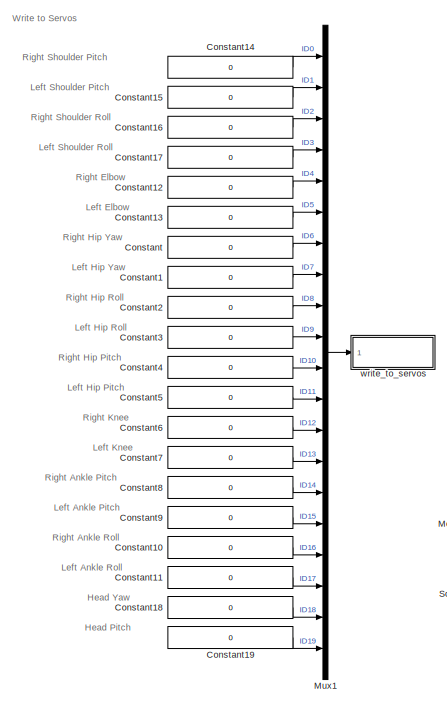
[diagram: root canvas - part 1/2, left side, full height]
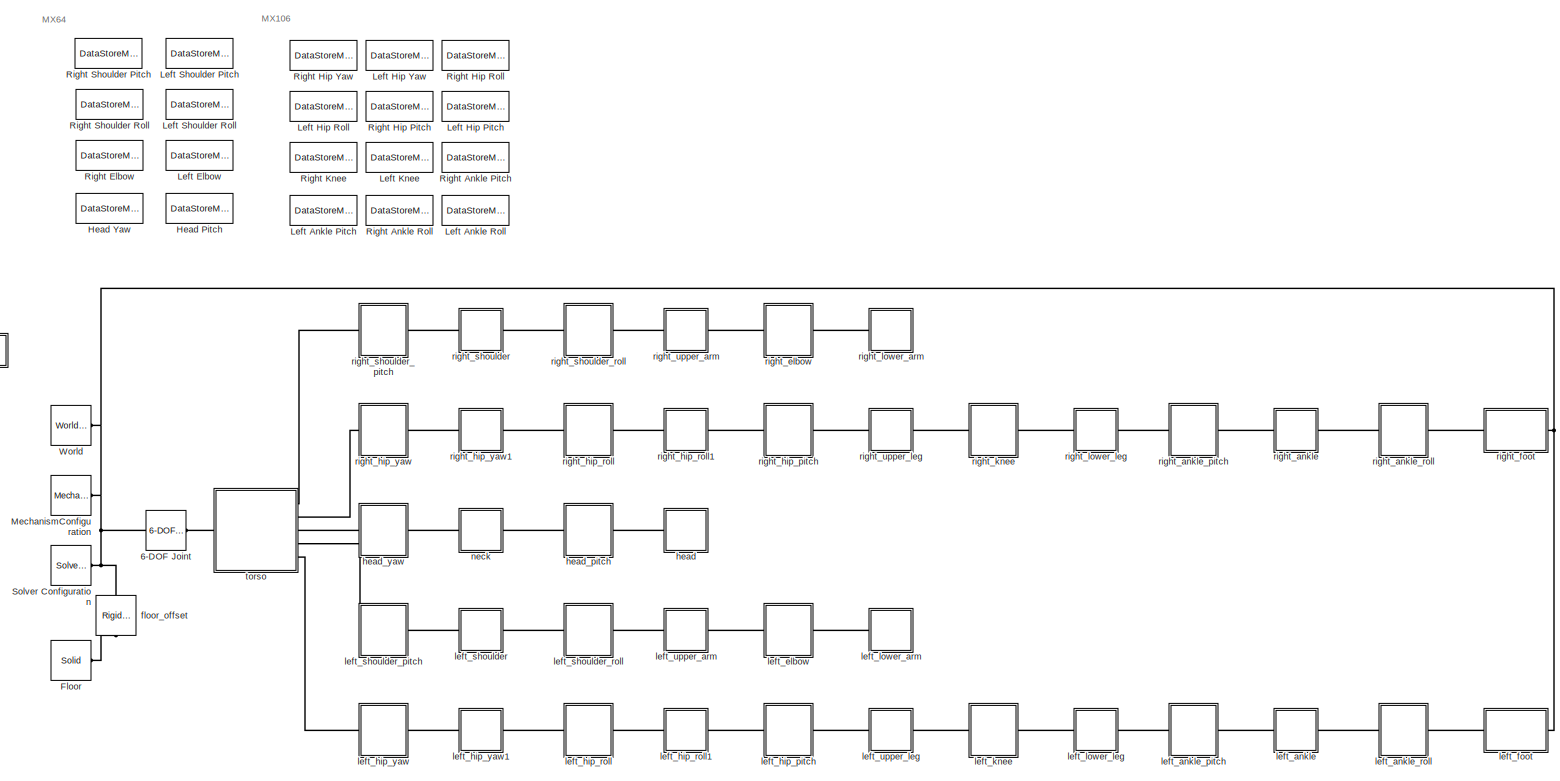
[diagram: root canvas - part 2/2, most of the canvas]
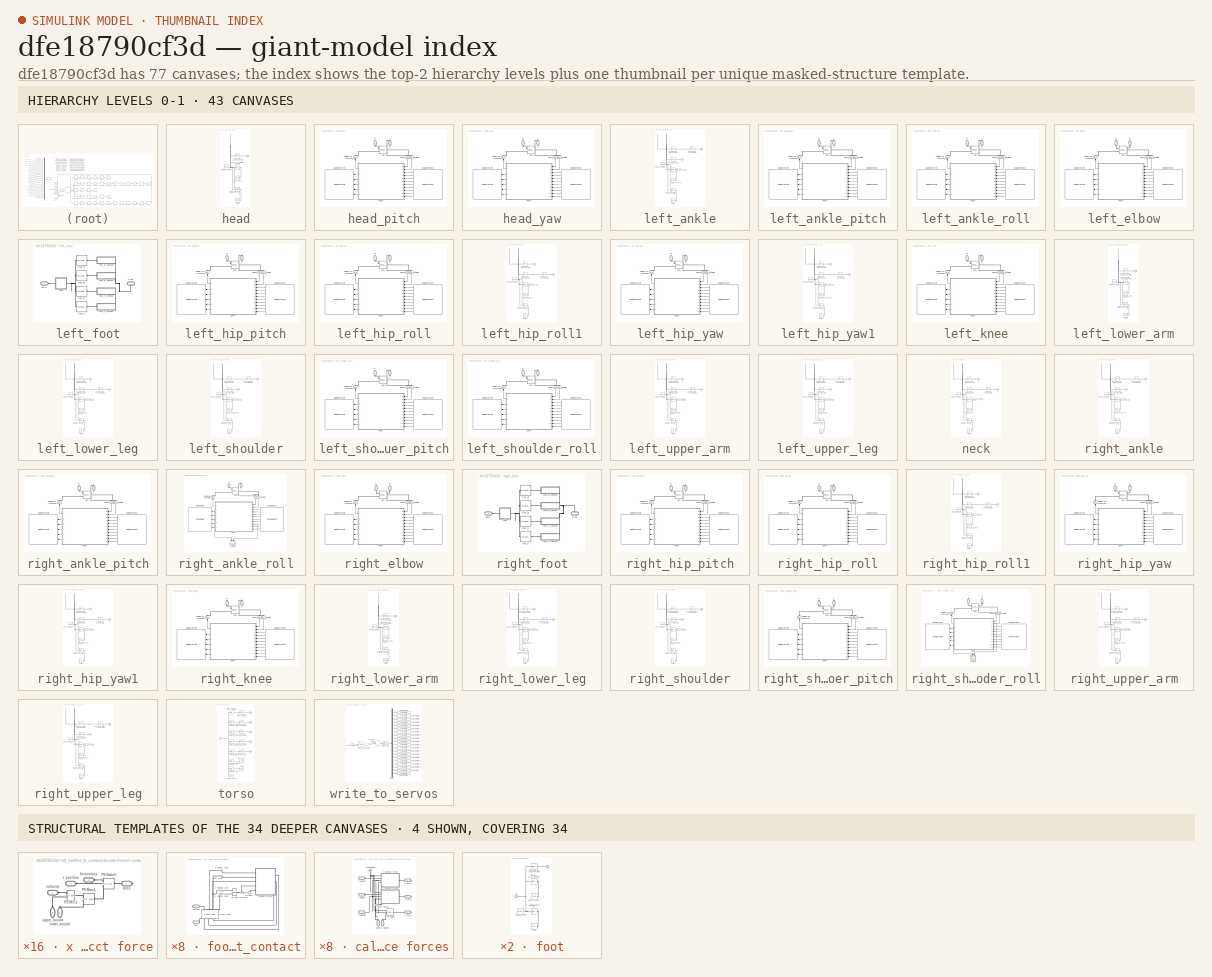
[diagram: thumbnail index - top-2 hierarchy levels (43 canvases) + 4 structural-template representatives of the remaining 34 canvases]
MODEL slx_dfe18790cf3d
KIND model
CONFIG AbsTol = auto
CONFIG EnableMultiTasking = off
CONFIG FixedStep = auto
CONFIG MaxStep = auto
CONFIG MinStep = auto
CONFIG RelTol = 1e-3
CONFIG SampleTimeConstraint = Unconstrained
CONFIG Solver = VariableStepAuto
CONFIG SolverName = VariableStepAuto
CONFIG StartTime = 0.0
CONFIG StopTime = inf
BLOCK [Reference] 6-DOF Joint  REF=sm_lib/Joints/6-DOF Joint
  Ports = [0, 0, 0, 0, 0, 1, 1]
  SourceBlock = sm_lib/Joints/6-DOF Joint
  SourceProductBaseCode = MS
  SourceProductName = Simscape Multibody
  SourceType = 6-DOF Joint
BLOCK [Constant] Constant
  Value = 0
BLOCK [Constant] Constant1
  Value = 0
BLOCK [Constant] Constant10
  Value = 0
BLOCK [Constant] Constant11
  Value = 0
BLOCK [Constant] Constant12
  Value = 0
BLOCK [Constant] Constant13
  Value = 0
BLOCK [Constant] Constant14
  Value = 0
BLOCK [Constant] Constant15
  Value = 0
BLOCK [Constant] Constant16
  Value = 0
BLOCK [Constant] Constant17
  Value = 0
BLOCK [Constant] Constant18
  Value = 0
BLOCK [Constant] Constant19
  Value = 0
BLOCK [Constant] Constant2
  Value = 0
BLOCK [Constant] Constant3
  Value = 0
BLOCK [Constant] Constant4
  Value = 0
BLOCK [Constant] Constant5
  Value = 0
BLOCK [Constant] Constant6
  Value = 0
BLOCK [Constant] Constant7
  Value = 0
BLOCK [Constant] Constant8
  Value = 0
BLOCK [Constant] Constant9
  Value = 0
BLOCK [Reference] Floor  REF=sm_lib/Body Elements/Solid
  Ports = [0, 0, 0, 0, 0, 0, 1]
  SourceBlock = sm_lib/Body Elements/Solid
  SourceProductBaseCode = MS
  SourceProductName = Simscape Multibody
  SourceType = Solid
BLOCK [DataStoreMemory] Head Pitch
  DataStoreName = MX64_ID19
  InitialValue = MX64_default
  OutDataTypeStr = Bus: MX64_bus
  ReadBeforeWriteMsg = warning
  ShowAdditionalParam = off
  SignalType = real
  VectorParams1D = off
  WriteAfterReadMsg = warning
  WriteAfterWriteMsg = warning
BLOCK [DataStoreMemory] Head Yaw
  DataStoreName = MX64_ID18
  InitialValue = MX64_default
  OutDataTypeStr = Bus: MX64_bus
  ReadBeforeWriteMsg = warning
  ShowAdditionalParam = off
  SignalType = real
  VectorParams1D = off
  WriteAfterReadMsg = warning
  WriteAfterWriteMsg = warning
BLOCK [DataStoreMemory] Left Ankle Pitch
  DataStoreName = MX106_ID15
  InitialValue = MX106_default
  OutDataTypeStr = Bus: MX106_bus
  ReadBeforeWriteMsg = warning
  ShowAdditionalParam = off
  SignalType = real
  VectorParams1D = off
  WriteAfterReadMsg = warning
  WriteAfterWriteMsg = warning
BLOCK [DataStoreMemory] Left Ankle Roll
  DataStoreName = MX106_ID17
  InitialValue = MX106_default
  OutDataTypeStr = Bus: MX106_bus
  ReadBeforeWriteMsg = warning
  ShowAdditionalParam = off
  SignalType = real
  VectorParams1D = off
  WriteAfterReadMsg = warning
  WriteAfterWriteMsg = warning
BLOCK [DataStoreMemory] Left Elbow
  DataStoreName = MX64_ID5
  InitialValue = MX64_default
  OutDataTypeStr = Bus: MX64_bus
  ReadBeforeWriteMsg = warning
  ShowAdditionalParam = off
  SignalType = real
  VectorParams1D = off
  WriteAfterReadMsg = warning
  WriteAfterWriteMsg = warning
BLOCK [DataStoreMemory] Left Hip Pitch
  DataStoreName = MX106_ID11
  InitialValue = MX106_default
  OutDataTypeStr = Bus: MX106_bus
  ReadBeforeWriteMsg = warning
  ShowAdditionalParam = off
  SignalType = real
  VectorParams1D = off
  WriteAfterReadMsg = warning
  WriteAfterWriteMsg = warning
BLOCK [DataStoreMemory] Left Hip Roll
  DataStoreName = MX106_ID9
  InitialValue = MX106_default
  OutDataTypeStr = Bus: MX106_bus
  ReadBeforeWriteMsg = warning
  ShowAdditionalParam = off
  SignalType = real
  VectorParams1D = off
  WriteAfterReadMsg = warning
  WriteAfterWriteMsg = warning
BLOCK [DataStoreMemory] Left Hip Yaw
  DataStoreName = MX106_ID7
  InitialValue = MX106_default
  OutDataTypeStr = Bus: MX106_bus
  ReadBeforeWriteMsg = warning
  ShowAdditionalParam = off
  SignalType = real
  VectorParams1D = off
  WriteAfterReadMsg = warning
  WriteAfterWriteMsg = warning
BLOCK [DataStoreMemory] Left Knee
  DataStoreName = MX106_ID13
  InitialValue = MX106_default
  OutDataTypeStr = Bus: MX106_bus
  ReadBeforeWriteMsg = warning
  ShowAdditionalParam = off
  SignalType = real
  VectorParams1D = off
  WriteAfterReadMsg = warning
  WriteAfterWriteMsg = warning
BLOCK [DataStoreMemory] Left Shoulder Pitch
  DataStoreName = MX64_ID1
  InitialValue = MX64_default
  OutDataTypeStr = Bus: MX64_bus
  ReadBeforeWriteMsg = warning
  ShowAdditionalParam = off
  SignalType = real
  VectorParams1D = off
  WriteAfterReadMsg = warning
  WriteAfterWriteMsg = warning
BLOCK [DataStoreMemory] Left Shoulder Roll
  DataStoreName = MX64_ID3
  InitialValue = MX64_default
  OutDataTypeStr = Bus: MX64_bus
  ReadBeforeWriteMsg = warning
  ShowAdditionalParam = off
  SignalType = real
  VectorParams1D = off
  WriteAfterReadMsg = warning
  WriteAfterWriteMsg = warning
BLOCK [Reference] MechanismConfiguration  REF=sm_lib/Utilities/Mechanism
Configuration
  Ports = [0, 0, 0, 0, 0, 0, 1]
  SourceBlock = sm_lib/Utilities/Mechanism\nConfiguration
  SourceProductBaseCode = MS
  SourceProductName = Simscape Multibody
  SourceType = Mechanism\nConfiguration
BLOCK [Mux] Mux1
  DisplayOption = bar
  Inputs = 20
  Ports = [20, 1]
BLOCK [DataStoreMemory] Right Ankle Pitch
  DataStoreName = MX106_ID14
  InitialValue = MX106_default
  OutDataTypeStr = Bus: MX106_bus
  ReadBeforeWriteMsg = warning
  ShowAdditionalParam = off
  SignalType = real
  VectorParams1D = off
  WriteAfterReadMsg = warning
  WriteAfterWriteMsg = warning
BLOCK [DataStoreMemory] Right Ankle Roll
  DataStoreName = MX106_ID16
  InitialValue = MX106_default
  OutDataTypeStr = Bus: MX106_bus
  ReadBeforeWriteMsg = warning
  ShowAdditionalParam = off
  SignalType = real
  VectorParams1D = off
  WriteAfterReadMsg = warning
  WriteAfterWriteMsg = warning
BLOCK [DataStoreMemory] Right Elbow
  DataStoreName = MX64_ID4
  InitialValue = MX64_default
  OutDataTypeStr = Bus: MX64_bus
  ReadBeforeWriteMsg = warning
  ShowAdditionalParam = off
  SignalType = real
  VectorParams1D = off
  WriteAfterReadMsg = warning
  WriteAfterWriteMsg = warning
BLOCK [DataStoreMemory] Right Hip Pitch
  DataStoreName = MX106_ID10
  InitialValue = MX106_default
  OutDataTypeStr = Bus: MX106_bus
  ReadBeforeWriteMsg = warning
  ShowAdditionalParam = off
  SignalType = real
  VectorParams1D = off
  WriteAfterReadMsg = warning
  WriteAfterWriteMsg = warning
BLOCK [DataStoreMemory] Right Hip Roll
  DataStoreName = MX106_ID8
  InitialValue = MX106_default
  OutDataTypeStr = Bus: MX106_bus
  ReadBeforeWriteMsg = warning
  ShowAdditionalParam = off
  SignalType = real
  VectorParams1D = off
  WriteAfterReadMsg = warning
  WriteAfterWriteMsg = warning
BLOCK [DataStoreMemory] Right Hip Yaw
  DataStoreName = MX106_ID6
  InitialValue = MX106_default
  OutDataTypeStr = Bus: MX106_bus
  ShowAdditionalParam = off
  SignalType = real
  VectorParams1D = off
BLOCK [DataStoreMemory] Right Knee
  DataStoreName = MX106_ID12
  InitialValue = MX106_default
  OutDataTypeStr = Bus: MX106_bus
  ReadBeforeWriteMsg = warning
  ShowAdditionalParam = off
  SignalType = real
  VectorParams1D = off
  WriteAfterReadMsg = warning
  WriteAfterWriteMsg = warning
BLOCK [DataStoreMemory] Right Shoulder Pitch
  DataStoreName = MX64_ID0
  InitialValue = MX64_default
  OutDataTypeStr = Bus: MX64_bus
  ReadBeforeWriteMsg = warning
  ShowAdditionalParam = off
  SignalType = real
  VectorParams1D = off
  WriteAfterReadMsg = warning
  WriteAfterWriteMsg = warning
BLOCK [DataStoreMemory] Right Shoulder Roll
  DataStoreName = MX64_ID2
  InitialValue = MX64_default
  OutDataTypeStr = Bus: MX64_bus
  ReadBeforeWriteMsg = warning
  ShowAdditionalParam = off
  SignalType = real
  VectorParams1D = off
  WriteAfterReadMsg = warning
  WriteAfterWriteMsg = warning
BLOCK [Reference] Solver Configuration  REF=nesl_utility/Solver
Configuration
  Ports = [0, 0, 0, 0, 0, 0, 1]
  SourceBlock = nesl_utility/Solver\nConfiguration
  SourceProductBaseCode = SS
  SourceProductName = Simscape
  SourceType = Solver\nConfiguration
BLOCK [Reference] World  REF=sm_lib/Frames and
Transforms/World Frame
  Ports = [0, 0, 0, 0, 0, 0, 1]
  SourceBlock = sm_lib/Frames and\nTransforms/World Frame
  SourceProductBaseCode = MS
  SourceProductName = Simscape Multibody
  SourceType = World Frame
BLOCK [Reference] floor_offset  REF=sm_lib/Frames and
Transforms/Rigid
Transform
  Ports = [0, 0, 0, 0, 0, 1, 1]
  SourceBlock = sm_lib/Frames and\nTransforms/Rigid\nTransform
  SourceProductBaseCode = MS
  SourceProductName = Simscape Multibody
  SourceType = Rigid\nTransform
BLOCK [SubSystem] head
  Ports = [0, 0, 0, 0, 0, 1]
  RequestExecContextInheritance = off
BLOCK [PMIOPort] head/F
  Side = Left
BLOCK [Reference] head/Inertia  REF=sm_lib/Body Elements/Inertia
  Ports = [0, 0, 0, 0, 0, 0, 1]
  SourceBlock = sm_lib/Body Elements/Inertia
  SourceProductBaseCode = MS
  SourceProductName = Simscape Multibody
  SourceType = Inertia
BLOCK [Reference] head/InertiaOriginTransform  REF=sm_lib/Frames and
Transforms/Rigid
Transform
  Ports = [0, 0, 0, 0, 0, 1, 1]
  SourceBlock = sm_lib/Frames and\nTransforms/Rigid\nTransform
  SourceProductBaseCode = MS
  SourceProductName = Simscape Multibody
  SourceType = Rigid\nTransform
BLOCK [Reference] head/ReferenceFrame  REF=sm_lib/Frames and
Transforms/Reference
Frame
  Ports = [0, 0, 0, 0, 0, 0, 1]
  SourceBlock = sm_lib/Frames and\nTransforms/Reference\nFrame
  SourceProductBaseCode = MS
  SourceProductName = Simscape Multibody
  SourceType = Reference\nFrame
BLOCK [Reference] head/head_pitch_AxisInvTransform  REF=sm_lib/Frames and
Transforms/Rigid
Transform
  Ports = [0, 0, 0, 0, 0, 1, 1]
  SourceBlock = sm_lib/Frames and\nTransforms/Rigid\nTransform
  SourceProductBaseCode = MS
  SourceProductName = Simscape Multibody
  SourceType = Rigid\nTransform
BLOCK [Reference] head/head_visual  REF=sm_lib/Body Elements/Solid
  Ports = [0, 0, 0, 0, 0, 0, 1]
  SourceBlock = sm_lib/Body Elements/Solid
  SourceProductBaseCode = MS
  SourceProductName = Simscape Multibody
  SourceType = Solid
BLOCK [Reference] head/head_visualOriginTransform  REF=sm_lib/Frames and
Transforms/Rigid
Transform
  Ports = [0, 0, 0, 0, 0, 1, 1]
  SourceBlock = sm_lib/Frames and\nTransforms/Rigid\nTransform
  SourceProductBaseCode = MS
  SourceProductName = Simscape Multibody
  SourceType = Rigid\nTransform
BLOCK [SubSystem] head_pitch
  Ports = [0, 0, 0, 0, 0, 1, 1]
  RequestExecContextInheritance = off
BLOCK [PMIOPort] head_pitch/B
  Side = Left
BLOCK [DataStoreRead] head_pitch/Data Store Read
  DataStoreElements = MX64_ID19.CW_angle_limit#MX64_ID19.CCW_angle_limit#MX64_ID19.torque_enable#MX64_ID19.D_gain#MX64_ID19.I_gain#MX64_ID19.P_gain#MX64_ID19.goal_position#MX64_ID19.moving_speed#MX64_ID19.torque_limit
  DataStoreName = MX64_ID19
  Ports = [0, 9]
BLOCK [DataStoreWrite] head_pitch/Data Store Write
  DataStoreElements = MX64_ID19.present_position#MX64_ID19.present_speed#MX64_ID19.present_load#MX64_ID19.moving#MX64_ID19.pwm
  DataStoreName = MX64_ID19
  Ports = [5]
BLOCK [PMIOPort] head_pitch/F
  Port = 2
  Side = Right
BLOCK [Reference] head_pitch/Joint  REF=sm_lib/Joints/Revolute Joint
  Ports = [0, 0, 0, 0, 0, 2, 3]
  SourceBlock = sm_lib/Joints/Revolute Joint
  SourceProductBaseCode = MS
  SourceProductName = Simscape Multibody
  SourceType = Revolute Joint
BLOCK [ModelReference] head_pitch/Model
  ModelNameDialog = MX64
  ModelReferenceVersion = 1.24
  Ports = [11, 6]
BLOCK [Reference] head_pitch/Position  REF=nesl_utility/PS-Simulink
Converter
  Ports = [0, 1, 0, 0, 0, 1]
  SourceBlock = nesl_utility/PS-Simulink\nConverter
  SourceProductBaseCode = SS
  SourceProductName = Simscape
  SourceType = PS-Simulink\nConverter
BLOCK [Reference] head_pitch/Simulink-PS Converter  REF=nesl_utility/Simulink-PS
Converter
  Ports = [1, 0, 0, 0, 0, 0, 1]
  SourceBlock = nesl_utility/Simulink-PS\nConverter
  SourceProductBaseCode = SS
  SourceProductName = Simscape
  SourceType = Simulink-PS\nConverter
BLOCK [Reference] head_pitch/Speed  REF=nesl_utility/PS-Simulink
Converter
  Ports = [0, 1, 0, 0, 0, 1]
  SourceBlock = nesl_utility/PS-Simulink\nConverter
  SourceProductBaseCode = SS
  SourceProductName = Simscape
  SourceType = PS-Simulink\nConverter
BLOCK [SubSystem] head_yaw
  Ports = [0, 0, 0, 0, 0, 1, 1]
  RequestExecContextInheritance = off
BLOCK [PMIOPort] head_yaw/B
  Side = Left
BLOCK [DataStoreRead] head_yaw/Data Store Read
  DataStoreElements = MX64_ID18.CW_angle_limit#MX64_ID18.CCW_angle_limit#MX64_ID18.torque_enable#MX64_ID18.D_gain#MX64_ID18.I_gain#MX64_ID18.P_gain#MX64_ID18.goal_position#MX64_ID18.moving_speed#MX64_ID18.torque_limit
  DataStoreName = MX64_ID18
  Ports = [0, 9]
BLOCK [DataStoreWrite] head_yaw/Data Store Write
  DataStoreElements = MX64_ID18.present_position#MX64_ID18.present_speed#MX64_ID18.present_load#MX64_ID18.moving#MX64_ID18.pwm
  DataStoreName = MX64_ID18
  Ports = [5]
BLOCK [PMIOPort] head_yaw/F
  Port = 2
  Side = Right
BLOCK [Reference] head_yaw/Joint  REF=sm_lib/Joints/Revolute Joint
  Ports = [0, 0, 0, 0, 0, 2, 3]
  SourceBlock = sm_lib/Joints/Revolute Joint
  SourceProductBaseCode = MS
  SourceProductName = Simscape Multibody
  SourceType = Revolute Joint
BLOCK [ModelReference] head_yaw/Model
  ModelNameDialog = MX64
  ModelReferenceVersion = 1.24
  Ports = [11, 6]
BLOCK [Reference] head_yaw/Position  REF=nesl_utility/PS-Simulink
Converter
  Ports = [0, 1, 0, 0, 0, 1]
  SourceBlock = nesl_utility/PS-Simulink\nConverter
  SourceProductBaseCode = SS
  SourceProductName = Simscape
  SourceType = PS-Simulink\nConverter
BLOCK [Reference] head_yaw/Simulink-PS Converter  REF=nesl_utility/Simulink-PS
Converter
  Ports = [1, 0, 0, 0, 0, 0, 1]
  SourceBlock = nesl_utility/Simulink-PS\nConverter
  SourceProductBaseCode = SS
  SourceProductName = Simscape
  SourceType = Simulink-PS\nConverter
BLOCK [Reference] head_yaw/Speed  REF=nesl_utility/PS-Simulink
Converter
  Ports = [0, 1, 0, 0, 0, 1]
  SourceBlock = nesl_utility/PS-Simulink\nConverter
  SourceProductBaseCode = SS
  SourceProductName = Simscape
  SourceType = PS-Simulink\nConverter
BLOCK [SubSystem] left_ankle
  Ports = [0, 0, 0, 0, 0, 1, 1]
  RequestExecContextInheritance = off
BLOCK [PMIOPort] left_ankle/F
  Side = Left
BLOCK [PMIOPort] left_ankle/F1
  Port = 2
  Side = Right
BLOCK [Reference] left_ankle/Inertia  REF=sm_lib/Body Elements/Inertia
  Ports = [0, 0, 0, 0, 0, 0, 1]
  SourceBlock = sm_lib/Body Elements/Inertia
  SourceProductBaseCode = MS
  SourceProductName = Simscape Multibody
  SourceType = Inertia
BLOCK [Reference] left_ankle/InertiaOriginTransform  REF=sm_lib/Frames and
Transforms/Rigid
Transform
  Ports = [0, 0, 0, 0, 0, 1, 1]
  SourceBlock = sm_lib/Frames and\nTransforms/Rigid\nTransform
  SourceProductBaseCode = MS
  SourceProductName = Simscape Multibody
  SourceType = Rigid\nTransform
BLOCK [Reference] left_ankle/ReferenceFrame  REF=sm_lib/Frames and
Transforms/Reference
Frame
  Ports = [0, 0, 0, 0, 0, 0, 1]
  SourceBlock = sm_lib/Frames and\nTransforms/Reference\nFrame
  SourceProductBaseCode = MS
  SourceProductName = Simscape Multibody
  SourceType = Reference\nFrame
BLOCK [Reference] left_ankle/left_ankle_pitch_AxisInvTransform  REF=sm_lib/Frames and
Transforms/Rigid
Transform
  Ports = [0, 0, 0, 0, 0, 1, 1]
  SourceBlock = sm_lib/Frames and\nTransforms/Rigid\nTransform
  SourceProductBaseCode = MS
  SourceProductName = Simscape Multibody
  SourceType = Rigid\nTransform
BLOCK [Reference] left_ankle/left_ankle_roll_AxisTransform  REF=sm_lib/Frames and
Transforms/Rigid
Transform
  Ports = [0, 0, 0, 0, 0, 1, 1]
  SourceBlock = sm_lib/Frames and\nTransforms/Rigid\nTransform
  SourceProductBaseCode = MS
  SourceProductName = Simscape Multibody
  SourceType = Rigid\nTransform
BLOCK [Reference] left_ankle/left_ankle_roll_OriginTransform  REF=sm_lib/Frames and
Transforms/Rigid
Transform
  Ports = [0, 0, 0, 0, 0, 1, 1]
  SourceBlock = sm_lib/Frames and\nTransforms/Rigid\nTransform
  SourceProductBaseCode = MS
  SourceProductName = Simscape Multibody
  SourceType = Rigid\nTransform
BLOCK [Reference] left_ankle/left_ankle_visual  REF=sm_lib/Body Elements/Solid
  Ports = [0, 0, 0, 0, 0, 0, 1]
  SourceBlock = sm_lib/Body Elements/Solid
  SourceProductBaseCode = MS
  SourceProductName = Simscape Multibody
  SourceType = Solid
BLOCK [Reference] left_ankle/left_ankle_visualOriginTransform  REF=sm_lib/Frames and
Transforms/Rigid
Transform
  Ports = [0, 0, 0, 0, 0, 1, 1]
  SourceBlock = sm_lib/Frames and\nTransforms/Rigid\nTransform
  SourceProductBaseCode = MS
  SourceProductName = Simscape Multibody
  SourceType = Rigid\nTransform
BLOCK [SubSystem] left_ankle_pitch
  Ports = [0, 0, 0, 0, 0, 1, 1]
  RequestExecContextInheritance = off
BLOCK [PMIOPort] left_ankle_pitch/B
  Side = Left
BLOCK [DataStoreRead] left_ankle_pitch/Data Store Read
  DataStoreElements = MX106_ID15.CW_angle_limit#MX106_ID15.CCW_angle_limit#MX106_ID15.torque_enable#MX106_ID15.D_gain#MX106_ID15.I_gain#MX106_ID15.P_gain#MX106_ID15.goal_position#MX106_ID15.moving_speed#MX106_ID15.torque_limit
  DataStoreName = MX106_ID15
  Ports = [0, 9]
BLOCK [DataStoreWrite] left_ankle_pitch/Data Store Write
  DataStoreElements = MX106_ID15.present_position#MX106_ID15.present_speed#MX106_ID15.present_load#MX106_ID15.moving#MX106_ID15.pwm
  DataStoreName = MX106_ID15
  Ports = [5]
BLOCK [PMIOPort] left_ankle_pitch/F
  Port = 2
  Side = Right
BLOCK [Reference] left_ankle_pitch/Joint  REF=sm_lib/Joints/Revolute Joint
  Ports = [0, 0, 0, 0, 0, 2, 3]
  SourceBlock = sm_lib/Joints/Revolute Joint
  SourceProductBaseCode = MS
  SourceProductName = Simscape Multibody
  SourceType = Revolute Joint
BLOCK [ModelReference] left_ankle_pitch/Model
  ModelNameDialog = MX106
  ModelReferenceVersion = 1.28
  Ports = [11, 6]
BLOCK [Reference] left_ankle_pitch/Position  REF=nesl_utility/PS-Simulink
Converter
  Ports = [0, 1, 0, 0, 0, 1]
  SourceBlock = nesl_utility/PS-Simulink\nConverter
  SourceProductBaseCode = SS
  SourceProductName = Simscape
  SourceType = PS-Simulink\nConverter
BLOCK [Reference] left_ankle_pitch/Simulink-PS Converter  REF=nesl_utility/Simulink-PS
Converter
  Ports = [1, 0, 0, 0, 0, 0, 1]
  SourceBlock = nesl_utility/Simulink-PS\nConverter
  SourceProductBaseCode = SS
  SourceProductName = Simscape
  SourceType = Simulink-PS\nConverter
BLOCK [Reference] left_ankle_pitch/Speed  REF=nesl_utility/PS-Simulink
Converter
  Ports = [0, 1, 0, 0, 0, 1]
  SourceBlock = nesl_utility/PS-Simulink\nConverter
  SourceProductBaseCode = SS
  SourceProductName = Simscape
  SourceType = PS-Simulink\nConverter
BLOCK [SubSystem] left_ankle_roll
  Ports = [0, 0, 0, 0, 0, 1, 1]
  RequestExecContextInheritance = off
BLOCK [PMIOPort] left_ankle_roll/B
  Side = Left
BLOCK [DataStoreRead] left_ankle_roll/Data Store Read
  DataStoreElements = MX106_ID17.CW_angle_limit#MX106_ID17.CCW_angle_limit#MX106_ID17.torque_enable#MX106_ID17.D_gain#MX106_ID17.I_gain#MX106_ID17.P_gain#MX106_ID17.goal_position#MX106_ID17.moving_speed#MX106_ID17.torque_limit
  DataStoreName = MX106_ID17
  Ports = [0, 9]
BLOCK [DataStoreWrite] left_ankle_roll/Data Store Write
  DataStoreElements = MX106_ID17.present_position#MX106_ID17.present_speed#MX106_ID17.present_load#MX106_ID17.moving#MX106_ID17.pwm
  DataStoreName = MX106_ID17
  Ports = [5]
BLOCK [PMIOPort] left_ankle_roll/F
  Port = 2
  Side = Right
BLOCK [Reference] left_ankle_roll/Joint  REF=sm_lib/Joints/Revolute Joint
  Ports = [0, 0, 0, 0, 0, 2, 3]
  SourceBlock = sm_lib/Joints/Revolute Joint
  SourceProductBaseCode = MS
  SourceProductName = Simscape Multibody
  SourceType = Revolute Joint
BLOCK [ModelReference] left_ankle_roll/Model
  ModelNameDialog = MX106
  ModelReferenceVersion = 1.28
  Ports = [11, 6]
BLOCK [Reference] left_ankle_roll/Position  REF=nesl_utility/PS-Simulink
Converter
  Ports = [0, 1, 0, 0, 0, 1]
  SourceBlock = nesl_utility/PS-Simulink\nConverter
  SourceProductBaseCode = SS
  SourceProductName = Simscape
  SourceType = PS-Simulink\nConverter
BLOCK [Reference] left_ankle_roll/Simulink-PS Converter  REF=nesl_utility/Simulink-PS
Converter
  Ports = [1, 0, 0, 0, 0, 0, 1]
  SourceBlock = nesl_utility/Simulink-PS\nConverter
  SourceProductBaseCode = SS
  SourceProductName = Simscape
  SourceType = Simulink-PS\nConverter
BLOCK [Reference] left_ankle_roll/Speed  REF=nesl_utility/PS-Simulink
Converter
  Ports = [0, 1, 0, 0, 0, 1]
  SourceBlock = nesl_utility/PS-Simulink\nConverter
  SourceProductBaseCode = SS
  SourceProductName = Simscape
  SourceType = PS-Simulink\nConverter
BLOCK [SubSystem] left_elbow
  Ports = [0, 0, 0, 0, 0, 1, 1]
  RequestExecContextInheritance = off
BLOCK [PMIOPort] left_elbow/B
  Side = Left
BLOCK [DataStoreRead] left_elbow/Data Store Read
  DataStoreElements = MX64_ID5.CW_angle_limit#MX64_ID5.CCW_angle_limit#MX64_ID5.torque_enable#MX64_ID5.D_gain#MX64_ID5.I_gain#MX64_ID5.P_gain#MX64_ID5.goal_position#MX64_ID5.moving_speed#MX64_ID5.torque_limit
  DataStoreName = MX64_ID5
  Ports = [0, 9]
BLOCK [DataStoreWrite] left_elbow/Data Store Write
  DataStoreElements = MX64_ID5.present_position#MX64_ID5.present_speed#MX64_ID5.present_load#MX64_ID5.moving#MX64_ID5.pwm
  DataStoreName = MX64_ID5
  Ports = [5]
BLOCK [PMIOPort] left_elbow/F
  Port = 2
  Side = Right
BLOCK [Reference] left_elbow/Joint  REF=sm_lib/Joints/Revolute Joint
  Ports = [0, 0, 0, 0, 0, 2, 3]
  SourceBlock = sm_lib/Joints/Revolute Joint
  SourceProductBaseCode = MS
  SourceProductName = Simscape Multibody
  SourceType = Revolute Joint
BLOCK [ModelReference] left_elbow/Model
  ModelNameDialog = MX64
  ModelReferenceVersion = 1.24
  Ports = [11, 6]
BLOCK [Reference] left_elbow/Position  REF=nesl_utility/PS-Simulink
Converter
  Ports = [0, 1, 0, 0, 0, 1]
  SourceBlock = nesl_utility/PS-Simulink\nConverter
  SourceProductBaseCode = SS
  SourceProductName = Simscape
  SourceType = PS-Simulink\nConverter
BLOCK [Reference] left_elbow/Simulink-PS Converter  REF=nesl_utility/Simulink-PS
Converter
  Ports = [1, 0, 0, 0, 0, 0, 1]
  SourceBlock = nesl_utility/Simulink-PS\nConverter
  SourceProductBaseCode = SS
  SourceProductName = Simscape
  SourceType = Simulink-PS\nConverter
BLOCK [Reference] left_elbow/Speed  REF=nesl_utility/PS-Simulink
Converter
  Ports = [0, 1, 0, 0, 0, 1]
  SourceBlock = nesl_utility/PS-Simulink\nConverter
  SourceProductBaseCode = SS
  SourceProductName = Simscape
  SourceType = PS-Simulink\nConverter
BLOCK [SubSystem] left_foot
  Ports = [0, 0, 0, 0, 0, 1, 1]
  RequestExecContextInheritance = off
BLOCK [PMIOPort] left_foot/ankle
  Port = 2
  Side = Left
BLOCK [PMIOPort] left_foot/floor
  Side = Right
BLOCK [SubSystem] left_foot/foot
  Ports = [0, 0, 0, 0, 0, 1, 1]
  RequestExecContextInheritance = off
BLOCK [PMIOPort] left_foot/foot/B
  Port = 2
  Side = Right
BLOCK [PMIOPort] left_foot/foot/F
  Side = Left
BLOCK [Reference] left_foot/foot/Inertia  REF=sm_lib/Body Elements/Inertia
  Ports = [0, 0, 0, 0, 0, 0, 1]
  SourceBlock = sm_lib/Body Elements/Inertia
  SourceProductBaseCode = MS
  SourceProductName = Simscape Multibody
  SourceType = Inertia
BLOCK [Reference] left_foot/foot/InertiaOriginTransform  REF=sm_lib/Frames and
Transforms/Rigid
Transform
  Ports = [0, 0, 0, 0, 0, 1, 1]
  SourceBlock = sm_lib/Frames and\nTransforms/Rigid\nTransform
  SourceProductBaseCode = MS
  SourceProductName = Simscape Multibody
  SourceType = Rigid\nTransform
BLOCK [Reference] left_foot/foot/ReferenceFrame  REF=sm_lib/Frames and
Transforms/Reference
Frame
  Ports = [0, 0, 0, 0, 0, 0, 1]
  SourceBlock = sm_lib/Frames and\nTransforms/Reference\nFrame
  SourceProductBaseCode = MS
  SourceProductName = Simscape Multibody
  SourceType = Reference\nFrame
BLOCK [Reference] left_foot/foot/right_ankle_roll_AxisInvTransform  REF=sm_lib/Frames and
Transforms/Rigid
Transform
  Ports = [0, 0, 0, 0, 0, 1, 1]
  SourceBlock = sm_lib/Frames and\nTransforms/Rigid\nTransform
  SourceProductBaseCode = MS
  SourceProductName = Simscape Multibody
  SourceType = Rigid\nTransform
BLOCK [Reference] left_foot/foot/right_foot_visual  REF=sm_lib/Body Elements/Solid
  Ports = [0, 0, 0, 0, 0, 0, 1]
  SourceBlock = sm_lib/Body Elements/Solid
  SourceProductBaseCode = MS
  SourceProductName = Simscape Multibody
  SourceType = Solid
BLOCK [Reference] left_foot/foot/right_foot_visualOriginTransform  REF=sm_lib/Frames and
Transforms/Rigid
Transform
  Ports = [0, 0, 0, 0, 0, 1, 1]
  SourceBlock = sm_lib/Frames and\nTransforms/Rigid\nTransform
  SourceProductBaseCode = MS
  SourceProductName = Simscape Multibody
  SourceType = Rigid\nTransform
BLOCK [Reference] left_foot/foot_bl  REF=sm_lib/Frames and
Transforms/Rigid
Transform
  Ports = [0, 0, 0, 0, 0, 1, 1]
  SourceBlock = sm_lib/Frames and\nTransforms/Rigid\nTransform
  SourceProductBaseCode = MS
  SourceProductName = Simscape Multibody
  SourceType = Rigid\nTransform
BLOCK [SubSystem] left_foot/foot_bl_contact
  Ports = [0, 0, 0, 0, 0, 1, 1]
  RequestExecContextInheritance = off
BLOCK [Reference] left_foot/foot_bl_contact/6-DOF Joint  REF=sm_lib/Joints/6-DOF Joint
  Ports = [0, 0, 0, 0, 0, 4, 5]
  SourceBlock = sm_lib/Joints/6-DOF Joint
  SourceProductBaseCode = MS
  SourceProductName = Simscape Multibody
  SourceType = 6-DOF Joint
BLOCK [PMIOPort] left_foot/foot_bl_contact/Contact
  Side = Right
BLOCK [PMIOPort] left_foot/foot_bl_contact/Floor
  Port = 2
  Side = Left
BLOCK [Reference] left_foot/foot_bl_contact/PS Abs1  REF=fl_lib/Physical Signals/Nonlinear Operators/PS Abs
  Ports = [0, 0, 0, 0, 0, 1, 1]
  SourceBlock = fl_lib/Physical Signals/Nonlinear Operators/PS Abs
  SourceProductBaseCode = SS
  SourceProductName = Simscape
  SourceType = PS Abs
BLOCK [Reference] left_foot/foot_bl_contact/PS Add  REF=fl_lib/Physical Signals/Functions/PS Add
  Ports = [0, 0, 0, 0, 0, 2, 1]
  SourceBlock = fl_lib/Physical Signals/Functions/PS Add
  SourceProductBaseCode = SS
  SourceProductName = Simscape
  SourceType = PS Add
BLOCK [Reference] left_foot/foot_bl_contact/PS Gain  REF=fl_lib/Physical Signals/Functions/PS Gain
  Ports = [0, 0, 0, 0, 0, 1, 1]
  SourceBlock = fl_lib/Physical Signals/Functions/PS Gain
  SourceProductBaseCode = SS
  SourceProductName = Simscape
  SourceType = PS Gain
BLOCK [SubSystem] left_foot/foot_bl_contact/calculate forces
  Ports = [0, 0, 0, 0, 0, 5, 3]
  RequestExecContextInheritance = off
BLOCK [Reference] left_foot/foot_bl_contact/calculate forces/Frictionless  REF=fl_lib/Physical Signals/Sources/PS Constant
  Ports = [0, 0, 0, 0, 0, 0, 1]
  SourceBlock = fl_lib/Physical Signals/Sources/PS Constant
  SourceProductBaseCode = SS
  SourceProductName = Simscape
  SourceType = PS Constant
BLOCK [Reference] left_foot/foot_bl_contact/calculate forces/PS Switch  REF=fl_lib/Physical Signals/Nonlinear Operators/PS Switch
  Ports = [0, 0, 0, 0, 0, 3, 1]
  SourceBlock = fl_lib/Physical Signals/Nonlinear Operators/PS Switch
  SourceProductBaseCode = SS
  SourceProductName = Simscape
  SourceType = PS Switch
BLOCK [Reference] left_foot/foot_bl_contact/calculate forces/Unary Minus  REF=fl_lib/Physical Signals/Functions/PS Gain
  Ports = [0, 0, 0, 0, 0, 1, 1]
  SourceBlock = fl_lib/Physical Signals/Functions/PS Gain
  SourceProductBaseCode = SS
  SourceProductName = Simscape
  SourceType = PS Gain
BLOCK [PMIOPort] left_foot/foot_bl_contact/calculate forces/bound
  Port = 5
  Side = Left
BLOCK [SubSystem] left_foot/foot_bl_contact/calculate forces/x contact force
  Ports = [0, 0, 0, 0, 0, 5, 1]
  RequestExecContextInheritance = off
BLOCK [Reference] left_foot/foot_bl_contact/calculate forces/x contact force/PS Max1  REF=fl_lib/Physical Signals/Nonlinear Operators/PS Max
  Ports = [0, 0, 0, 0, 0, 2, 1]
  SourceBlock = fl_lib/Physical Signals/Nonlinear Operators/PS Max
  SourceProductBaseCode = SS
  SourceProductName = Simscape
  SourceType = PS Max
BLOCK [Reference] left_foot/foot_bl_contact/calculate forces/x contact force/PS Min1  REF=fl_lib/Physical Signals/Nonlinear Operators/PS Min
  Ports = [0, 0, 0, 0, 0, 2, 1]
  SourceBlock = fl_lib/Physical Signals/Nonlinear Operators/PS Min
  SourceProductBaseCode = SS
  SourceProductName = Simscape
  SourceType = PS Min
BLOCK [Reference] left_foot/foot_bl_contact/calculate forces/x contact force/PS Switch  REF=fl_lib/Physical Signals/Nonlinear Operators/PS Switch
  Ports = [0, 0, 0, 0, 0, 3, 1]
  SourceBlock = fl_lib/Physical Signals/Nonlinear Operators/PS Switch
  SourceProductBaseCode = SS
  SourceProductName = Simscape
  SourceType = PS Switch
BLOCK [PMIOPort] left_foot/foot_bl_contact/calculate forces/x contact force/force
  Port = 2
  Side = Right
BLOCK [PMIOPort] left_foot/foot_bl_contact/calculate forces/x contact force/frictionless
  Side = Left
BLOCK [PMIOPort] left_foot/foot_bl_contact/calculate forces/x contact force/lower_bound
  Port = 6
  Side = Left
BLOCK [PMIOPort] left_foot/foot_bl_contact/calculate forces/x contact force/upper_bound
  Port = 5
  Side = Left
BLOCK [PMIOPort] left_foot/foot_bl_contact/calculate forces/x contact force/velocity
  Port = 3
  Side = Left
BLOCK [PMIOPort] left_foot/foot_bl_contact/calculate forces/x contact force/z position
  Port = 4
  Side = Left
BLOCK [PMIOPort] left_foot/foot_bl_contact/calculate forces/x force
  Port = 6
  Side = Right
BLOCK [PMIOPort] left_foot/foot_bl_contact/calculate forces/x velocity
  Side = Left
BLOCK [SubSystem] left_foot/foot_bl_contact/calculate forces/y contact force
  Ports = [0, 0, 0, 0, 0, 5, 1]
  RequestExecContextInheritance = off
BLOCK [Reference] left_foot/foot_bl_contact/calculate forces/y contact force/PS Max1  REF=fl_lib/Physical Signals/Nonlinear Operators/PS Max
  Ports = [0, 0, 0, 0, 0, 2, 1]
  SourceBlock = fl_lib/Physical Signals/Nonlinear Operators/PS Max
  SourceProductBaseCode = SS
  SourceProductName = Simscape
  SourceType = PS Max
BLOCK [Reference] left_foot/foot_bl_contact/calculate forces/y contact force/PS Min1  REF=fl_lib/Physical Signals/Nonlinear Operators/PS Min
  Ports = [0, 0, 0, 0, 0, 2, 1]
  SourceBlock = fl_lib/Physical Signals/Nonlinear Operators/PS Min
  SourceProductBaseCode = SS
  SourceProductName = Simscape
  SourceType = PS Min
BLOCK [Reference] left_foot/foot_bl_contact/calculate forces/y contact force/PS Switch  REF=fl_lib/Physical Signals/Nonlinear Operators/PS Switch
  Ports = [0, 0, 0, 0, 0, 3, 1]
  SourceBlock = fl_lib/Physical Signals/Nonlinear Operators/PS Switch
  SourceProductBaseCode = SS
  SourceProductName = Simscape
  SourceType = PS Switch
BLOCK [PMIOPort] left_foot/foot_bl_contact/calculate forces/y contact force/force
  Port = 2
  Side = Right
BLOCK [PMIOPort] left_foot/foot_bl_contact/calculate forces/y contact force/frictionless
  Side = Left
BLOCK [PMIOPort] left_foot/foot_bl_contact/calculate forces/y contact force/lower_bound
  Port = 6
  Side = Left
BLOCK [PMIOPort] left_foot/foot_bl_contact/calculate forces/y contact force/upper_bound
  Port = 5
  Side = Left
BLOCK [PMIOPort] left_foot/foot_bl_contact/calculate forces/y contact force/velocity
  Port = 3
  Side = Left
BLOCK [PMIOPort] left_foot/foot_bl_contact/calculate forces/y contact force/z position
  Port = 4
  Side = Left
BLOCK [PMIOPort] left_foot/foot_bl_contact/calculate forces/y force
  Port = 7
  Side = Right
BLOCK [PMIOPort] left_foot/foot_bl_contact/calculate forces/y velocity
  Port = 2
  Side = Left
BLOCK [PMIOPort] left_foot/foot_bl_contact/calculate forces/z force
  Port = 8
  Side = Right
BLOCK [PMIOPort] left_foot/foot_bl_contact/calculate forces/z position
  Port = 3
  Side = Left
BLOCK [PMIOPort] left_foot/foot_bl_contact/calculate forces/z update
  Port = 4
  Side = Left
BLOCK [Reference] left_foot/foot_bl_contact/x Velocity Gain  REF=fl_lib/Physical Signals/Functions/PS Gain
  Ports = [0, 0, 0, 0, 0, 1, 1]
  SourceBlock = fl_lib/Physical Signals/Functions/PS Gain
  SourceProductBaseCode = SS
  SourceProductName = Simscape
  SourceType = PS Gain
BLOCK [Reference] left_foot/foot_bl_contact/y Velocity Gain  REF=fl_lib/Physical Signals/Functions/PS Gain
  Ports = [0, 0, 0, 0, 0, 1, 1]
  SourceBlock = fl_lib/Physical Signals/Functions/PS Gain
  SourceProductBaseCode = SS
  SourceProductName = Simscape
  SourceType = PS Gain
BLOCK [Reference] left_foot/foot_bl_contact/z Position Gain  REF=fl_lib/Physical Signals/Functions/PS Gain
  Ports = [0, 0, 0, 0, 0, 1, 1]
  SourceBlock = fl_lib/Physical Signals/Functions/PS Gain
  SourceProductBaseCode = SS
  SourceProductName = Simscape
  SourceType = PS Gain
BLOCK [Reference] left_foot/foot_bl_contact/z Velocity Gain  REF=fl_lib/Physical Signals/Functions/PS Gain
  Ports = [0, 0, 0, 0, 0, 1, 1]
  SourceBlock = fl_lib/Physical Signals/Functions/PS Gain
  SourceProductBaseCode = SS
  SourceProductName = Simscape
  SourceType = PS Gain
BLOCK [Reference] left_foot/foot_br  REF=sm_lib/Frames and
Transforms/Rigid
Transform
  Ports = [0, 0, 0, 0, 0, 1, 1]
  SourceBlock = sm_lib/Frames and\nTransforms/Rigid\nTransform
  SourceProductBaseCode = MS
  SourceProductName = Simscape Multibody
  SourceType = Rigid\nTransform
BLOCK [SubSystem] left_foot/foot_br_contact
  Ports = [0, 0, 0, 0, 0, 1, 1]
  RequestExecContextInheritance = off
BLOCK [Reference] left_foot/foot_br_contact/6-DOF Joint  REF=sm_lib/Joints/6-DOF Joint
  Ports = [0, 0, 0, 0, 0, 4, 5]
  SourceBlock = sm_lib/Joints/6-DOF Joint
  SourceProductBaseCode = MS
  SourceProductName = Simscape Multibody
  SourceType = 6-DOF Joint
BLOCK [PMIOPort] left_foot/foot_br_contact/Contact
  Side = Right
BLOCK [PMIOPort] left_foot/foot_br_contact/Floor
  Port = 2
  Side = Left
BLOCK [Reference] left_foot/foot_br_contact/PS Abs1  REF=fl_lib/Physical Signals/Nonlinear Operators/PS Abs
  Ports = [0, 0, 0, 0, 0, 1, 1]
  SourceBlock = fl_lib/Physical Signals/Nonlinear Operators/PS Abs
  SourceProductBaseCode = SS
  SourceProductName = Simscape
  SourceType = PS Abs
BLOCK [Reference] left_foot/foot_br_contact/PS Add  REF=fl_lib/Physical Signals/Functions/PS Add
  Ports = [0, 0, 0, 0, 0, 2, 1]
  SourceBlock = fl_lib/Physical Signals/Functions/PS Add
  SourceProductBaseCode = SS
  SourceProductName = Simscape
  SourceType = PS Add
BLOCK [Reference] left_foot/foot_br_contact/PS Gain  REF=fl_lib/Physical Signals/Functions/PS Gain
  Ports = [0, 0, 0, 0, 0, 1, 1]
  SourceBlock = fl_lib/Physical Signals/Functions/PS Gain
  SourceProductBaseCode = SS
  SourceProductName = Simscape
  SourceType = PS Gain
BLOCK [SubSystem] left_foot/foot_br_contact/calculate forces
  Ports = [0, 0, 0, 0, 0, 5, 3]
  RequestExecContextInheritance = off
BLOCK [Reference] left_foot/foot_br_contact/calculate forces/Frictionless  REF=fl_lib/Physical Signals/Sources/PS Constant
  Ports = [0, 0, 0, 0, 0, 0, 1]
  SourceBlock = fl_lib/Physical Signals/Sources/PS Constant
  SourceProductBaseCode = SS
  SourceProductName = Simscape
  SourceType = PS Constant
BLOCK [Reference] left_foot/foot_br_contact/calculate forces/PS Switch  REF=fl_lib/Physical Signals/Nonlinear Operators/PS Switch
  Ports = [0, 0, 0, 0, 0, 3, 1]
  SourceBlock = fl_lib/Physical Signals/Nonlinear Operators/PS Switch
  SourceProductBaseCode = SS
  SourceProductName = Simscape
  SourceType = PS Switch
BLOCK [Reference] left_foot/foot_br_contact/calculate forces/Unary Minus  REF=fl_lib/Physical Signals/Functions/PS Gain
  Ports = [0, 0, 0, 0, 0, 1, 1]
  SourceBlock = fl_lib/Physical Signals/Functions/PS Gain
  SourceProductBaseCode = SS
  SourceProductName = Simscape
  SourceType = PS Gain
BLOCK [PMIOPort] left_foot/foot_br_contact/calculate forces/bound
  Port = 5
  Side = Left
BLOCK [SubSystem] left_foot/foot_br_contact/calculate forces/x contact force
  Ports = [0, 0, 0, 0, 0, 5, 1]
  RequestExecContextInheritance = off
BLOCK [Reference] left_foot/foot_br_contact/calculate forces/x contact force/PS Max1  REF=fl_lib/Physical Signals/Nonlinear Operators/PS Max
  Ports = [0, 0, 0, 0, 0, 2, 1]
  SourceBlock = fl_lib/Physical Signals/Nonlinear Operators/PS Max
  SourceProductBaseCode = SS
  SourceProductName = Simscape
  SourceType = PS Max
BLOCK [Reference] left_foot/foot_br_contact/calculate forces/x contact force/PS Min1  REF=fl_lib/Physical Signals/Nonlinear Operators/PS Min
  Ports = [0, 0, 0, 0, 0, 2, 1]
  SourceBlock = fl_lib/Physical Signals/Nonlinear Operators/PS Min
  SourceProductBaseCode = SS
  SourceProductName = Simscape
  SourceType = PS Min
BLOCK [Reference] left_foot/foot_br_contact/calculate forces/x contact force/PS Switch  REF=fl_lib/Physical Signals/Nonlinear Operators/PS Switch
  Ports = [0, 0, 0, 0, 0, 3, 1]
  SourceBlock = fl_lib/Physical Signals/Nonlinear Operators/PS Switch
  SourceProductBaseCode = SS
  SourceProductName = Simscape
  SourceType = PS Switch
BLOCK [PMIOPort] left_foot/foot_br_contact/calculate forces/x contact force/force
  Port = 2
  Side = Right
BLOCK [PMIOPort] left_foot/foot_br_contact/calculate forces/x contact force/frictionless
  Side = Left
BLOCK [PMIOPort] left_foot/foot_br_contact/calculate forces/x contact force/lower_bound
  Port = 6
  Side = Left
BLOCK [PMIOPort] left_foot/foot_br_contact/calculate forces/x contact force/upper_bound
  Port = 5
  Side = Left
BLOCK [PMIOPort] left_foot/foot_br_contact/calculate forces/x contact force/velocity
  Port = 3
  Side = Left
BLOCK [PMIOPort] left_foot/foot_br_contact/calculate forces/x contact force/z position
  Port = 4
  Side = Left
BLOCK [PMIOPort] left_foot/foot_br_contact/calculate forces/x force
  Port = 6
  Side = Right
BLOCK [PMIOPort] left_foot/foot_br_contact/calculate forces/x velocity
  Side = Left
BLOCK [SubSystem] left_foot/foot_br_contact/calculate forces/y contact force
  Ports = [0, 0, 0, 0, 0, 5, 1]
  RequestExecContextInheritance = off
BLOCK [Reference] left_foot/foot_br_contact/calculate forces/y contact force/PS Max1  REF=fl_lib/Physical Signals/Nonlinear Operators/PS Max
  Ports = [0, 0, 0, 0, 0, 2, 1]
  SourceBlock = fl_lib/Physical Signals/Nonlinear Operators/PS Max
  SourceProductBaseCode = SS
  SourceProductName = Simscape
  SourceType = PS Max
BLOCK [Reference] left_foot/foot_br_contact/calculate forces/y contact force/PS Min1  REF=fl_lib/Physical Signals/Nonlinear Operators/PS Min
  Ports = [0, 0, 0, 0, 0, 2, 1]
  SourceBlock = fl_lib/Physical Signals/Nonlinear Operators/PS Min
  SourceProductBaseCode = SS
  SourceProductName = Simscape
  SourceType = PS Min
BLOCK [Reference] left_foot/foot_br_contact/calculate forces/y contact force/PS Switch  REF=fl_lib/Physical Signals/Nonlinear Operators/PS Switch
  Ports = [0, 0, 0, 0, 0, 3, 1]
  SourceBlock = fl_lib/Physical Signals/Nonlinear Operators/PS Switch
  SourceProductBaseCode = SS
  SourceProductName = Simscape
  SourceType = PS Switch
BLOCK [PMIOPort] left_foot/foot_br_contact/calculate forces/y contact force/force
  Port = 2
  Side = Right
BLOCK [PMIOPort] left_foot/foot_br_contact/calculate forces/y contact force/frictionless
  Side = Left
BLOCK [PMIOPort] left_foot/foot_br_contact/calculate forces/y contact force/lower_bound
  Port = 6
  Side = Left
BLOCK [PMIOPort] left_foot/foot_br_contact/calculate forces/y contact force/upper_bound
  Port = 5
  Side = Left
BLOCK [PMIOPort] left_foot/foot_br_contact/calculate forces/y contact force/velocity
  Port = 3
  Side = Left
BLOCK [PMIOPort] left_foot/foot_br_contact/calculate forces/y contact force/z position
  Port = 4
  Side = Left
BLOCK [PMIOPort] left_foot/foot_br_contact/calculate forces/y force
  Port = 7
  Side = Right
BLOCK [PMIOPort] left_foot/foot_br_contact/calculate forces/y velocity
  Port = 2
  Side = Left
BLOCK [PMIOPort] left_foot/foot_br_contact/calculate forces/z force
  Port = 8
  Side = Right
BLOCK [PMIOPort] left_foot/foot_br_contact/calculate forces/z position
  Port = 3
  Side = Left
BLOCK [PMIOPort] left_foot/foot_br_contact/calculate forces/z update
  Port = 4
  Side = Left
BLOCK [Reference] left_foot/foot_br_contact/x Velocity Gain  REF=fl_lib/Physical Signals/Functions/PS Gain
  Ports = [0, 0, 0, 0, 0, 1, 1]
  SourceBlock = fl_lib/Physical Signals/Functions/PS Gain
  SourceProductBaseCode = SS
  SourceProductName = Simscape
  SourceType = PS Gain
BLOCK [Reference] left_foot/foot_br_contact/y Velocity Gain  REF=fl_lib/Physical Signals/Functions/PS Gain
  Ports = [0, 0, 0, 0, 0, 1, 1]
  SourceBlock = fl_lib/Physical Signals/Functions/PS Gain
  SourceProductBaseCode = SS
  SourceProductName = Simscape
  SourceType = PS Gain
BLOCK [Reference] left_foot/foot_br_contact/z Position Gain  REF=fl_lib/Physical Signals/Functions/PS Gain
  Ports = [0, 0, 0, 0, 0, 1, 1]
  SourceBlock = fl_lib/Physical Signals/Functions/PS Gain
  SourceProductBaseCode = SS
  SourceProductName = Simscape
  SourceType = PS Gain
BLOCK [Reference] left_foot/foot_br_contact/z Velocity Gain  REF=fl_lib/Physical Signals/Functions/PS Gain
  Ports = [0, 0, 0, 0, 0, 1, 1]
  SourceBlock = fl_lib/Physical Signals/Functions/PS Gain
  SourceProductBaseCode = SS
  SourceProductName = Simscape
  SourceType = PS Gain
BLOCK [Reference] left_foot/foot_fl  REF=sm_lib/Frames and
Transforms/Rigid
Transform
  Ports = [0, 0, 0, 0, 0, 1, 1]
  SourceBlock = sm_lib/Frames and\nTransforms/Rigid\nTransform
  SourceProductBaseCode = MS
  SourceProductName = Simscape Multibody
  SourceType = Rigid\nTransform
BLOCK [SubSystem] left_foot/foot_fl_contact
  Ports = [0, 0, 0, 0, 0, 1, 1]
  RequestExecContextInheritance = off
BLOCK [Reference] left_foot/foot_fl_contact/6-DOF Joint  REF=sm_lib/Joints/6-DOF Joint
  Ports = [0, 0, 0, 0, 0, 4, 5]
  SourceBlock = sm_lib/Joints/6-DOF Joint
  SourceProductBaseCode = MS
  SourceProductName = Simscape Multibody
  SourceType = 6-DOF Joint
BLOCK [PMIOPort] left_foot/foot_fl_contact/Contact
  Side = Right
BLOCK [PMIOPort] left_foot/foot_fl_contact/Floor
  Port = 2
  Side = Left
BLOCK [Reference] left_foot/foot_fl_contact/PS Abs1  REF=fl_lib/Physical Signals/Nonlinear Operators/PS Abs
  Ports = [0, 0, 0, 0, 0, 1, 1]
  SourceBlock = fl_lib/Physical Signals/Nonlinear Operators/PS Abs
  SourceProductBaseCode = SS
  SourceProductName = Simscape
  SourceType = PS Abs
BLOCK [Reference] left_foot/foot_fl_contact/PS Add  REF=fl_lib/Physical Signals/Functions/PS Add
  Ports = [0, 0, 0, 0, 0, 2, 1]
  SourceBlock = fl_lib/Physical Signals/Functions/PS Add
  SourceProductBaseCode = SS
  SourceProductName = Simscape
  SourceType = PS Add
BLOCK [Reference] left_foot/foot_fl_contact/PS Gain  REF=fl_lib/Physical Signals/Functions/PS Gain
  Ports = [0, 0, 0, 0, 0, 1, 1]
  SourceBlock = fl_lib/Physical Signals/Functions/PS Gain
  SourceProductBaseCode = SS
  SourceProductName = Simscape
  SourceType = PS Gain
BLOCK [SubSystem] left_foot/foot_fl_contact/calculate forces
  Ports = [0, 0, 0, 0, 0, 5, 3]
  RequestExecContextInheritance = off
BLOCK [Reference] left_foot/foot_fl_contact/calculate forces/Frictionless  REF=fl_lib/Physical Signals/Sources/PS Constant
  Ports = [0, 0, 0, 0, 0, 0, 1]
  SourceBlock = fl_lib/Physical Signals/Sources/PS Constant
  SourceProductBaseCode = SS
  SourceProductName = Simscape
  SourceType = PS Constant
BLOCK [Reference] left_foot/foot_fl_contact/calculate forces/PS Switch  REF=fl_lib/Physical Signals/Nonlinear Operators/PS Switch
  Ports = [0, 0, 0, 0, 0, 3, 1]
  SourceBlock = fl_lib/Physical Signals/Nonlinear Operators/PS Switch
  SourceProductBaseCode = SS
  SourceProductName = Simscape
  SourceType = PS Switch
BLOCK [Reference] left_foot/foot_fl_contact/calculate forces/Unary Minus  REF=fl_lib/Physical Signals/Functions/PS Gain
  Ports = [0, 0, 0, 0, 0, 1, 1]
  SourceBlock = fl_lib/Physical Signals/Functions/PS Gain
  SourceProductBaseCode = SS
  SourceProductName = Simscape
  SourceType = PS Gain
BLOCK [PMIOPort] left_foot/foot_fl_contact/calculate forces/bound
  Port = 5
  Side = Left
BLOCK [SubSystem] left_foot/foot_fl_contact/calculate forces/x contact force
  Ports = [0, 0, 0, 0, 0, 5, 1]
  RequestExecContextInheritance = off
BLOCK [Reference] left_foot/foot_fl_contact/calculate forces/x contact force/PS Max1  REF=fl_lib/Physical Signals/Nonlinear Operators/PS Max
  Ports = [0, 0, 0, 0, 0, 2, 1]
  SourceBlock = fl_lib/Physical Signals/Nonlinear Operators/PS Max
  SourceProductBaseCode = SS
  SourceProductName = Simscape
  SourceType = PS Max
BLOCK [Reference] left_foot/foot_fl_contact/calculate forces/x contact force/PS Min1  REF=fl_lib/Physical Signals/Nonlinear Operators/PS Min
  Ports = [0, 0, 0, 0, 0, 2, 1]
  SourceBlock = fl_lib/Physical Signals/Nonlinear Operators/PS Min
  SourceProductBaseCode = SS
  SourceProductName = Simscape
  SourceType = PS Min
BLOCK [Reference] left_foot/foot_fl_contact/calculate forces/x contact force/PS Switch  REF=fl_lib/Physical Signals/Nonlinear Operators/PS Switch
  Ports = [0, 0, 0, 0, 0, 3, 1]
  SourceBlock = fl_lib/Physical Signals/Nonlinear Operators/PS Switch
  SourceProductBaseCode = SS
  SourceProductName = Simscape
  SourceType = PS Switch
BLOCK [PMIOPort] left_foot/foot_fl_contact/calculate forces/x contact force/force
  Port = 2
  Side = Right
BLOCK [PMIOPort] left_foot/foot_fl_contact/calculate forces/x contact force/frictionless
  Side = Left
BLOCK [PMIOPort] left_foot/foot_fl_contact/calculate forces/x contact force/lower_bound
  Port = 6
  Side = Left
BLOCK [PMIOPort] left_foot/foot_fl_contact/calculate forces/x contact force/upper_bound
  Port = 5
  Side = Left
BLOCK [PMIOPort] left_foot/foot_fl_contact/calculate forces/x contact force/velocity
  Port = 3
  Side = Left
BLOCK [PMIOPort] left_foot/foot_fl_contact/calculate forces/x contact force/z position
  Port = 4
  Side = Left
BLOCK [PMIOPort] left_foot/foot_fl_contact/calculate forces/x force
  Port = 6
  Side = Right
BLOCK [PMIOPort] left_foot/foot_fl_contact/calculate forces/x velocity
  Side = Left
BLOCK [SubSystem] left_foot/foot_fl_contact/calculate forces/y contact force
  Ports = [0, 0, 0, 0, 0, 5, 1]
  RequestExecContextInheritance = off
BLOCK [Reference] left_foot/foot_fl_contact/calculate forces/y contact force/PS Max1  REF=fl_lib/Physical Signals/Nonlinear Operators/PS Max
  Ports = [0, 0, 0, 0, 0, 2, 1]
  SourceBlock = fl_lib/Physical Signals/Nonlinear Operators/PS Max
  SourceProductBaseCode = SS
  SourceProductName = Simscape
  SourceType = PS Max
BLOCK [Reference] left_foot/foot_fl_contact/calculate forces/y contact force/PS Min1  REF=fl_lib/Physical Signals/Nonlinear Operators/PS Min
  Ports = [0, 0, 0, 0, 0, 2, 1]
  SourceBlock = fl_lib/Physical Signals/Nonlinear Operators/PS Min
  SourceProductBaseCode = SS
  SourceProductName = Simscape
  SourceType = PS Min
BLOCK [Reference] left_foot/foot_fl_contact/calculate forces/y contact force/PS Switch  REF=fl_lib/Physical Signals/Nonlinear Operators/PS Switch
  Ports = [0, 0, 0, 0, 0, 3, 1]
  SourceBlock = fl_lib/Physical Signals/Nonlinear Operators/PS Switch
  SourceProductBaseCode = SS
  SourceProductName = Simscape
  SourceType = PS Switch
BLOCK [PMIOPort] left_foot/foot_fl_contact/calculate forces/y contact force/force
  Port = 2
  Side = Right
BLOCK [PMIOPort] left_foot/foot_fl_contact/calculate forces/y contact force/frictionless
  Side = Left
BLOCK [PMIOPort] left_foot/foot_fl_contact/calculate forces/y contact force/lower_bound
  Port = 6
  Side = Left
BLOCK [PMIOPort] left_foot/foot_fl_contact/calculate forces/y contact force/upper_bound
  Port = 5
  Side = Left
BLOCK [PMIOPort] left_foot/foot_fl_contact/calculate forces/y contact force/velocity
  Port = 3
  Side = Left
BLOCK [PMIOPort] left_foot/foot_fl_contact/calculate forces/y contact force/z position
  Port = 4
  Side = Left
BLOCK [PMIOPort] left_foot/foot_fl_contact/calculate forces/y force
  Port = 7
  Side = Right
BLOCK [PMIOPort] left_foot/foot_fl_contact/calculate forces/y velocity
  Port = 2
  Side = Left
BLOCK [PMIOPort] left_foot/foot_fl_contact/calculate forces/z force
  Port = 8
  Side = Right
BLOCK [PMIOPort] left_foot/foot_fl_contact/calculate forces/z position
  Port = 3
  Side = Left
BLOCK [PMIOPort] left_foot/foot_fl_contact/calculate forces/z update
  Port = 4
  Side = Left
BLOCK [Reference] left_foot/foot_fl_contact/x Velocity Gain  REF=fl_lib/Physical Signals/Functions/PS Gain
  Ports = [0, 0, 0, 0, 0, 1, 1]
  SourceBlock = fl_lib/Physical Signals/Functions/PS Gain
  SourceProductBaseCode = SS
  SourceProductName = Simscape
  SourceType = PS Gain
BLOCK [Reference] left_foot/foot_fl_contact/y Velocity Gain  REF=fl_lib/Physical Signals/Functions/PS Gain
  Ports = [0, 0, 0, 0, 0, 1, 1]
  SourceBlock = fl_lib/Physical Signals/Functions/PS Gain
  SourceProductBaseCode = SS
  SourceProductName = Simscape
  SourceType = PS Gain
BLOCK [Reference] left_foot/foot_fl_contact/z Position Gain  REF=fl_lib/Physical Signals/Functions/PS Gain
  Ports = [0, 0, 0, 0, 0, 1, 1]
  SourceBlock = fl_lib/Physical Signals/Functions/PS Gain
  SourceProductBaseCode = SS
  SourceProductName = Simscape
  SourceType = PS Gain
BLOCK [Reference] left_foot/foot_fl_contact/z Velocity Gain  REF=fl_lib/Physical Signals/Functions/PS Gain
  Ports = [0, 0, 0, 0, 0, 1, 1]
  SourceBlock = fl_lib/Physical Signals/Functions/PS Gain
  SourceProductBaseCode = SS
  SourceProductName = Simscape
  SourceType = PS Gain
BLOCK [Reference] left_foot/foot_fr  REF=sm_lib/Frames and
Transforms/Rigid
Transform
  Ports = [0, 0, 0, 0, 0, 1, 1]
  SourceBlock = sm_lib/Frames and\nTransforms/Rigid\nTransform
  SourceProductBaseCode = MS
  SourceProductName = Simscape Multibody
  SourceType = Rigid\nTransform
BLOCK [SubSystem] left_foot/foot_fr_contact
  Ports = [0, 0, 0, 0, 0, 1, 1]
  RequestExecContextInheritance = off
BLOCK [Reference] left_foot/foot_fr_contact/6-DOF Joint  REF=sm_lib/Joints/6-DOF Joint
  Ports = [0, 0, 0, 0, 0, 4, 5]
  SourceBlock = sm_lib/Joints/6-DOF Joint
  SourceProductBaseCode = MS
  SourceProductName = Simscape Multibody
  SourceType = 6-DOF Joint
BLOCK [PMIOPort] left_foot/foot_fr_contact/Contact
  Side = Right
BLOCK [PMIOPort] left_foot/foot_fr_contact/Floor
  Port = 2
  Side = Left
BLOCK [Reference] left_foot/foot_fr_contact/PS Abs1  REF=fl_lib/Physical Signals/Nonlinear Operators/PS Abs
  Ports = [0, 0, 0, 0, 0, 1, 1]
  SourceBlock = fl_lib/Physical Signals/Nonlinear Operators/PS Abs
  SourceProductBaseCode = SS
  SourceProductName = Simscape
  SourceType = PS Abs
BLOCK [Reference] left_foot/foot_fr_contact/PS Add  REF=fl_lib/Physical Signals/Functions/PS Add
  Ports = [0, 0, 0, 0, 0, 2, 1]
  SourceBlock = fl_lib/Physical Signals/Functions/PS Add
  SourceProductBaseCode = SS
  SourceProductName = Simscape
  SourceType = PS Add
BLOCK [Reference] left_foot/foot_fr_contact/PS Gain  REF=fl_lib/Physical Signals/Functions/PS Gain
  Ports = [0, 0, 0, 0, 0, 1, 1]
  SourceBlock = fl_lib/Physical Signals/Functions/PS Gain
  SourceProductBaseCode = SS
  SourceProductName = Simscape
  SourceType = PS Gain
BLOCK [SubSystem] left_foot/foot_fr_contact/calculate forces
  Ports = [0, 0, 0, 0, 0, 5, 3]
  RequestExecContextInheritance = off
BLOCK [Reference] left_foot/foot_fr_contact/calculate forces/Frictionless  REF=fl_lib/Physical Signals/Sources/PS Constant
  Ports = [0, 0, 0, 0, 0, 0, 1]
  SourceBlock = fl_lib/Physical Signals/Sources/PS Constant
  SourceProductBaseCode = SS
  SourceProductName = Simscape
  SourceType = PS Constant
BLOCK [Reference] left_foot/foot_fr_contact/calculate forces/PS Switch  REF=fl_lib/Physical Signals/Nonlinear Operators/PS Switch
  Ports = [0, 0, 0, 0, 0, 3, 1]
  SourceBlock = fl_lib/Physical Signals/Nonlinear Operators/PS Switch
  SourceProductBaseCode = SS
  SourceProductName = Simscape
  SourceType = PS Switch
BLOCK [Reference] left_foot/foot_fr_contact/calculate forces/Unary Minus  REF=fl_lib/Physical Signals/Functions/PS Gain
  Ports = [0, 0, 0, 0, 0, 1, 1]
  SourceBlock = fl_lib/Physical Signals/Functions/PS Gain
  SourceProductBaseCode = SS
  SourceProductName = Simscape
  SourceType = PS Gain
BLOCK [PMIOPort] left_foot/foot_fr_contact/calculate forces/bound
  Port = 5
  Side = Left
BLOCK [SubSystem] left_foot/foot_fr_contact/calculate forces/x contact force
  Ports = [0, 0, 0, 0, 0, 5, 1]
  RequestExecContextInheritance = off
BLOCK [Reference] left_foot/foot_fr_contact/calculate forces/x contact force/PS Max1  REF=fl_lib/Physical Signals/Nonlinear Operators/PS Max
  Ports = [0, 0, 0, 0, 0, 2, 1]
  SourceBlock = fl_lib/Physical Signals/Nonlinear Operators/PS Max
  SourceProductBaseCode = SS
  SourceProductName = Simscape
  SourceType = PS Max
BLOCK [Reference] left_foot/foot_fr_contact/calculate forces/x contact force/PS Min1  REF=fl_lib/Physical Signals/Nonlinear Operators/PS Min
  Ports = [0, 0, 0, 0, 0, 2, 1]
  SourceBlock = fl_lib/Physical Signals/Nonlinear Operators/PS Min
  SourceProductBaseCode = SS
  SourceProductName = Simscape
  SourceType = PS Min
BLOCK [Reference] left_foot/foot_fr_contact/calculate forces/x contact force/PS Switch  REF=fl_lib/Physical Signals/Nonlinear Operators/PS Switch
  Ports = [0, 0, 0, 0, 0, 3, 1]
  SourceBlock = fl_lib/Physical Signals/Nonlinear Operators/PS Switch
  SourceProductBaseCode = SS
  SourceProductName = Simscape
  SourceType = PS Switch
BLOCK [PMIOPort] left_foot/foot_fr_contact/calculate forces/x contact force/force
  Port = 2
  Side = Right
BLOCK [PMIOPort] left_foot/foot_fr_contact/calculate forces/x contact force/frictionless
  Side = Left
BLOCK [PMIOPort] left_foot/foot_fr_contact/calculate forces/x contact force/lower_bound
  Port = 6
  Side = Left
BLOCK [PMIOPort] left_foot/foot_fr_contact/calculate forces/x contact force/upper_bound
  Port = 5
  Side = Left
BLOCK [PMIOPort] left_foot/foot_fr_contact/calculate forces/x contact force/velocity
  Port = 3
  Side = Left
BLOCK [PMIOPort] left_foot/foot_fr_contact/calculate forces/x contact force/z position
  Port = 4
  Side = Left
BLOCK [PMIOPort] left_foot/foot_fr_contact/calculate forces/x force
  Port = 6
  Side = Right
BLOCK [PMIOPort] left_foot/foot_fr_contact/calculate forces/x velocity
  Side = Left
BLOCK [SubSystem] left_foot/foot_fr_contact/calculate forces/y contact force
  Ports = [0, 0, 0, 0, 0, 5, 1]
  RequestExecContextInheritance = off
BLOCK [Reference] left_foot/foot_fr_contact/calculate forces/y contact force/PS Max1  REF=fl_lib/Physical Signals/Nonlinear Operators/PS Max
  Ports = [0, 0, 0, 0, 0, 2, 1]
  SourceBlock = fl_lib/Physical Signals/Nonlinear Operators/PS Max
  SourceProductBaseCode = SS
  SourceProductName = Simscape
  SourceType = PS Max
BLOCK [Reference] left_foot/foot_fr_contact/calculate forces/y contact force/PS Min1  REF=fl_lib/Physical Signals/Nonlinear Operators/PS Min
  Ports = [0, 0, 0, 0, 0, 2, 1]
  SourceBlock = fl_lib/Physical Signals/Nonlinear Operators/PS Min
  SourceProductBaseCode = SS
  SourceProductName = Simscape
  SourceType = PS Min
BLOCK [Reference] left_foot/foot_fr_contact/calculate forces/y contact force/PS Switch  REF=fl_lib/Physical Signals/Nonlinear Operators/PS Switch
  Ports = [0, 0, 0, 0, 0, 3, 1]
  SourceBlock = fl_lib/Physical Signals/Nonlinear Operators/PS Switch
  SourceProductBaseCode = SS
  SourceProductName = Simscape
  SourceType = PS Switch
BLOCK [PMIOPort] left_foot/foot_fr_contact/calculate forces/y contact force/force
  Port = 2
  Side = Right
BLOCK [PMIOPort] left_foot/foot_fr_contact/calculate forces/y contact force/frictionless
  Side = Left
BLOCK [PMIOPort] left_foot/foot_fr_contact/calculate forces/y contact force/lower_bound
  Port = 6
  Side = Left
BLOCK [PMIOPort] left_foot/foot_fr_contact/calculate forces/y contact force/upper_bound
  Port = 5
  Side = Left
BLOCK [PMIOPort] left_foot/foot_fr_contact/calculate forces/y contact force/velocity
  Port = 3
  Side = Left
BLOCK [PMIOPort] left_foot/foot_fr_contact/calculate forces/y contact force/z position
  Port = 4
  Side = Left
BLOCK [PMIOPort] left_foot/foot_fr_contact/calculate forces/y force
  Port = 7
  Side = Right
BLOCK [PMIOPort] left_foot/foot_fr_contact/calculate forces/y velocity
  Port = 2
  Side = Left
BLOCK [PMIOPort] left_foot/foot_fr_contact/calculate forces/z force
  Port = 8
  Side = Right
BLOCK [PMIOPort] left_foot/foot_fr_contact/calculate forces/z position
  Port = 3
  Side = Left
BLOCK [PMIOPort] left_foot/foot_fr_contact/calculate forces/z update
  Port = 4
  Side = Left
BLOCK [Reference] left_foot/foot_fr_contact/x Velocity Gain  REF=fl_lib/Physical Signals/Functions/PS Gain
  Ports = [0, 0, 0, 0, 0, 1, 1]
  SourceBlock = fl_lib/Physical Signals/Functions/PS Gain
  SourceProductBaseCode = SS
  SourceProductName = Simscape
  SourceType = PS Gain
BLOCK [Reference] left_foot/foot_fr_contact/y Velocity Gain  REF=fl_lib/Physical Signals/Functions/PS Gain
  Ports = [0, 0, 0, 0, 0, 1, 1]
  SourceBlock = fl_lib/Physical Signals/Functions/PS Gain
  SourceProductBaseCode = SS
  SourceProductName = Simscape
  SourceType = PS Gain
BLOCK [Reference] left_foot/foot_fr_contact/z Position Gain  REF=fl_lib/Physical Signals/Functions/PS Gain
  Ports = [0, 0, 0, 0, 0, 1, 1]
  SourceBlock = fl_lib/Physical Signals/Functions/PS Gain
  SourceProductBaseCode = SS
  SourceProductName = Simscape
  SourceType = PS Gain
BLOCK [Reference] left_foot/foot_fr_contact/z Velocity Gain  REF=fl_lib/Physical Signals/Functions/PS Gain
  Ports = [0, 0, 0, 0, 0, 1, 1]
  SourceBlock = fl_lib/Physical Signals/Functions/PS Gain
  SourceProductBaseCode = SS
  SourceProductName = Simscape
  SourceType = PS Gain
BLOCK [SubSystem] left_hip_pitch
  Ports = [0, 0, 0, 0, 0, 1, 1]
  RequestExecContextInheritance = off
BLOCK [PMIOPort] left_hip_pitch/B
  Side = Left
BLOCK [DataStoreRead] left_hip_pitch/Data Store Read
  DataStoreElements = MX106_ID11.CW_angle_limit#MX106_ID11.CCW_angle_limit#MX106_ID11.torque_enable#MX106_ID11.D_gain#MX106_ID11.I_gain#MX106_ID11.P_gain#MX106_ID11.goal_position#MX106_ID11.moving_speed#MX106_ID11.torque_limit
  DataStoreName = MX106_ID11
  Ports = [0, 9]
BLOCK [DataStoreWrite] left_hip_pitch/Data Store Write
  DataStoreElements = MX106_ID11.present_position#MX106_ID11.present_speed#MX106_ID11.present_load#MX106_ID11.moving#MX106_ID11.pwm
  DataStoreName = MX106_ID11
  Ports = [5]
BLOCK [PMIOPort] left_hip_pitch/F
  Port = 2
  Side = Right
BLOCK [Reference] left_hip_pitch/Joint  REF=sm_lib/Joints/Revolute Joint
  Ports = [0, 0, 0, 0, 0, 2, 3]
  SourceBlock = sm_lib/Joints/Revolute Joint
  SourceProductBaseCode = MS
  SourceProductName = Simscape Multibody
  SourceType = Revolute Joint
BLOCK [ModelReference] left_hip_pitch/Model
  ModelNameDialog = MX106
  ModelReferenceVersion = 1.28
  Ports = [11, 6]
BLOCK [Reference] left_hip_pitch/Position  REF=nesl_utility/PS-Simulink
Converter
  Ports = [0, 1, 0, 0, 0, 1]
  SourceBlock = nesl_utility/PS-Simulink\nConverter
  SourceProductBaseCode = SS
  SourceProductName = Simscape
  SourceType = PS-Simulink\nConverter
BLOCK [Reference] left_hip_pitch/Simulink-PS Converter  REF=nesl_utility/Simulink-PS
Converter
  Ports = [1, 0, 0, 0, 0, 0, 1]
  SourceBlock = nesl_utility/Simulink-PS\nConverter
  SourceProductBaseCode = SS
  SourceProductName = Simscape
  SourceType = Simulink-PS\nConverter
BLOCK [Reference] left_hip_pitch/Speed  REF=nesl_utility/PS-Simulink
Converter
  Ports = [0, 1, 0, 0, 0, 1]
  SourceBlock = nesl_utility/PS-Simulink\nConverter
  SourceProductBaseCode = SS
  SourceProductName = Simscape
  SourceType = PS-Simulink\nConverter
BLOCK [SubSystem] left_hip_roll
  Ports = [0, 0, 0, 0, 0, 1, 1]
  RequestExecContextInheritance = off
BLOCK [PMIOPort] left_hip_roll/B
  Side = Left
BLOCK [DataStoreRead] left_hip_roll/Data Store Read
  DataStoreElements = MX106_ID9.CW_angle_limit#MX106_ID9.CCW_angle_limit#MX106_ID9.torque_enable#MX106_ID9.D_gain#MX106_ID9.I_gain#MX106_ID9.P_gain#MX106_ID9.goal_position#MX106_ID9.moving_speed#MX106_ID9.torque_limit
  DataStoreName = MX106_ID9
  Ports = [0, 9]
BLOCK [DataStoreWrite] left_hip_roll/Data Store Write
  DataStoreElements = MX106_ID9.present_position#MX106_ID9.present_speed#MX106_ID9.present_load#MX106_ID9.moving#MX106_ID9.pwm
  DataStoreName = MX106_ID9
  Ports = [5]
BLOCK [PMIOPort] left_hip_roll/F
  Port = 2
  Side = Right
BLOCK [Reference] left_hip_roll/Joint  REF=sm_lib/Joints/Revolute Joint
  Ports = [0, 0, 0, 0, 0, 2, 3]
  SourceBlock = sm_lib/Joints/Revolute Joint
  SourceProductBaseCode = MS
  SourceProductName = Simscape Multibody
  SourceType = Revolute Joint
BLOCK [ModelReference] left_hip_roll/Model
  ModelNameDialog = MX106
  ModelReferenceVersion = 1.28
  Ports = [11, 6]
BLOCK [Reference] left_hip_roll/Position  REF=nesl_utility/PS-Simulink
Converter
  Ports = [0, 1, 0, 0, 0, 1]
  SourceBlock = nesl_utility/PS-Simulink\nConverter
  SourceProductBaseCode = SS
  SourceProductName = Simscape
  SourceType = PS-Simulink\nConverter
BLOCK [Reference] left_hip_roll/Simulink-PS Converter  REF=nesl_utility/Simulink-PS
Converter
  Ports = [1, 0, 0, 0, 0, 0, 1]
  SourceBlock = nesl_utility/Simulink-PS\nConverter
  SourceProductBaseCode = SS
  SourceProductName = Simscape
  SourceType = Simulink-PS\nConverter
BLOCK [Reference] left_hip_roll/Speed  REF=nesl_utility/PS-Simulink
Converter
  Ports = [0, 1, 0, 0, 0, 1]
  SourceBlock = nesl_utility/PS-Simulink\nConverter
  SourceProductBaseCode = SS
  SourceProductName = Simscape
  SourceType = PS-Simulink\nConverter
BLOCK [SubSystem] left_hip_roll1
  Ports = [0, 0, 0, 0, 0, 1, 1]
  RequestExecContextInheritance = off
BLOCK [PMIOPort] left_hip_roll1/F
  Side = Left
BLOCK [PMIOPort] left_hip_roll1/F1
  Port = 2
  Side = Right
BLOCK [Reference] left_hip_roll1/Inertia  REF=sm_lib/Body Elements/Inertia
  Ports = [0, 0, 0, 0, 0, 0, 1]
  SourceBlock = sm_lib/Body Elements/Inertia
  SourceProductBaseCode = MS
  SourceProductName = Simscape Multibody
  SourceType = Inertia
BLOCK [Reference] left_hip_roll1/InertiaOriginTransform  REF=sm_lib/Frames and
Transforms/Rigid
Transform
  Ports = [0, 0, 0, 0, 0, 1, 1]
  SourceBlock = sm_lib/Frames and\nTransforms/Rigid\nTransform
  SourceProductBaseCode = MS
  SourceProductName = Simscape Multibody
  SourceType = Rigid\nTransform
BLOCK [Reference] left_hip_roll1/ReferenceFrame  REF=sm_lib/Frames and
Transforms/Reference
Frame
  Ports = [0, 0, 0, 0, 0, 0, 1]
  SourceBlock = sm_lib/Frames and\nTransforms/Reference\nFrame
  SourceProductBaseCode = MS
  SourceProductName = Simscape Multibody
  SourceType = Reference\nFrame
BLOCK [Reference] left_hip_roll1/left_hip_pitch_AxisTransform  REF=sm_lib/Frames and
Transforms/Rigid
Transform
  Ports = [0, 0, 0, 0, 0, 1, 1]
  SourceBlock = sm_lib/Frames and\nTransforms/Rigid\nTransform
  SourceProductBaseCode = MS
  SourceProductName = Simscape Multibody
  SourceType = Rigid\nTransform
BLOCK [Reference] left_hip_roll1/left_hip_pitch_OriginTransform  REF=sm_lib/Frames and
Transforms/Rigid
Transform
  Ports = [0, 0, 0, 0, 0, 1, 1]
  SourceBlock = sm_lib/Frames and\nTransforms/Rigid\nTransform
  SourceProductBaseCode = MS
  SourceProductName = Simscape Multibody
  SourceType = Rigid\nTransform
BLOCK [Reference] left_hip_roll1/left_hip_roll_AxisInvTransform  REF=sm_lib/Frames and
Transforms/Rigid
Transform
  Ports = [0, 0, 0, 0, 0, 1, 1]
  SourceBlock = sm_lib/Frames and\nTransforms/Rigid\nTransform
  SourceProductBaseCode = MS
  SourceProductName = Simscape Multibody
  SourceType = Rigid\nTransform
BLOCK [Reference] left_hip_roll1/left_hip_roll_visual  REF=sm_lib/Body Elements/Solid
  Ports = [0, 0, 0, 0, 0, 0, 1]
  SourceBlock = sm_lib/Body Elements/Solid
  SourceProductBaseCode = MS
  SourceProductName = Simscape Multibody
  SourceType = Solid
BLOCK [Reference] left_hip_roll1/left_hip_roll_visualOriginTransform  REF=sm_lib/Frames and
Transforms/Rigid
Transform
  Ports = [0, 0, 0, 0, 0, 1, 1]
  SourceBlock = sm_lib/Frames and\nTransforms/Rigid\nTransform
  SourceProductBaseCode = MS
  SourceProductName = Simscape Multibody
  SourceType = Rigid\nTransform
BLOCK [SubSystem] left_hip_yaw
  Ports = [0, 0, 0, 0, 0, 1, 1]
  RequestExecContextInheritance = off
BLOCK [PMIOPort] left_hip_yaw/B
  Side = Left
BLOCK [DataStoreRead] left_hip_yaw/Data Store Read
  DataStoreElements = MX106_ID7.CW_angle_limit#MX106_ID7.CCW_angle_limit#MX106_ID7.torque_enable#MX106_ID7.D_gain#MX106_ID7.I_gain#MX106_ID7.P_gain#MX106_ID7.goal_position#MX106_ID7.moving_speed#MX106_ID7.torque_limit
  DataStoreName = MX106_ID7
  Ports = [0, 9]
BLOCK [DataStoreWrite] left_hip_yaw/Data Store Write
  DataStoreElements = MX106_ID7.present_position#MX106_ID7.present_speed#MX106_ID7.present_load#MX106_ID7.moving#MX106_ID7.pwm
  DataStoreName = MX106_ID7
  Ports = [5]
BLOCK [PMIOPort] left_hip_yaw/F
  Port = 2
  Side = Right
BLOCK [Reference] left_hip_yaw/Joint  REF=sm_lib/Joints/Revolute Joint
  Ports = [0, 0, 0, 0, 0, 2, 3]
  SourceBlock = sm_lib/Joints/Revolute Joint
  SourceProductBaseCode = MS
  SourceProductName = Simscape Multibody
  SourceType = Revolute Joint
BLOCK [ModelReference] left_hip_yaw/Model
  ModelNameDialog = MX106
  ModelReferenceVersion = 1.28
  Ports = [11, 6]
BLOCK [Reference] left_hip_yaw/Position  REF=nesl_utility/PS-Simulink
Converter
  Ports = [0, 1, 0, 0, 0, 1]
  SourceBlock = nesl_utility/PS-Simulink\nConverter
  SourceProductBaseCode = SS
  SourceProductName = Simscape
  SourceType = PS-Simulink\nConverter
BLOCK [Reference] left_hip_yaw/Simulink-PS Converter  REF=nesl_utility/Simulink-PS
Converter
  Ports = [1, 0, 0, 0, 0, 0, 1]
  SourceBlock = nesl_utility/Simulink-PS\nConverter
  SourceProductBaseCode = SS
  SourceProductName = Simscape
  SourceType = Simulink-PS\nConverter
BLOCK [Reference] left_hip_yaw/Speed  REF=nesl_utility/PS-Simulink
Converter
  Ports = [0, 1, 0, 0, 0, 1]
  SourceBlock = nesl_utility/PS-Simulink\nConverter
  SourceProductBaseCode = SS
  SourceProductName = Simscape
  SourceType = PS-Simulink\nConverter
BLOCK [SubSystem] left_hip_yaw1
  Ports = [0, 0, 0, 0, 0, 1, 1]
  RequestExecContextInheritance = off
BLOCK [PMIOPort] left_hip_yaw1/F
  Side = Left
BLOCK [PMIOPort] left_hip_yaw1/F1
  Port = 2
  Side = Right
BLOCK [Reference] left_hip_yaw1/Inertia  REF=sm_lib/Body Elements/Inertia
  Ports = [0, 0, 0, 0, 0, 0, 1]
  SourceBlock = sm_lib/Body Elements/Inertia
  SourceProductBaseCode = MS
  SourceProductName = Simscape Multibody
  SourceType = Inertia
BLOCK [Reference] left_hip_yaw1/InertiaOriginTransform  REF=sm_lib/Frames and
Transforms/Rigid
Transform
  Ports = [0, 0, 0, 0, 0, 1, 1]
  SourceBlock = sm_lib/Frames and\nTransforms/Rigid\nTransform
  SourceProductBaseCode = MS
  SourceProductName = Simscape Multibody
  SourceType = Rigid\nTransform
BLOCK [Reference] left_hip_yaw1/ReferenceFrame  REF=sm_lib/Frames and
Transforms/Reference
Frame
  Ports = [0, 0, 0, 0, 0, 0, 1]
  SourceBlock = sm_lib/Frames and\nTransforms/Reference\nFrame
  SourceProductBaseCode = MS
  SourceProductName = Simscape Multibody
  SourceType = Reference\nFrame
BLOCK [Reference] left_hip_yaw1/left_hip_roll_AxisTransform  REF=sm_lib/Frames and
Transforms/Rigid
Transform
  Ports = [0, 0, 0, 0, 0, 1, 1]
  SourceBlock = sm_lib/Frames and\nTransforms/Rigid\nTransform
  SourceProductBaseCode = MS
  SourceProductName = Simscape Multibody
  SourceType = Rigid\nTransform
BLOCK [Reference] left_hip_yaw1/left_hip_roll_OriginTransform  REF=sm_lib/Frames and
Transforms/Rigid
Transform
  Ports = [0, 0, 0, 0, 0, 1, 1]
  SourceBlock = sm_lib/Frames and\nTransforms/Rigid\nTransform
  SourceProductBaseCode = MS
  SourceProductName = Simscape Multibody
  SourceType = Rigid\nTransform
BLOCK [Reference] left_hip_yaw1/left_hip_yaw_AxisInvTransform  REF=sm_lib/Frames and
Transforms/Rigid
Transform
  Ports = [0, 0, 0, 0, 0, 1, 1]
  SourceBlock = sm_lib/Frames and\nTransforms/Rigid\nTransform
  SourceProductBaseCode = MS
  SourceProductName = Simscape Multibody
  SourceType = Rigid\nTransform
BLOCK [Reference] left_hip_yaw1/left_hip_yaw_visual  REF=sm_lib/Body Elements/Solid
  Ports = [0, 0, 0, 0, 0, 0, 1]
  SourceBlock = sm_lib/Body Elements/Solid
  SourceProductBaseCode = MS
  SourceProductName = Simscape Multibody
  SourceType = Solid
BLOCK [Reference] left_hip_yaw1/left_hip_yaw_visualOriginTransform  REF=sm_lib/Frames and
Transforms/Rigid
Transform
  Ports = [0, 0, 0, 0, 0, 1, 1]
  SourceBlock = sm_lib/Frames and\nTransforms/Rigid\nTransform
  SourceProductBaseCode = MS
  SourceProductName = Simscape Multibody
  SourceType = Rigid\nTransform
BLOCK [SubSystem] left_knee
  Ports = [0, 0, 0, 0, 0, 1, 1]
  RequestExecContextInheritance = off
BLOCK [PMIOPort] left_knee/B
  Side = Left
BLOCK [DataStoreRead] left_knee/Data Store Read
  DataStoreElements = MX106_ID13.CW_angle_limit#MX106_ID13.CCW_angle_limit#MX106_ID13.torque_enable#MX106_ID13.D_gain#MX106_ID13.I_gain#MX106_ID13.P_gain#MX106_ID13.goal_position#MX106_ID13.moving_speed#MX106_ID13.torque_limit
  DataStoreName = MX106_ID13
  Ports = [0, 9]
BLOCK [DataStoreWrite] left_knee/Data Store Write
  DataStoreElements = MX106_ID13.present_position#MX106_ID13.present_speed#MX106_ID13.present_load#MX106_ID13.moving#MX106_ID13.pwm
  DataStoreName = MX106_ID13
  Ports = [5]
BLOCK [PMIOPort] left_knee/F
  Port = 2
  Side = Right
BLOCK [Reference] left_knee/Joint  REF=sm_lib/Joints/Revolute Joint
  Ports = [0, 0, 0, 0, 0, 2, 3]
  SourceBlock = sm_lib/Joints/Revolute Joint
  SourceProductBaseCode = MS
  SourceProductName = Simscape Multibody
  SourceType = Revolute Joint
BLOCK [ModelReference] left_knee/Model
  ModelNameDialog = MX106
  ModelReferenceVersion = 1.28
  Ports = [11, 6]
BLOCK [Reference] left_knee/Position  REF=nesl_utility/PS-Simulink
Converter
  Ports = [0, 1, 0, 0, 0, 1]
  SourceBlock = nesl_utility/PS-Simulink\nConverter
  SourceProductBaseCode = SS
  SourceProductName = Simscape
  SourceType = PS-Simulink\nConverter
BLOCK [Reference] left_knee/Simulink-PS Converter  REF=nesl_utility/Simulink-PS
Converter
  Ports = [1, 0, 0, 0, 0, 0, 1]
  SourceBlock = nesl_utility/Simulink-PS\nConverter
  SourceProductBaseCode = SS
  SourceProductName = Simscape
  SourceType = Simulink-PS\nConverter
BLOCK [Reference] left_knee/Speed  REF=nesl_utility/PS-Simulink
Converter
  Ports = [0, 1, 0, 0, 0, 1]
  SourceBlock = nesl_utility/PS-Simulink\nConverter
  SourceProductBaseCode = SS
  SourceProductName = Simscape
  SourceType = PS-Simulink\nConverter
BLOCK [SubSystem] left_lower_arm
  Ports = [0, 0, 0, 0, 0, 1]
  RequestExecContextInheritance = off
BLOCK [PMIOPort] left_lower_arm/F
  Side = Left
BLOCK [Reference] left_lower_arm/Inertia  REF=sm_lib/Body Elements/Inertia
  Ports = [0, 0, 0, 0, 0, 0, 1]
  SourceBlock = sm_lib/Body Elements/Inertia
  SourceProductBaseCode = MS
  SourceProductName = Simscape Multibody
  SourceType = Inertia
BLOCK [Reference] left_lower_arm/InertiaOriginTransform  REF=sm_lib/Frames and
Transforms/Rigid
Transform
  Ports = [0, 0, 0, 0, 0, 1, 1]
  SourceBlock = sm_lib/Frames and\nTransforms/Rigid\nTransform
  SourceProductBaseCode = MS
  SourceProductName = Simscape Multibody
  SourceType = Rigid\nTransform
BLOCK [Reference] left_lower_arm/ReferenceFrame  REF=sm_lib/Frames and
Transforms/Reference
Frame
  Ports = [0, 0, 0, 0, 0, 0, 1]
  SourceBlock = sm_lib/Frames and\nTransforms/Reference\nFrame
  SourceProductBaseCode = MS
  SourceProductName = Simscape Multibody
  SourceType = Reference\nFrame
BLOCK [Reference] left_lower_arm/left_elbow_pitch_AxisInvTransform  REF=sm_lib/Frames and
Transforms/Rigid
Transform
  Ports = [0, 0, 0, 0, 0, 1, 1]
  SourceBlock = sm_lib/Frames and\nTransforms/Rigid\nTransform
  SourceProductBaseCode = MS
  SourceProductName = Simscape Multibody
  SourceType = Rigid\nTransform
BLOCK [Reference] left_lower_arm/left_lower_arm_visual  REF=sm_lib/Body Elements/Solid
  Ports = [0, 0, 0, 0, 0, 0, 1]
  SourceBlock = sm_lib/Body Elements/Solid
  SourceProductBaseCode = MS
  SourceProductName = Simscape Multibody
  SourceType = Solid
BLOCK [Reference] left_lower_arm/left_lower_arm_visualOriginTransform  REF=sm_lib/Frames and
Transforms/Rigid
Transform
  Ports = [0, 0, 0, 0, 0, 1, 1]
  SourceBlock = sm_lib/Frames and\nTransforms/Rigid\nTransform
  SourceProductBaseCode = MS
  SourceProductName = Simscape Multibody
  SourceType = Rigid\nTransform
BLOCK [SubSystem] left_lower_leg
  Ports = [0, 0, 0, 0, 0, 1, 1]
  RequestExecContextInheritance = off
BLOCK [PMIOPort] left_lower_leg/F
  Side = Left
BLOCK [PMIOPort] left_lower_leg/F1
  Port = 2
  Side = Right
BLOCK [Reference] left_lower_leg/Inertia  REF=sm_lib/Body Elements/Inertia
  Ports = [0, 0, 0, 0, 0, 0, 1]
  SourceBlock = sm_lib/Body Elements/Inertia
  SourceProductBaseCode = MS
  SourceProductName = Simscape Multibody
  SourceType = Inertia
BLOCK [Reference] left_lower_leg/InertiaOriginTransform  REF=sm_lib/Frames and
Transforms/Rigid
Transform
  Ports = [0, 0, 0, 0, 0, 1, 1]
  SourceBlock = sm_lib/Frames and\nTransforms/Rigid\nTransform
  SourceProductBaseCode = MS
  SourceProductName = Simscape Multibody
  SourceType = Rigid\nTransform
BLOCK [Reference] left_lower_leg/ReferenceFrame  REF=sm_lib/Frames and
Transforms/Reference
Frame
  Ports = [0, 0, 0, 0, 0, 0, 1]
  SourceBlock = sm_lib/Frames and\nTransforms/Reference\nFrame
  SourceProductBaseCode = MS
  SourceProductName = Simscape Multibody
  SourceType = Reference\nFrame
BLOCK [Reference] left_lower_leg/left_ankle_pitch_AxisTransform  REF=sm_lib/Frames and
Transforms/Rigid
Transform
  Ports = [0, 0, 0, 0, 0, 1, 1]
  SourceBlock = sm_lib/Frames and\nTransforms/Rigid\nTransform
  SourceProductBaseCode = MS
  SourceProductName = Simscape Multibody
  SourceType = Rigid\nTransform
BLOCK [Reference] left_lower_leg/left_ankle_pitch_OriginTransform  REF=sm_lib/Frames and
Transforms/Rigid
Transform
  Ports = [0, 0, 0, 0, 0, 1, 1]
  SourceBlock = sm_lib/Frames and\nTransforms/Rigid\nTransform
  SourceProductBaseCode = MS
  SourceProductName = Simscape Multibody
  SourceType = Rigid\nTransform
BLOCK [Reference] left_lower_leg/left_knee_pitch_AxisInvTransform  REF=sm_lib/Frames and
Transforms/Rigid
Transform
  Ports = [0, 0, 0, 0, 0, 1, 1]
  SourceBlock = sm_lib/Frames and\nTransforms/Rigid\nTransform
  SourceProductBaseCode = MS
  SourceProductName = Simscape Multibody
  SourceType = Rigid\nTransform
BLOCK [Reference] left_lower_leg/left_lower_leg_visual  REF=sm_lib/Body Elements/Solid
  Ports = [0, 0, 0, 0, 0, 0, 1]
  SourceBlock = sm_lib/Body Elements/Solid
  SourceProductBaseCode = MS
  SourceProductName = Simscape Multibody
  SourceType = Solid
BLOCK [Reference] left_lower_leg/left_lower_leg_visualOriginTransform  REF=sm_lib/Frames and
Transforms/Rigid
Transform
  Ports = [0, 0, 0, 0, 0, 1, 1]
  SourceBlock = sm_lib/Frames and\nTransforms/Rigid\nTransform
  SourceProductBaseCode = MS
  SourceProductName = Simscape Multibody
  SourceType = Rigid\nTransform
BLOCK [SubSystem] left_shoulder
  Ports = [0, 0, 0, 0, 0, 1, 1]
  RequestExecContextInheritance = off
BLOCK [PMIOPort] left_shoulder/F
  Side = Left
BLOCK [PMIOPort] left_shoulder/F1
  Port = 2
  Side = Right
BLOCK [Reference] left_shoulder/Inertia  REF=sm_lib/Body Elements/Inertia
  Ports = [0, 0, 0, 0, 0, 0, 1]
  SourceBlock = sm_lib/Body Elements/Inertia
  SourceProductBaseCode = MS
  SourceProductName = Simscape Multibody
  SourceType = Inertia
BLOCK [Reference] left_shoulder/InertiaOriginTransform  REF=sm_lib/Frames and
Transforms/Rigid
Transform
  Ports = [0, 0, 0, 0, 0, 1, 1]
  SourceBlock = sm_lib/Frames and\nTransforms/Rigid\nTransform
  SourceProductBaseCode = MS
  SourceProductName = Simscape Multibody
  SourceType = Rigid\nTransform
BLOCK [Reference] left_shoulder/ReferenceFrame  REF=sm_lib/Frames and
Transforms/Reference
Frame
  Ports = [0, 0, 0, 0, 0, 0, 1]
  SourceBlock = sm_lib/Frames and\nTransforms/Reference\nFrame
  SourceProductBaseCode = MS
  SourceProductName = Simscape Multibody
  SourceType = Reference\nFrame
BLOCK [Reference] left_shoulder/left_shoulder_pitch_AxisInvTransform  REF=sm_lib/Frames and
Transforms/Rigid
Transform
  Ports = [0, 0, 0, 0, 0, 1, 1]
  SourceBlock = sm_lib/Frames and\nTransforms/Rigid\nTransform
  SourceProductBaseCode = MS
  SourceProductName = Simscape Multibody
  SourceType = Rigid\nTransform
BLOCK [Reference] left_shoulder/left_shoulder_roll_AxisTransform  REF=sm_lib/Frames and
Transforms/Rigid
Transform
  Ports = [0, 0, 0, 0, 0, 1, 1]
  SourceBlock = sm_lib/Frames and\nTransforms/Rigid\nTransform
  SourceProductBaseCode = MS
  SourceProductName = Simscape Multibody
  SourceType = Rigid\nTransform
BLOCK [Reference] left_shoulder/left_shoulder_roll_OriginTransform  REF=sm_lib/Frames and
Transforms/Rigid
Transform
  Ports = [0, 0, 0, 0, 0, 1, 1]
  SourceBlock = sm_lib/Frames and\nTransforms/Rigid\nTransform
  SourceProductBaseCode = MS
  SourceProductName = Simscape Multibody
  SourceType = Rigid\nTransform
BLOCK [Reference] left_shoulder/left_shoulder_visual  REF=sm_lib/Body Elements/Solid
  Ports = [0, 0, 0, 0, 0, 0, 1]
  SourceBlock = sm_lib/Body Elements/Solid
  SourceProductBaseCode = MS
  SourceProductName = Simscape Multibody
  SourceType = Solid
BLOCK [Reference] left_shoulder/left_shoulder_visualOriginTransform  REF=sm_lib/Frames and
Transforms/Rigid
Transform
  Ports = [0, 0, 0, 0, 0, 1, 1]
  SourceBlock = sm_lib/Frames and\nTransforms/Rigid\nTransform
  SourceProductBaseCode = MS
  SourceProductName = Simscape Multibody
  SourceType = Rigid\nTransform
BLOCK [SubSystem] left_shoulder_pitch
  Ports = [0, 0, 0, 0, 0, 1, 1]
  RequestExecContextInheritance = off
BLOCK [PMIOPort] left_shoulder_pitch/B
  Side = Left
BLOCK [DataStoreRead] left_shoulder_pitch/Data Store Read
  DataStoreElements = MX64_ID1.CW_angle_limit#MX64_ID1.CCW_angle_limit#MX64_ID1.torque_enable#MX64_ID1.D_gain#MX64_ID1.I_gain#MX64_ID1.P_gain#MX64_ID1.goal_position#MX64_ID1.moving_speed#MX64_ID1.torque_limit
  DataStoreName = MX64_ID1
  Ports = [0, 9]
BLOCK [DataStoreWrite] left_shoulder_pitch/Data Store Write
  DataStoreElements = MX64_ID1.present_position#MX64_ID1.present_speed#MX64_ID1.present_load#MX64_ID1.moving#MX64_ID1.pwm
  DataStoreName = MX64_ID1
  Ports = [5]
BLOCK [PMIOPort] left_shoulder_pitch/F
  Port = 2
  Side = Right
BLOCK [Reference] left_shoulder_pitch/Joint  REF=sm_lib/Joints/Revolute Joint
  Ports = [0, 0, 0, 0, 0, 2, 3]
  SourceBlock = sm_lib/Joints/Revolute Joint
  SourceProductBaseCode = MS
  SourceProductName = Simscape Multibody
  SourceType = Revolute Joint
BLOCK [ModelReference] left_shoulder_pitch/Model
  ModelNameDialog = MX64
  ModelReferenceVersion = 1.24
  Ports = [11, 6]
BLOCK [Reference] left_shoulder_pitch/Position  REF=nesl_utility/PS-Simulink
Converter
  Ports = [0, 1, 0, 0, 0, 1]
  SourceBlock = nesl_utility/PS-Simulink\nConverter
  SourceProductBaseCode = SS
  SourceProductName = Simscape
  SourceType = PS-Simulink\nConverter
BLOCK [Reference] left_shoulder_pitch/Simulink-PS Converter  REF=nesl_utility/Simulink-PS
Converter
  Ports = [1, 0, 0, 0, 0, 0, 1]
  SourceBlock = nesl_utility/Simulink-PS\nConverter
  SourceProductBaseCode = SS
  SourceProductName = Simscape
  SourceType = Simulink-PS\nConverter
BLOCK [Reference] left_shoulder_pitch/Speed  REF=nesl_utility/PS-Simulink
Converter
  Ports = [0, 1, 0, 0, 0, 1]
  SourceBlock = nesl_utility/PS-Simulink\nConverter
  SourceProductBaseCode = SS
  SourceProductName = Simscape
  SourceType = PS-Simulink\nConverter
BLOCK [SubSystem] left_shoulder_roll
  Ports = [0, 0, 0, 0, 0, 1, 1]
  RequestExecContextInheritance = off
BLOCK [PMIOPort] left_shoulder_roll/B
  Side = Left
BLOCK [DataStoreRead] left_shoulder_roll/Data Store Read
  DataStoreElements = MX64_ID3.CW_angle_limit#MX64_ID3.CCW_angle_limit#MX64_ID3.torque_enable#MX64_ID3.D_gain#MX64_ID3.I_gain#MX64_ID3.P_gain#MX64_ID3.goal_position#MX64_ID3.moving_speed#MX64_ID3.torque_limit
  DataStoreName = MX64_ID3
  Ports = [0, 9]
BLOCK [DataStoreWrite] left_shoulder_roll/Data Store Write
  DataStoreElements = MX64_ID3.present_position#MX64_ID3.present_speed#MX64_ID3.present_load#MX64_ID3.moving#MX64_ID3.pwm
  DataStoreName = MX64_ID3
  Ports = [5]
BLOCK [PMIOPort] left_shoulder_roll/F
  Port = 2
  Side = Right
BLOCK [Reference] left_shoulder_roll/Joint  REF=sm_lib/Joints/Revolute Joint
  Ports = [0, 0, 0, 0, 0, 2, 3]
  SourceBlock = sm_lib/Joints/Revolute Joint
  SourceProductBaseCode = MS
  SourceProductName = Simscape Multibody
  SourceType = Revolute Joint
BLOCK [ModelReference] left_shoulder_roll/Model
  ModelNameDialog = MX64
  ModelReferenceVersion = 1.24
  Ports = [11, 6]
BLOCK [Reference] left_shoulder_roll/Position  REF=nesl_utility/PS-Simulink
Converter
  Ports = [0, 1, 0, 0, 0, 1]
  SourceBlock = nesl_utility/PS-Simulink\nConverter
  SourceProductBaseCode = SS
  SourceProductName = Simscape
  SourceType = PS-Simulink\nConverter
BLOCK [Reference] left_shoulder_roll/Simulink-PS Converter  REF=nesl_utility/Simulink-PS
Converter
  Ports = [1, 0, 0, 0, 0, 0, 1]
  SourceBlock = nesl_utility/Simulink-PS\nConverter
  SourceProductBaseCode = SS
  SourceProductName = Simscape
  SourceType = Simulink-PS\nConverter
BLOCK [Reference] left_shoulder_roll/Speed  REF=nesl_utility/PS-Simulink
Converter
  Ports = [0, 1, 0, 0, 0, 1]
  SourceBlock = nesl_utility/PS-Simulink\nConverter
  SourceProductBaseCode = SS
  SourceProductName = Simscape
  SourceType = PS-Simulink\nConverter
BLOCK [SubSystem] left_upper_arm
  Ports = [0, 0, 0, 0, 0, 1, 1]
  RequestExecContextInheritance = off
BLOCK [PMIOPort] left_upper_arm/F
  Side = Left
BLOCK [PMIOPort] left_upper_arm/F1
  Port = 2
  Side = Right
BLOCK [Reference] left_upper_arm/Inertia  REF=sm_lib/Body Elements/Inertia
  Ports = [0, 0, 0, 0, 0, 0, 1]
  SourceBlock = sm_lib/Body Elements/Inertia
  SourceProductBaseCode = MS
  SourceProductName = Simscape Multibody
  SourceType = Inertia
BLOCK [Reference] left_upper_arm/InertiaOriginTransform  REF=sm_lib/Frames and
Transforms/Rigid
Transform
  Ports = [0, 0, 0, 0, 0, 1, 1]
  SourceBlock = sm_lib/Frames and\nTransforms/Rigid\nTransform
  SourceProductBaseCode = MS
  SourceProductName = Simscape Multibody
  SourceType = Rigid\nTransform
BLOCK [Reference] left_upper_arm/ReferenceFrame  REF=sm_lib/Frames and
Transforms/Reference
Frame
  Ports = [0, 0, 0, 0, 0, 0, 1]
  SourceBlock = sm_lib/Frames and\nTransforms/Reference\nFrame
  SourceProductBaseCode = MS
  SourceProductName = Simscape Multibody
  SourceType = Reference\nFrame
BLOCK [Reference] left_upper_arm/left_elbow_pitch_AxisTransform  REF=sm_lib/Frames and
Transforms/Rigid
Transform
  Ports = [0, 0, 0, 0, 0, 1, 1]
  SourceBlock = sm_lib/Frames and\nTransforms/Rigid\nTransform
  SourceProductBaseCode = MS
  SourceProductName = Simscape Multibody
  SourceType = Rigid\nTransform
BLOCK [Reference] left_upper_arm/left_elbow_pitch_OriginTransform  REF=sm_lib/Frames and
Transforms/Rigid
Transform
  Ports = [0, 0, 0, 0, 0, 1, 1]
  SourceBlock = sm_lib/Frames and\nTransforms/Rigid\nTransform
  SourceProductBaseCode = MS
  SourceProductName = Simscape Multibody
  SourceType = Rigid\nTransform
BLOCK [Reference] left_upper_arm/left_shoulder_roll_AxisInvTransform  REF=sm_lib/Frames and
Transforms/Rigid
Transform
  Ports = [0, 0, 0, 0, 0, 1, 1]
  SourceBlock = sm_lib/Frames and\nTransforms/Rigid\nTransform
  SourceProductBaseCode = MS
  SourceProductName = Simscape Multibody
  SourceType = Rigid\nTransform
BLOCK [Reference] left_upper_arm/left_upper_arm_visual  REF=sm_lib/Body Elements/Solid
  Ports = [0, 0, 0, 0, 0, 0, 1]
  SourceBlock = sm_lib/Body Elements/Solid
  SourceProductBaseCode = MS
  SourceProductName = Simscape Multibody
  SourceType = Solid
BLOCK [Reference] left_upper_arm/left_upper_arm_visualOriginTransform  REF=sm_lib/Frames and
Transforms/Rigid
Transform
  Ports = [0, 0, 0, 0, 0, 1, 1]
  SourceBlock = sm_lib/Frames and\nTransforms/Rigid\nTransform
  SourceProductBaseCode = MS
  SourceProductName = Simscape Multibody
  SourceType = Rigid\nTransform
BLOCK [SubSystem] left_upper_leg
  Ports = [0, 0, 0, 0, 0, 1, 1]
  RequestExecContextInheritance = off
BLOCK [PMIOPort] left_upper_leg/F
  Side = Left
BLOCK [PMIOPort] left_upper_leg/F1
  Port = 2
  Side = Right
BLOCK [Reference] left_upper_leg/Inertia  REF=sm_lib/Body Elements/Inertia
  Ports = [0, 0, 0, 0, 0, 0, 1]
  SourceBlock = sm_lib/Body Elements/Inertia
  SourceProductBaseCode = MS
  SourceProductName = Simscape Multibody
  SourceType = Inertia
BLOCK [Reference] left_upper_leg/InertiaOriginTransform  REF=sm_lib/Frames and
Transforms/Rigid
Transform
  Ports = [0, 0, 0, 0, 0, 1, 1]
  SourceBlock = sm_lib/Frames and\nTransforms/Rigid\nTransform
  SourceProductBaseCode = MS
  SourceProductName = Simscape Multibody
  SourceType = Rigid\nTransform
BLOCK [Reference] left_upper_leg/ReferenceFrame  REF=sm_lib/Frames and
Transforms/Reference
Frame
  Ports = [0, 0, 0, 0, 0, 0, 1]
  SourceBlock = sm_lib/Frames and\nTransforms/Reference\nFrame
  SourceProductBaseCode = MS
  SourceProductName = Simscape Multibody
  SourceType = Reference\nFrame
BLOCK [Reference] left_upper_leg/left_hip_pitch_AxisInvTransform  REF=sm_lib/Frames and
Transforms/Rigid
Transform
  Ports = [0, 0, 0, 0, 0, 1, 1]
  SourceBlock = sm_lib/Frames and\nTransforms/Rigid\nTransform
  SourceProductBaseCode = MS
  SourceProductName = Simscape Multibody
  SourceType = Rigid\nTransform
BLOCK [Reference] left_upper_leg/left_knee_pitch_AxisTransform  REF=sm_lib/Frames and
Transforms/Rigid
Transform
  Ports = [0, 0, 0, 0, 0, 1, 1]
  SourceBlock = sm_lib/Frames and\nTransforms/Rigid\nTransform
  SourceProductBaseCode = MS
  SourceProductName = Simscape Multibody
  SourceType = Rigid\nTransform
BLOCK [Reference] left_upper_leg/left_knee_pitch_OriginTransform  REF=sm_lib/Frames and
Transforms/Rigid
Transform
  Ports = [0, 0, 0, 0, 0, 1, 1]
  SourceBlock = sm_lib/Frames and\nTransforms/Rigid\nTransform
  SourceProductBaseCode = MS
  SourceProductName = Simscape Multibody
  SourceType = Rigid\nTransform
BLOCK [Reference] left_upper_leg/left_upper_leg_visual  REF=sm_lib/Body Elements/Solid
  Ports = [0, 0, 0, 0, 0, 0, 1]
  SourceBlock = sm_lib/Body Elements/Solid
  SourceProductBaseCode = MS
  SourceProductName = Simscape Multibody
  SourceType = Solid
BLOCK [Reference] left_upper_leg/left_upper_leg_visualOriginTransform  REF=sm_lib/Frames and
Transforms/Rigid
Transform
  Ports = [0, 0, 0, 0, 0, 1, 1]
  SourceBlock = sm_lib/Frames and\nTransforms/Rigid\nTransform
  SourceProductBaseCode = MS
  SourceProductName = Simscape Multibody
  SourceType = Rigid\nTransform
BLOCK [SubSystem] neck
  Ports = [0, 0, 0, 0, 0, 1, 1]
  RequestExecContextInheritance = off
BLOCK [PMIOPort] neck/F
  Side = Left
BLOCK [PMIOPort] neck/F1
  Port = 2
  Side = Right
BLOCK [Reference] neck/Inertia  REF=sm_lib/Body Elements/Inertia
  Ports = [0, 0, 0, 0, 0, 0, 1]
  SourceBlock = sm_lib/Body Elements/Inertia
  SourceProductBaseCode = MS
  SourceProductName = Simscape Multibody
  SourceType = Inertia
BLOCK [Reference] neck/InertiaOriginTransform  REF=sm_lib/Frames and
Transforms/Rigid
Transform
  Ports = [0, 0, 0, 0, 0, 1, 1]
  SourceBlock = sm_lib/Frames and\nTransforms/Rigid\nTransform
  SourceProductBaseCode = MS
  SourceProductName = Simscape Multibody
  SourceType = Rigid\nTransform
BLOCK [Reference] neck/ReferenceFrame  REF=sm_lib/Frames and
Transforms/Reference
Frame
  Ports = [0, 0, 0, 0, 0, 0, 1]
  SourceBlock = sm_lib/Frames and\nTransforms/Reference\nFrame
  SourceProductBaseCode = MS
  SourceProductName = Simscape Multibody
  SourceType = Reference\nFrame
BLOCK [Reference] neck/head_pitch_AxisTransform  REF=sm_lib/Frames and
Transforms/Rigid
Transform
  Ports = [0, 0, 0, 0, 0, 1, 1]
  SourceBlock = sm_lib/Frames and\nTransforms/Rigid\nTransform
  SourceProductBaseCode = MS
  SourceProductName = Simscape Multibody
  SourceType = Rigid\nTransform
BLOCK [Reference] neck/head_pitch_OriginTransform  REF=sm_lib/Frames and
Transforms/Rigid
Transform
  Ports = [0, 0, 0, 0, 0, 1, 1]
  SourceBlock = sm_lib/Frames and\nTransforms/Rigid\nTransform
  SourceProductBaseCode = MS
  SourceProductName = Simscape Multibody
  SourceType = Rigid\nTransform
BLOCK [Reference] neck/neck_visual  REF=sm_lib/Body Elements/Solid
  Ports = [0, 0, 0, 0, 0, 0, 1]
  SourceBlock = sm_lib/Body Elements/Solid
  SourceProductBaseCode = MS
  SourceProductName = Simscape Multibody
  SourceType = Solid
BLOCK [Reference] neck/neck_visualOriginTransform  REF=sm_lib/Frames and
Transforms/Rigid
Transform
  Ports = [0, 0, 0, 0, 0, 1, 1]
  SourceBlock = sm_lib/Frames and\nTransforms/Rigid\nTransform
  SourceProductBaseCode = MS
  SourceProductName = Simscape Multibody
  SourceType = Rigid\nTransform
BLOCK [Reference] neck/neck_yaw_AxisInvTransform  REF=sm_lib/Frames and
Transforms/Rigid
Transform
  Ports = [0, 0, 0, 0, 0, 1, 1]
  SourceBlock = sm_lib/Frames and\nTransforms/Rigid\nTransform
  SourceProductBaseCode = MS
  SourceProductName = Simscape Multibody
  SourceType = Rigid\nTransform
BLOCK [SubSystem] right_ankle
  Ports = [0, 0, 0, 0, 0, 1, 1]
  RequestExecContextInheritance = off
BLOCK [PMIOPort] right_ankle/F
  Side = Left
BLOCK [PMIOPort] right_ankle/F1
  Port = 2
  Side = Right
BLOCK [Reference] right_ankle/Inertia  REF=sm_lib/Body Elements/Inertia
  Ports = [0, 0, 0, 0, 0, 0, 1]
  SourceBlock = sm_lib/Body Elements/Inertia
  SourceProductBaseCode = MS
  SourceProductName = Simscape Multibody
  SourceType = Inertia
BLOCK [Reference] right_ankle/InertiaOriginTransform  REF=sm_lib/Frames and
Transforms/Rigid
Transform
  Ports = [0, 0, 0, 0, 0, 1, 1]
  SourceBlock = sm_lib/Frames and\nTransforms/Rigid\nTransform
  SourceProductBaseCode = MS
  SourceProductName = Simscape Multibody
  SourceType = Rigid\nTransform
BLOCK [Reference] right_ankle/ReferenceFrame  REF=sm_lib/Frames and
Transforms/Reference
Frame
  Ports = [0, 0, 0, 0, 0, 0, 1]
  SourceBlock = sm_lib/Frames and\nTransforms/Reference\nFrame
  SourceProductBaseCode = MS
  SourceProductName = Simscape Multibody
  SourceType = Reference\nFrame
BLOCK [Reference] right_ankle/right_ankle_pitch_AxisInvTransform  REF=sm_lib/Frames and
Transforms/Rigid
Transform
  Ports = [0, 0, 0, 0, 0, 1, 1]
  SourceBlock = sm_lib/Frames and\nTransforms/Rigid\nTransform
  SourceProductBaseCode = MS
  SourceProductName = Simscape Multibody
  SourceType = Rigid\nTransform
BLOCK [Reference] right_ankle/right_ankle_roll_AxisTransform  REF=sm_lib/Frames and
Transforms/Rigid
Transform
  Ports = [0, 0, 0, 0, 0, 1, 1]
  SourceBlock = sm_lib/Frames and\nTransforms/Rigid\nTransform
  SourceProductBaseCode = MS
  SourceProductName = Simscape Multibody
  SourceType = Rigid\nTransform
BLOCK [Reference] right_ankle/right_ankle_roll_OriginTransform  REF=sm_lib/Frames and
Transforms/Rigid
Transform
  Ports = [0, 0, 0, 0, 0, 1, 1]
  SourceBlock = sm_lib/Frames and\nTransforms/Rigid\nTransform
  SourceProductBaseCode = MS
  SourceProductName = Simscape Multibody
  SourceType = Rigid\nTransform
BLOCK [Reference] right_ankle/right_ankle_visual  REF=sm_lib/Body Elements/Solid
  Ports = [0, 0, 0, 0, 0, 0, 1]
  SourceBlock = sm_lib/Body Elements/Solid
  SourceProductBaseCode = MS
  SourceProductName = Simscape Multibody
  SourceType = Solid
BLOCK [Reference] right_ankle/right_ankle_visualOriginTransform  REF=sm_lib/Frames and
Transforms/Rigid
Transform
  Ports = [0, 0, 0, 0, 0, 1, 1]
  SourceBlock = sm_lib/Frames and\nTransforms/Rigid\nTransform
  SourceProductBaseCode = MS
  SourceProductName = Simscape Multibody
  SourceType = Rigid\nTransform
BLOCK [SubSystem] right_ankle_pitch
  Ports = [0, 0, 0, 0, 0, 1, 1]
  RequestExecContextInheritance = off
BLOCK [PMIOPort] right_ankle_pitch/B
  Side = Left
BLOCK [DataStoreRead] right_ankle_pitch/Data Store Read
  DataStoreElements = MX106_ID14.CW_angle_limit#MX106_ID14.CCW_angle_limit#MX106_ID14.torque_enable#MX106_ID14.D_gain#MX106_ID14.I_gain#MX106_ID14.P_gain#MX106_ID14.goal_position#MX106_ID14.moving_speed#MX106_ID14.torque_limit
  DataStoreName = MX106_ID14
  Ports = [0, 9]
BLOCK [DataStoreWrite] right_ankle_pitch/Data Store Write
  DataStoreElements = MX106_ID14.present_position#MX106_ID14.present_speed#MX106_ID14.present_load#MX106_ID14.moving#MX106_ID14.pwm
  DataStoreName = MX106_ID14
  Ports = [5]
BLOCK [PMIOPort] right_ankle_pitch/F
  Port = 2
  Side = Right
BLOCK [Reference] right_ankle_pitch/Joint  REF=sm_lib/Joints/Revolute Joint
  Ports = [0, 0, 0, 0, 0, 2, 3]
  SourceBlock = sm_lib/Joints/Revolute Joint
  SourceProductBaseCode = MS
  SourceProductName = Simscape Multibody
  SourceType = Revolute Joint
BLOCK [ModelReference] right_ankle_pitch/Model
  ModelNameDialog = MX106
  ModelReferenceVersion = 1.28
  Ports = [11, 6]
BLOCK [Reference] right_ankle_pitch/Position  REF=nesl_utility/PS-Simulink
Converter
  Ports = [0, 1, 0, 0, 0, 1]
  SourceBlock = nesl_utility/PS-Simulink\nConverter
  SourceProductBaseCode = SS
  SourceProductName = Simscape
  SourceType = PS-Simulink\nConverter
BLOCK [Reference] right_ankle_pitch/Simulink-PS Converter  REF=nesl_utility/Simulink-PS
Converter
  Ports = [1, 0, 0, 0, 0, 0, 1]
  SourceBlock = nesl_utility/Simulink-PS\nConverter
  SourceProductBaseCode = SS
  SourceProductName = Simscape
  SourceType = Simulink-PS\nConverter
BLOCK [Reference] right_ankle_pitch/Speed  REF=nesl_utility/PS-Simulink
Converter
  Ports = [0, 1, 0, 0, 0, 1]
  SourceBlock = nesl_utility/PS-Simulink\nConverter
  SourceProductBaseCode = SS
  SourceProductName = Simscape
  SourceType = PS-Simulink\nConverter
BLOCK [SubSystem] right_ankle_roll
  Ports = [0, 0, 0, 0, 0, 1, 1]
  RequestExecContextInheritance = off
BLOCK [PMIOPort] right_ankle_roll/B
  Side = Left
BLOCK [DataStoreRead] right_ankle_roll/Data Store Read
  DataStoreElements = MX106_ID16.CW_angle_limit#MX106_ID16.CCW_angle_limit#MX106_ID16.torque_enable#MX106_ID16.D_gain#MX106_ID16.I_gain#MX106_ID16.P_gain#MX106_ID16.goal_position#MX106_ID16.moving_speed#MX106_ID16.torque_limit
  DataStoreName = MX106_ID16
  Ports = [0, 9]
BLOCK [DataStoreWrite] right_ankle_roll/Data Store Write
  DataStoreElements = MX106_ID16.present_position#MX106_ID16.present_speed#MX106_ID16.present_load#MX106_ID16.moving#MX106_ID16.pwm
  DataStoreName = MX106_ID16
  Ports = [5]
BLOCK [PMIOPort] right_ankle_roll/F
  Port = 2
  Side = Right
BLOCK [Reference] right_ankle_roll/Joint  REF=sm_lib/Joints/Revolute Joint
  Ports = [0, 0, 0, 0, 0, 2, 3]
  SourceBlock = sm_lib/Joints/Revolute Joint
  SourceProductBaseCode = MS
  SourceProductName = Simscape Multibody
  SourceType = Revolute Joint
BLOCK [ModelReference] right_ankle_roll/Model
  ModelNameDialog = MX106
  ModelReferenceVersion = 1.28
  Ports = [11, 6]
BLOCK [Reference] right_ankle_roll/Position  REF=nesl_utility/PS-Simulink
Converter
  Ports = [0, 1, 0, 0, 0, 1]
  SourceBlock = nesl_utility/PS-Simulink\nConverter
  SourceProductBaseCode = SS
  SourceProductName = Simscape
  SourceType = PS-Simulink\nConverter
BLOCK [Scope] right_ankle_roll/Scope
  Floating = off
  NumInputPorts = 2
  Ports = [2]
  ScopeSpecificationString = Simulink.scopes.TimeScopeBlockCfg('CurrentConfiguration', extmgr.ConfigurationSet(extmgr.Configuration('Core','General UI',true),extmgr.Configuration('Core','Source UI',true),extmgr.Configuration('Sources','WiredSimulink',true,'DataLoggingVariableName','ScopeData1'),extmgr.Configuration('Visuals','Time Domain',true,'SerializedDisplays',{struct('MinYLimReal','2024.00000','MaxYLimReal','2054.00000',...<+1436ch>
BLOCK [Reference] right_ankle_roll/Simulink-PS Converter  REF=nesl_utility/Simulink-PS
Converter
  Ports = [1, 0, 0, 0, 0, 0, 1]
  SourceBlock = nesl_utility/Simulink-PS\nConverter
  SourceProductBaseCode = SS
  SourceProductName = Simscape
  SourceType = Simulink-PS\nConverter
BLOCK [Reference] right_ankle_roll/Speed  REF=nesl_utility/PS-Simulink
Converter
  Ports = [0, 1, 0, 0, 0, 1]
  SourceBlock = nesl_utility/PS-Simulink\nConverter
  SourceProductBaseCode = SS
  SourceProductName = Simscape
  SourceType = PS-Simulink\nConverter
BLOCK [SubSystem] right_elbow
  Ports = [0, 0, 0, 0, 0, 1, 1]
  RequestExecContextInheritance = off
BLOCK [PMIOPort] right_elbow/B
  Side = Left
BLOCK [DataStoreRead] right_elbow/Data Store Read
  DataStoreElements = MX64_ID4.CW_angle_limit#MX64_ID4.CCW_angle_limit#MX64_ID4.torque_enable#MX64_ID4.D_gain#MX64_ID4.I_gain#MX64_ID4.P_gain#MX64_ID4.goal_position#MX64_ID4.moving_speed#MX64_ID4.torque_limit
  DataStoreName = MX64_ID4
  Ports = [0, 9]
BLOCK [DataStoreWrite] right_elbow/Data Store Write
  DataStoreElements = MX64_ID4.present_position#MX64_ID4.present_speed#MX64_ID4.present_load#MX64_ID4.moving#MX64_ID4.pwm
  DataStoreName = MX64_ID4
  Ports = [5]
BLOCK [PMIOPort] right_elbow/F
  Port = 2
  Side = Right
BLOCK [Reference] right_elbow/Joint  REF=sm_lib/Joints/Revolute Joint
  Ports = [0, 0, 0, 0, 0, 2, 3]
  SourceBlock = sm_lib/Joints/Revolute Joint
  SourceProductBaseCode = MS
  SourceProductName = Simscape Multibody
  SourceType = Revolute Joint
BLOCK [ModelReference] right_elbow/Model
  ModelNameDialog = MX64
  ModelReferenceVersion = 1.24
  Ports = [11, 6]
BLOCK [Reference] right_elbow/Position  REF=nesl_utility/PS-Simulink
Converter
  Ports = [0, 1, 0, 0, 0, 1]
  SourceBlock = nesl_utility/PS-Simulink\nConverter
  SourceProductBaseCode = SS
  SourceProductName = Simscape
  SourceType = PS-Simulink\nConverter
BLOCK [Reference] right_elbow/Simulink-PS Converter  REF=nesl_utility/Simulink-PS
Converter
  Ports = [1, 0, 0, 0, 0, 0, 1]
  SourceBlock = nesl_utility/Simulink-PS\nConverter
  SourceProductBaseCode = SS
  SourceProductName = Simscape
  SourceType = Simulink-PS\nConverter
BLOCK [Reference] right_elbow/Speed  REF=nesl_utility/PS-Simulink
Converter
  Ports = [0, 1, 0, 0, 0, 1]
  SourceBlock = nesl_utility/PS-Simulink\nConverter
  SourceProductBaseCode = SS
  SourceProductName = Simscape
  SourceType = PS-Simulink\nConverter
BLOCK [SubSystem] right_foot
  Ports = [0, 0, 0, 0, 0, 1, 1]
  RequestExecContextInheritance = off
BLOCK [PMIOPort] right_foot/ankle
  Port = 2
  Side = Left
BLOCK [PMIOPort] right_foot/floor
  Side = Right
BLOCK [SubSystem] right_foot/foot
  Ports = [0, 0, 0, 0, 0, 1, 1]
  RequestExecContextInheritance = off
BLOCK [PMIOPort] right_foot/foot/B
  Port = 2
  Side = Right
BLOCK [PMIOPort] right_foot/foot/F
  Side = Left
BLOCK [Reference] right_foot/foot/Inertia  REF=sm_lib/Body Elements/Inertia
  Ports = [0, 0, 0, 0, 0, 0, 1]
  SourceBlock = sm_lib/Body Elements/Inertia
  SourceProductBaseCode = MS
  SourceProductName = Simscape Multibody
  SourceType = Inertia
BLOCK [Reference] right_foot/foot/InertiaOriginTransform  REF=sm_lib/Frames and
Transforms/Rigid
Transform
  Ports = [0, 0, 0, 0, 0, 1, 1]
  SourceBlock = sm_lib/Frames and\nTransforms/Rigid\nTransform
  SourceProductBaseCode = MS
  SourceProductName = Simscape Multibody
  SourceType = Rigid\nTransform
BLOCK [Reference] right_foot/foot/ReferenceFrame  REF=sm_lib/Frames and
Transforms/Reference
Frame
  Ports = [0, 0, 0, 0, 0, 0, 1]
  SourceBlock = sm_lib/Frames and\nTransforms/Reference\nFrame
  SourceProductBaseCode = MS
  SourceProductName = Simscape Multibody
  SourceType = Reference\nFrame
BLOCK [Reference] right_foot/foot/right_ankle_roll_AxisInvTransform  REF=sm_lib/Frames and
Transforms/Rigid
Transform
  Ports = [0, 0, 0, 0, 0, 1, 1]
  SourceBlock = sm_lib/Frames and\nTransforms/Rigid\nTransform
  SourceProductBaseCode = MS
  SourceProductName = Simscape Multibody
  SourceType = Rigid\nTransform
BLOCK [Reference] right_foot/foot/right_foot_visual  REF=sm_lib/Body Elements/Solid
  Ports = [0, 0, 0, 0, 0, 0, 1]
  SourceBlock = sm_lib/Body Elements/Solid
  SourceProductBaseCode = MS
  SourceProductName = Simscape Multibody
  SourceType = Solid
BLOCK [Reference] right_foot/foot/right_foot_visualOriginTransform  REF=sm_lib/Frames and
Transforms/Rigid
Transform
  Ports = [0, 0, 0, 0, 0, 1, 1]
  SourceBlock = sm_lib/Frames and\nTransforms/Rigid\nTransform
  SourceProductBaseCode = MS
  SourceProductName = Simscape Multibody
  SourceType = Rigid\nTransform
BLOCK [Reference] right_foot/foot_bl  REF=sm_lib/Frames and
Transforms/Rigid
Transform
  Ports = [0, 0, 0, 0, 0, 1, 1]
  SourceBlock = sm_lib/Frames and\nTransforms/Rigid\nTransform
  SourceProductBaseCode = MS
  SourceProductName = Simscape Multibody
  SourceType = Rigid\nTransform
BLOCK [SubSystem] right_foot/foot_bl_contact
  Ports = [0, 0, 0, 0, 0, 1, 1]
  RequestExecContextInheritance = off
BLOCK [Reference] right_foot/foot_bl_contact/6-DOF Joint  REF=sm_lib/Joints/6-DOF Joint
  Ports = [0, 0, 0, 0, 0, 4, 5]
  SourceBlock = sm_lib/Joints/6-DOF Joint
  SourceProductBaseCode = MS
  SourceProductName = Simscape Multibody
  SourceType = 6-DOF Joint
BLOCK [PMIOPort] right_foot/foot_bl_contact/Contact
  Side = Right
BLOCK [PMIOPort] right_foot/foot_bl_contact/Floor
  Port = 2
  Side = Left
BLOCK [Reference] right_foot/foot_bl_contact/PS Abs1  REF=fl_lib/Physical Signals/Nonlinear Operators/PS Abs
  Ports = [0, 0, 0, 0, 0, 1, 1]
  SourceBlock = fl_lib/Physical Signals/Nonlinear Operators/PS Abs
  SourceProductBaseCode = SS
  SourceProductName = Simscape
  SourceType = PS Abs
BLOCK [Reference] right_foot/foot_bl_contact/PS Add  REF=fl_lib/Physical Signals/Functions/PS Add
  Ports = [0, 0, 0, 0, 0, 2, 1]
  SourceBlock = fl_lib/Physical Signals/Functions/PS Add
  SourceProductBaseCode = SS
  SourceProductName = Simscape
  SourceType = PS Add
BLOCK [Reference] right_foot/foot_bl_contact/PS Gain  REF=fl_lib/Physical Signals/Functions/PS Gain
  Ports = [0, 0, 0, 0, 0, 1, 1]
  SourceBlock = fl_lib/Physical Signals/Functions/PS Gain
  SourceProductBaseCode = SS
  SourceProductName = Simscape
  SourceType = PS Gain
BLOCK [SubSystem] right_foot/foot_bl_contact/calculate forces
  Ports = [0, 0, 0, 0, 0, 5, 3]
  RequestExecContextInheritance = off
BLOCK [Reference] right_foot/foot_bl_contact/calculate forces/Frictionless  REF=fl_lib/Physical Signals/Sources/PS Constant
  Ports = [0, 0, 0, 0, 0, 0, 1]
  SourceBlock = fl_lib/Physical Signals/Sources/PS Constant
  SourceProductBaseCode = SS
  SourceProductName = Simscape
  SourceType = PS Constant
BLOCK [Reference] right_foot/foot_bl_contact/calculate forces/PS Switch  REF=fl_lib/Physical Signals/Nonlinear Operators/PS Switch
  Ports = [0, 0, 0, 0, 0, 3, 1]
  SourceBlock = fl_lib/Physical Signals/Nonlinear Operators/PS Switch
  SourceProductBaseCode = SS
  SourceProductName = Simscape
  SourceType = PS Switch
BLOCK [Reference] right_foot/foot_bl_contact/calculate forces/Unary Minus  REF=fl_lib/Physical Signals/Functions/PS Gain
  Ports = [0, 0, 0, 0, 0, 1, 1]
  SourceBlock = fl_lib/Physical Signals/Functions/PS Gain
  SourceProductBaseCode = SS
  SourceProductName = Simscape
  SourceType = PS Gain
BLOCK [PMIOPort] right_foot/foot_bl_contact/calculate forces/bound
  Port = 5
  Side = Left
BLOCK [SubSystem] right_foot/foot_bl_contact/calculate forces/x contact force
  Ports = [0, 0, 0, 0, 0, 5, 1]
  RequestExecContextInheritance = off
BLOCK [Reference] right_foot/foot_bl_contact/calculate forces/x contact force/PS Max1  REF=fl_lib/Physical Signals/Nonlinear Operators/PS Max
  Ports = [0, 0, 0, 0, 0, 2, 1]
  SourceBlock = fl_lib/Physical Signals/Nonlinear Operators/PS Max
  SourceProductBaseCode = SS
  SourceProductName = Simscape
  SourceType = PS Max
BLOCK [Reference] right_foot/foot_bl_contact/calculate forces/x contact force/PS Min1  REF=fl_lib/Physical Signals/Nonlinear Operators/PS Min
  Ports = [0, 0, 0, 0, 0, 2, 1]
  SourceBlock = fl_lib/Physical Signals/Nonlinear Operators/PS Min
  SourceProductBaseCode = SS
  SourceProductName = Simscape
  SourceType = PS Min
BLOCK [Reference] right_foot/foot_bl_contact/calculate forces/x contact force/PS Switch  REF=fl_lib/Physical Signals/Nonlinear Operators/PS Switch
  Ports = [0, 0, 0, 0, 0, 3, 1]
  SourceBlock = fl_lib/Physical Signals/Nonlinear Operators/PS Switch
  SourceProductBaseCode = SS
  SourceProductName = Simscape
  SourceType = PS Switch
BLOCK [PMIOPort] right_foot/foot_bl_contact/calculate forces/x contact force/force
  Port = 2
  Side = Right
BLOCK [PMIOPort] right_foot/foot_bl_contact/calculate forces/x contact force/frictionless
  Side = Left
BLOCK [PMIOPort] right_foot/foot_bl_contact/calculate forces/x contact force/lower_bound
  Port = 6
  Side = Left
BLOCK [PMIOPort] right_foot/foot_bl_contact/calculate forces/x contact force/upper_bound
  Port = 5
  Side = Left
BLOCK [PMIOPort] right_foot/foot_bl_contact/calculate forces/x contact force/velocity
  Port = 3
  Side = Left
BLOCK [PMIOPort] right_foot/foot_bl_contact/calculate forces/x contact force/z position
  Port = 4
  Side = Left
BLOCK [PMIOPort] right_foot/foot_bl_contact/calculate forces/x force
  Port = 6
  Side = Right
BLOCK [PMIOPort] right_foot/foot_bl_contact/calculate forces/x velocity
  Side = Left
BLOCK [SubSystem] right_foot/foot_bl_contact/calculate forces/y contact force
  Ports = [0, 0, 0, 0, 0, 5, 1]
  RequestExecContextInheritance = off
BLOCK [Reference] right_foot/foot_bl_contact/calculate forces/y contact force/PS Max1  REF=fl_lib/Physical Signals/Nonlinear Operators/PS Max
  Ports = [0, 0, 0, 0, 0, 2, 1]
  SourceBlock = fl_lib/Physical Signals/Nonlinear Operators/PS Max
  SourceProductBaseCode = SS
  SourceProductName = Simscape
  SourceType = PS Max
BLOCK [Reference] right_foot/foot_bl_contact/calculate forces/y contact force/PS Min1  REF=fl_lib/Physical Signals/Nonlinear Operators/PS Min
  Ports = [0, 0, 0, 0, 0, 2, 1]
  SourceBlock = fl_lib/Physical Signals/Nonlinear Operators/PS Min
  SourceProductBaseCode = SS
  SourceProductName = Simscape
  SourceType = PS Min
BLOCK [Reference] right_foot/foot_bl_contact/calculate forces/y contact force/PS Switch  REF=fl_lib/Physical Signals/Nonlinear Operators/PS Switch
  Ports = [0, 0, 0, 0, 0, 3, 1]
  SourceBlock = fl_lib/Physical Signals/Nonlinear Operators/PS Switch
  SourceProductBaseCode = SS
  SourceProductName = Simscape
  SourceType = PS Switch
BLOCK [PMIOPort] right_foot/foot_bl_contact/calculate forces/y contact force/force
  Port = 2
  Side = Right
BLOCK [PMIOPort] right_foot/foot_bl_contact/calculate forces/y contact force/frictionless
  Side = Left
BLOCK [PMIOPort] right_foot/foot_bl_contact/calculate forces/y contact force/lower_bound
  Port = 6
  Side = Left
BLOCK [PMIOPort] right_foot/foot_bl_contact/calculate forces/y contact force/upper_bound
  Port = 5
  Side = Left
BLOCK [PMIOPort] right_foot/foot_bl_contact/calculate forces/y contact force/velocity
  Port = 3
  Side = Left
BLOCK [PMIOPort] right_foot/foot_bl_contact/calculate forces/y contact force/z position
  Port = 4
  Side = Left
BLOCK [PMIOPort] right_foot/foot_bl_contact/calculate forces/y force
  Port = 7
  Side = Right
BLOCK [PMIOPort] right_foot/foot_bl_contact/calculate forces/y velocity
  Port = 2
  Side = Left
BLOCK [PMIOPort] right_foot/foot_bl_contact/calculate forces/z force
  Port = 8
  Side = Right
BLOCK [PMIOPort] right_foot/foot_bl_contact/calculate forces/z position
  Port = 3
  Side = Left
BLOCK [PMIOPort] right_foot/foot_bl_contact/calculate forces/z update
  Port = 4
  Side = Left
BLOCK [Reference] right_foot/foot_bl_contact/x Velocity Gain  REF=fl_lib/Physical Signals/Functions/PS Gain
  Ports = [0, 0, 0, 0, 0, 1, 1]
  SourceBlock = fl_lib/Physical Signals/Functions/PS Gain
  SourceProductBaseCode = SS
  SourceProductName = Simscape
  SourceType = PS Gain
BLOCK [Reference] right_foot/foot_bl_contact/y Velocity Gain  REF=fl_lib/Physical Signals/Functions/PS Gain
  Ports = [0, 0, 0, 0, 0, 1, 1]
  SourceBlock = fl_lib/Physical Signals/Functions/PS Gain
  SourceProductBaseCode = SS
  SourceProductName = Simscape
  SourceType = PS Gain
BLOCK [Reference] right_foot/foot_bl_contact/z Position Gain  REF=fl_lib/Physical Signals/Functions/PS Gain
  Ports = [0, 0, 0, 0, 0, 1, 1]
  SourceBlock = fl_lib/Physical Signals/Functions/PS Gain
  SourceProductBaseCode = SS
  SourceProductName = Simscape
  SourceType = PS Gain
BLOCK [Reference] right_foot/foot_bl_contact/z Velocity Gain  REF=fl_lib/Physical Signals/Functions/PS Gain
  Ports = [0, 0, 0, 0, 0, 1, 1]
  SourceBlock = fl_lib/Physical Signals/Functions/PS Gain
  SourceProductBaseCode = SS
  SourceProductName = Simscape
  SourceType = PS Gain
BLOCK [Reference] right_foot/foot_br  REF=sm_lib/Frames and
Transforms/Rigid
Transform
  Ports = [0, 0, 0, 0, 0, 1, 1]
  SourceBlock = sm_lib/Frames and\nTransforms/Rigid\nTransform
  SourceProductBaseCode = MS
  SourceProductName = Simscape Multibody
  SourceType = Rigid\nTransform
BLOCK [SubSystem] right_foot/foot_br_contact
  Ports = [0, 0, 0, 0, 0, 1, 1]
  RequestExecContextInheritance = off
BLOCK [Reference] right_foot/foot_br_contact/6-DOF Joint  REF=sm_lib/Joints/6-DOF Joint
  Ports = [0, 0, 0, 0, 0, 4, 5]
  SourceBlock = sm_lib/Joints/6-DOF Joint
  SourceProductBaseCode = MS
  SourceProductName = Simscape Multibody
  SourceType = 6-DOF Joint
BLOCK [PMIOPort] right_foot/foot_br_contact/Contact
  Side = Right
BLOCK [PMIOPort] right_foot/foot_br_contact/Floor
  Port = 2
  Side = Left
BLOCK [Reference] right_foot/foot_br_contact/PS Abs1  REF=fl_lib/Physical Signals/Nonlinear Operators/PS Abs
  Ports = [0, 0, 0, 0, 0, 1, 1]
  SourceBlock = fl_lib/Physical Signals/Nonlinear Operators/PS Abs
  SourceProductBaseCode = SS
  SourceProductName = Simscape
  SourceType = PS Abs
BLOCK [Reference] right_foot/foot_br_contact/PS Add  REF=fl_lib/Physical Signals/Functions/PS Add
  Ports = [0, 0, 0, 0, 0, 2, 1]
  SourceBlock = fl_lib/Physical Signals/Functions/PS Add
  SourceProductBaseCode = SS
  SourceProductName = Simscape
  SourceType = PS Add
BLOCK [Reference] right_foot/foot_br_contact/PS Gain  REF=fl_lib/Physical Signals/Functions/PS Gain
  Ports = [0, 0, 0, 0, 0, 1, 1]
  SourceBlock = fl_lib/Physical Signals/Functions/PS Gain
  SourceProductBaseCode = SS
  SourceProductName = Simscape
  SourceType = PS Gain
BLOCK [SubSystem] right_foot/foot_br_contact/calculate forces
  Ports = [0, 0, 0, 0, 0, 5, 3]
  RequestExecContextInheritance = off
BLOCK [Reference] right_foot/foot_br_contact/calculate forces/Frictionless  REF=fl_lib/Physical Signals/Sources/PS Constant
  Ports = [0, 0, 0, 0, 0, 0, 1]
  SourceBlock = fl_lib/Physical Signals/Sources/PS Constant
  SourceProductBaseCode = SS
  SourceProductName = Simscape
  SourceType = PS Constant
BLOCK [Reference] right_foot/foot_br_contact/calculate forces/PS Switch  REF=fl_lib/Physical Signals/Nonlinear Operators/PS Switch
  Ports = [0, 0, 0, 0, 0, 3, 1]
  SourceBlock = fl_lib/Physical Signals/Nonlinear Operators/PS Switch
  SourceProductBaseCode = SS
  SourceProductName = Simscape
  SourceType = PS Switch
BLOCK [Reference] right_foot/foot_br_contact/calculate forces/Unary Minus  REF=fl_lib/Physical Signals/Functions/PS Gain
  Ports = [0, 0, 0, 0, 0, 1, 1]
  SourceBlock = fl_lib/Physical Signals/Functions/PS Gain
  SourceProductBaseCode = SS
  SourceProductName = Simscape
  SourceType = PS Gain
BLOCK [PMIOPort] right_foot/foot_br_contact/calculate forces/bound
  Port = 5
  Side = Left
BLOCK [SubSystem] right_foot/foot_br_contact/calculate forces/x contact force
  Ports = [0, 0, 0, 0, 0, 5, 1]
  RequestExecContextInheritance = off
BLOCK [Reference] right_foot/foot_br_contact/calculate forces/x contact force/PS Max1  REF=fl_lib/Physical Signals/Nonlinear Operators/PS Max
  Ports = [0, 0, 0, 0, 0, 2, 1]
  SourceBlock = fl_lib/Physical Signals/Nonlinear Operators/PS Max
  SourceProductBaseCode = SS
  SourceProductName = Simscape
  SourceType = PS Max
BLOCK [Reference] right_foot/foot_br_contact/calculate forces/x contact force/PS Min1  REF=fl_lib/Physical Signals/Nonlinear Operators/PS Min
  Ports = [0, 0, 0, 0, 0, 2, 1]
  SourceBlock = fl_lib/Physical Signals/Nonlinear Operators/PS Min
  SourceProductBaseCode = SS
  SourceProductName = Simscape
  SourceType = PS Min
BLOCK [Reference] right_foot/foot_br_contact/calculate forces/x contact force/PS Switch  REF=fl_lib/Physical Signals/Nonlinear Operators/PS Switch
  Ports = [0, 0, 0, 0, 0, 3, 1]
  SourceBlock = fl_lib/Physical Signals/Nonlinear Operators/PS Switch
  SourceProductBaseCode = SS
  SourceProductName = Simscape
  SourceType = PS Switch
BLOCK [PMIOPort] right_foot/foot_br_contact/calculate forces/x contact force/force
  Port = 2
  Side = Right
BLOCK [PMIOPort] right_foot/foot_br_contact/calculate forces/x contact force/frictionless
  Side = Left
BLOCK [PMIOPort] right_foot/foot_br_contact/calculate forces/x contact force/lower_bound
  Port = 6
  Side = Left
BLOCK [PMIOPort] right_foot/foot_br_contact/calculate forces/x contact force/upper_bound
  Port = 5
  Side = Left
BLOCK [PMIOPort] right_foot/foot_br_contact/calculate forces/x contact force/velocity
  Port = 3
  Side = Left
BLOCK [PMIOPort] right_foot/foot_br_contact/calculate forces/x contact force/z position
  Port = 4
  Side = Left
BLOCK [PMIOPort] right_foot/foot_br_contact/calculate forces/x force
  Port = 6
  Side = Right
BLOCK [PMIOPort] right_foot/foot_br_contact/calculate forces/x velocity
  Side = Left
BLOCK [SubSystem] right_foot/foot_br_contact/calculate forces/y contact force
  Ports = [0, 0, 0, 0, 0, 5, 1]
  RequestExecContextInheritance = off
BLOCK [Reference] right_foot/foot_br_contact/calculate forces/y contact force/PS Max1  REF=fl_lib/Physical Signals/Nonlinear Operators/PS Max
  Ports = [0, 0, 0, 0, 0, 2, 1]
  SourceBlock = fl_lib/Physical Signals/Nonlinear Operators/PS Max
  SourceProductBaseCode = SS
  SourceProductName = Simscape
  SourceType = PS Max
BLOCK [Reference] right_foot/foot_br_contact/calculate forces/y contact force/PS Min1  REF=fl_lib/Physical Signals/Nonlinear Operators/PS Min
  Ports = [0, 0, 0, 0, 0, 2, 1]
  SourceBlock = fl_lib/Physical Signals/Nonlinear Operators/PS Min
  SourceProductBaseCode = SS
  SourceProductName = Simscape
  SourceType = PS Min
BLOCK [Reference] right_foot/foot_br_contact/calculate forces/y contact force/PS Switch  REF=fl_lib/Physical Signals/Nonlinear Operators/PS Switch
  Ports = [0, 0, 0, 0, 0, 3, 1]
  SourceBlock = fl_lib/Physical Signals/Nonlinear Operators/PS Switch
  SourceProductBaseCode = SS
  SourceProductName = Simscape
  SourceType = PS Switch
BLOCK [PMIOPort] right_foot/foot_br_contact/calculate forces/y contact force/force
  Port = 2
  Side = Right
BLOCK [PMIOPort] right_foot/foot_br_contact/calculate forces/y contact force/frictionless
  Side = Left
BLOCK [PMIOPort] right_foot/foot_br_contact/calculate forces/y contact force/lower_bound
  Port = 6
  Side = Left
BLOCK [PMIOPort] right_foot/foot_br_contact/calculate forces/y contact force/upper_bound
  Port = 5
  Side = Left
BLOCK [PMIOPort] right_foot/foot_br_contact/calculate forces/y contact force/velocity
  Port = 3
  Side = Left
BLOCK [PMIOPort] right_foot/foot_br_contact/calculate forces/y contact force/z position
  Port = 4
  Side = Left
BLOCK [PMIOPort] right_foot/foot_br_contact/calculate forces/y force
  Port = 7
  Side = Right
BLOCK [PMIOPort] right_foot/foot_br_contact/calculate forces/y velocity
  Port = 2
  Side = Left
BLOCK [PMIOPort] right_foot/foot_br_contact/calculate forces/z force
  Port = 8
  Side = Right
BLOCK [PMIOPort] right_foot/foot_br_contact/calculate forces/z position
  Port = 3
  Side = Left
BLOCK [PMIOPort] right_foot/foot_br_contact/calculate forces/z update
  Port = 4
  Side = Left
BLOCK [Reference] right_foot/foot_br_contact/x Velocity Gain  REF=fl_lib/Physical Signals/Functions/PS Gain
  Ports = [0, 0, 0, 0, 0, 1, 1]
  SourceBlock = fl_lib/Physical Signals/Functions/PS Gain
  SourceProductBaseCode = SS
  SourceProductName = Simscape
  SourceType = PS Gain
BLOCK [Reference] right_foot/foot_br_contact/y Velocity Gain  REF=fl_lib/Physical Signals/Functions/PS Gain
  Ports = [0, 0, 0, 0, 0, 1, 1]
  SourceBlock = fl_lib/Physical Signals/Functions/PS Gain
  SourceProductBaseCode = SS
  SourceProductName = Simscape
  SourceType = PS Gain
BLOCK [Reference] right_foot/foot_br_contact/z Position Gain  REF=fl_lib/Physical Signals/Functions/PS Gain
  Ports = [0, 0, 0, 0, 0, 1, 1]
  SourceBlock = fl_lib/Physical Signals/Functions/PS Gain
  SourceProductBaseCode = SS
  SourceProductName = Simscape
  SourceType = PS Gain
BLOCK [Reference] right_foot/foot_br_contact/z Velocity Gain  REF=fl_lib/Physical Signals/Functions/PS Gain
  Ports = [0, 0, 0, 0, 0, 1, 1]
  SourceBlock = fl_lib/Physical Signals/Functions/PS Gain
  SourceProductBaseCode = SS
  SourceProductName = Simscape
  SourceType = PS Gain
BLOCK [Reference] right_foot/foot_fl  REF=sm_lib/Frames and
Transforms/Rigid
Transform
  Ports = [0, 0, 0, 0, 0, 1, 1]
  SourceBlock = sm_lib/Frames and\nTransforms/Rigid\nTransform
  SourceProductBaseCode = MS
  SourceProductName = Simscape Multibody
  SourceType = Rigid\nTransform
BLOCK [SubSystem] right_foot/foot_fl_contact
  Ports = [0, 0, 0, 0, 0, 1, 1]
  RequestExecContextInheritance = off
BLOCK [Reference] right_foot/foot_fl_contact/6-DOF Joint  REF=sm_lib/Joints/6-DOF Joint
  Ports = [0, 0, 0, 0, 0, 4, 5]
  SourceBlock = sm_lib/Joints/6-DOF Joint
  SourceProductBaseCode = MS
  SourceProductName = Simscape Multibody
  SourceType = 6-DOF Joint
BLOCK [PMIOPort] right_foot/foot_fl_contact/Contact
  Side = Right
BLOCK [PMIOPort] right_foot/foot_fl_contact/Floor
  Port = 2
  Side = Left
BLOCK [Reference] right_foot/foot_fl_contact/PS Abs1  REF=fl_lib/Physical Signals/Nonlinear Operators/PS Abs
  Ports = [0, 0, 0, 0, 0, 1, 1]
  SourceBlock = fl_lib/Physical Signals/Nonlinear Operators/PS Abs
  SourceProductBaseCode = SS
  SourceProductName = Simscape
  SourceType = PS Abs
BLOCK [Reference] right_foot/foot_fl_contact/PS Add  REF=fl_lib/Physical Signals/Functions/PS Add
  Ports = [0, 0, 0, 0, 0, 2, 1]
  SourceBlock = fl_lib/Physical Signals/Functions/PS Add
  SourceProductBaseCode = SS
  SourceProductName = Simscape
  SourceType = PS Add
BLOCK [Reference] right_foot/foot_fl_contact/PS Gain  REF=fl_lib/Physical Signals/Functions/PS Gain
  Ports = [0, 0, 0, 0, 0, 1, 1]
  SourceBlock = fl_lib/Physical Signals/Functions/PS Gain
  SourceProductBaseCode = SS
  SourceProductName = Simscape
  SourceType = PS Gain
BLOCK [SubSystem] right_foot/foot_fl_contact/calculate forces
  Ports = [0, 0, 0, 0, 0, 5, 3]
  RequestExecContextInheritance = off
BLOCK [Reference] right_foot/foot_fl_contact/calculate forces/Frictionless  REF=fl_lib/Physical Signals/Sources/PS Constant
  Ports = [0, 0, 0, 0, 0, 0, 1]
  SourceBlock = fl_lib/Physical Signals/Sources/PS Constant
  SourceProductBaseCode = SS
  SourceProductName = Simscape
  SourceType = PS Constant
BLOCK [Reference] right_foot/foot_fl_contact/calculate forces/PS Switch  REF=fl_lib/Physical Signals/Nonlinear Operators/PS Switch
  Ports = [0, 0, 0, 0, 0, 3, 1]
  SourceBlock = fl_lib/Physical Signals/Nonlinear Operators/PS Switch
  SourceProductBaseCode = SS
  SourceProductName = Simscape
  SourceType = PS Switch
BLOCK [Reference] right_foot/foot_fl_contact/calculate forces/Unary Minus  REF=fl_lib/Physical Signals/Functions/PS Gain
  Ports = [0, 0, 0, 0, 0, 1, 1]
  SourceBlock = fl_lib/Physical Signals/Functions/PS Gain
  SourceProductBaseCode = SS
  SourceProductName = Simscape
  SourceType = PS Gain
BLOCK [PMIOPort] right_foot/foot_fl_contact/calculate forces/bound
  Port = 5
  Side = Left
BLOCK [SubSystem] right_foot/foot_fl_contact/calculate forces/x contact force
  Ports = [0, 0, 0, 0, 0, 5, 1]
  RequestExecContextInheritance = off
BLOCK [Reference] right_foot/foot_fl_contact/calculate forces/x contact force/PS Max1  REF=fl_lib/Physical Signals/Nonlinear Operators/PS Max
  Ports = [0, 0, 0, 0, 0, 2, 1]
  SourceBlock = fl_lib/Physical Signals/Nonlinear Operators/PS Max
  SourceProductBaseCode = SS
  SourceProductName = Simscape
  SourceType = PS Max
BLOCK [Reference] right_foot/foot_fl_contact/calculate forces/x contact force/PS Min1  REF=fl_lib/Physical Signals/Nonlinear Operators/PS Min
  Ports = [0, 0, 0, 0, 0, 2, 1]
  SourceBlock = fl_lib/Physical Signals/Nonlinear Operators/PS Min
  SourceProductBaseCode = SS
  SourceProductName = Simscape
  SourceType = PS Min
BLOCK [Reference] right_foot/foot_fl_contact/calculate forces/x contact force/PS Switch  REF=fl_lib/Physical Signals/Nonlinear Operators/PS Switch
  Ports = [0, 0, 0, 0, 0, 3, 1]
  SourceBlock = fl_lib/Physical Signals/Nonlinear Operators/PS Switch
  SourceProductBaseCode = SS
  SourceProductName = Simscape
  SourceType = PS Switch
BLOCK [PMIOPort] right_foot/foot_fl_contact/calculate forces/x contact force/force
  Port = 2
  Side = Right
BLOCK [PMIOPort] right_foot/foot_fl_contact/calculate forces/x contact force/frictionless
  Side = Left
BLOCK [PMIOPort] right_foot/foot_fl_contact/calculate forces/x contact force/lower_bound
  Port = 6
  Side = Left
BLOCK [PMIOPort] right_foot/foot_fl_contact/calculate forces/x contact force/upper_bound
  Port = 5
  Side = Left
BLOCK [PMIOPort] right_foot/foot_fl_contact/calculate forces/x contact force/velocity
  Port = 3
  Side = Left
BLOCK [PMIOPort] right_foot/foot_fl_contact/calculate forces/x contact force/z position
  Port = 4
  Side = Left
BLOCK [PMIOPort] right_foot/foot_fl_contact/calculate forces/x force
  Port = 6
  Side = Right
BLOCK [PMIOPort] right_foot/foot_fl_contact/calculate forces/x velocity
  Side = Left
BLOCK [SubSystem] right_foot/foot_fl_contact/calculate forces/y contact force
  Ports = [0, 0, 0, 0, 0, 5, 1]
  RequestExecContextInheritance = off
BLOCK [Reference] right_foot/foot_fl_contact/calculate forces/y contact force/PS Max1  REF=fl_lib/Physical Signals/Nonlinear Operators/PS Max
  Ports = [0, 0, 0, 0, 0, 2, 1]
  SourceBlock = fl_lib/Physical Signals/Nonlinear Operators/PS Max
  SourceProductBaseCode = SS
  SourceProductName = Simscape
  SourceType = PS Max
BLOCK [Reference] right_foot/foot_fl_contact/calculate forces/y contact force/PS Min1  REF=fl_lib/Physical Signals/Nonlinear Operators/PS Min
  Ports = [0, 0, 0, 0, 0, 2, 1]
  SourceBlock = fl_lib/Physical Signals/Nonlinear Operators/PS Min
  SourceProductBaseCode = SS
  SourceProductName = Simscape
  SourceType = PS Min
BLOCK [Reference] right_foot/foot_fl_contact/calculate forces/y contact force/PS Switch  REF=fl_lib/Physical Signals/Nonlinear Operators/PS Switch
  Ports = [0, 0, 0, 0, 0, 3, 1]
  SourceBlock = fl_lib/Physical Signals/Nonlinear Operators/PS Switch
  SourceProductBaseCode = SS
  SourceProductName = Simscape
  SourceType = PS Switch
BLOCK [PMIOPort] right_foot/foot_fl_contact/calculate forces/y contact force/force
  Port = 2
  Side = Right
BLOCK [PMIOPort] right_foot/foot_fl_contact/calculate forces/y contact force/frictionless
  Side = Left
BLOCK [PMIOPort] right_foot/foot_fl_contact/calculate forces/y contact force/lower_bound
  Port = 6
  Side = Left
BLOCK [PMIOPort] right_foot/foot_fl_contact/calculate forces/y contact force/upper_bound
  Port = 5
  Side = Left
BLOCK [PMIOPort] right_foot/foot_fl_contact/calculate forces/y contact force/velocity
  Port = 3
  Side = Left
BLOCK [PMIOPort] right_foot/foot_fl_contact/calculate forces/y contact force/z position
  Port = 4
  Side = Left
BLOCK [PMIOPort] right_foot/foot_fl_contact/calculate forces/y force
  Port = 7
  Side = Right
BLOCK [PMIOPort] right_foot/foot_fl_contact/calculate forces/y velocity
  Port = 2
  Side = Left
BLOCK [PMIOPort] right_foot/foot_fl_contact/calculate forces/z force
  Port = 8
  Side = Right
BLOCK [PMIOPort] right_foot/foot_fl_contact/calculate forces/z position
  Port = 3
  Side = Left
BLOCK [PMIOPort] right_foot/foot_fl_contact/calculate forces/z update
  Port = 4
  Side = Left
BLOCK [Reference] right_foot/foot_fl_contact/x Velocity Gain  REF=fl_lib/Physical Signals/Functions/PS Gain
  Ports = [0, 0, 0, 0, 0, 1, 1]
  SourceBlock = fl_lib/Physical Signals/Functions/PS Gain
  SourceProductBaseCode = SS
  SourceProductName = Simscape
  SourceType = PS Gain
BLOCK [Reference] right_foot/foot_fl_contact/y Velocity Gain  REF=fl_lib/Physical Signals/Functions/PS Gain
  Ports = [0, 0, 0, 0, 0, 1, 1]
  SourceBlock = fl_lib/Physical Signals/Functions/PS Gain
  SourceProductBaseCode = SS
  SourceProductName = Simscape
  SourceType = PS Gain
BLOCK [Reference] right_foot/foot_fl_contact/z Position Gain  REF=fl_lib/Physical Signals/Functions/PS Gain
  Ports = [0, 0, 0, 0, 0, 1, 1]
  SourceBlock = fl_lib/Physical Signals/Functions/PS Gain
  SourceProductBaseCode = SS
  SourceProductName = Simscape
  SourceType = PS Gain
BLOCK [Reference] right_foot/foot_fl_contact/z Velocity Gain  REF=fl_lib/Physical Signals/Functions/PS Gain
  Ports = [0, 0, 0, 0, 0, 1, 1]
  SourceBlock = fl_lib/Physical Signals/Functions/PS Gain
  SourceProductBaseCode = SS
  SourceProductName = Simscape
  SourceType = PS Gain
BLOCK [Reference] right_foot/foot_fr  REF=sm_lib/Frames and
Transforms/Rigid
Transform
  Ports = [0, 0, 0, 0, 0, 1, 1]
  SourceBlock = sm_lib/Frames and\nTransforms/Rigid\nTransform
  SourceProductBaseCode = MS
  SourceProductName = Simscape Multibody
  SourceType = Rigid\nTransform
BLOCK [SubSystem] right_foot/foot_fr_contact
  Ports = [0, 0, 0, 0, 0, 1, 1]
  RequestExecContextInheritance = off
BLOCK [Reference] right_foot/foot_fr_contact/6-DOF Joint  REF=sm_lib/Joints/6-DOF Joint
  Ports = [0, 0, 0, 0, 0, 4, 5]
  SourceBlock = sm_lib/Joints/6-DOF Joint
  SourceProductBaseCode = MS
  SourceProductName = Simscape Multibody
  SourceType = 6-DOF Joint
BLOCK [PMIOPort] right_foot/foot_fr_contact/Contact
  Side = Right
BLOCK [PMIOPort] right_foot/foot_fr_contact/Floor
  Port = 2
  Side = Left
BLOCK [Reference] right_foot/foot_fr_contact/PS Abs1  REF=fl_lib/Physical Signals/Nonlinear Operators/PS Abs
  Ports = [0, 0, 0, 0, 0, 1, 1]
  SourceBlock = fl_lib/Physical Signals/Nonlinear Operators/PS Abs
  SourceProductBaseCode = SS
  SourceProductName = Simscape
  SourceType = PS Abs
BLOCK [Reference] right_foot/foot_fr_contact/PS Add  REF=fl_lib/Physical Signals/Functions/PS Add
  Ports = [0, 0, 0, 0, 0, 2, 1]
  SourceBlock = fl_lib/Physical Signals/Functions/PS Add
  SourceProductBaseCode = SS
  SourceProductName = Simscape
  SourceType = PS Add
BLOCK [Reference] right_foot/foot_fr_contact/PS Gain  REF=fl_lib/Physical Signals/Functions/PS Gain
  Ports = [0, 0, 0, 0, 0, 1, 1]
  SourceBlock = fl_lib/Physical Signals/Functions/PS Gain
  SourceProductBaseCode = SS
  SourceProductName = Simscape
  SourceType = PS Gain
BLOCK [SubSystem] right_foot/foot_fr_contact/calculate forces
  Ports = [0, 0, 0, 0, 0, 5, 3]
  RequestExecContextInheritance = off
BLOCK [Reference] right_foot/foot_fr_contact/calculate forces/Frictionless  REF=fl_lib/Physical Signals/Sources/PS Constant
  Ports = [0, 0, 0, 0, 0, 0, 1]
  SourceBlock = fl_lib/Physical Signals/Sources/PS Constant
  SourceProductBaseCode = SS
  SourceProductName = Simscape
  SourceType = PS Constant
BLOCK [Reference] right_foot/foot_fr_contact/calculate forces/PS Switch  REF=fl_lib/Physical Signals/Nonlinear Operators/PS Switch
  Ports = [0, 0, 0, 0, 0, 3, 1]
  SourceBlock = fl_lib/Physical Signals/Nonlinear Operators/PS Switch
  SourceProductBaseCode = SS
  SourceProductName = Simscape
  SourceType = PS Switch
BLOCK [Reference] right_foot/foot_fr_contact/calculate forces/Unary Minus  REF=fl_lib/Physical Signals/Functions/PS Gain
  Ports = [0, 0, 0, 0, 0, 1, 1]
  SourceBlock = fl_lib/Physical Signals/Functions/PS Gain
  SourceProductBaseCode = SS
  SourceProductName = Simscape
  SourceType = PS Gain
BLOCK [PMIOPort] right_foot/foot_fr_contact/calculate forces/bound
  Port = 5
  Side = Left
BLOCK [SubSystem] right_foot/foot_fr_contact/calculate forces/x contact force
  Ports = [0, 0, 0, 0, 0, 5, 1]
  RequestExecContextInheritance = off
BLOCK [Reference] right_foot/foot_fr_contact/calculate forces/x contact force/PS Max1  REF=fl_lib/Physical Signals/Nonlinear Operators/PS Max
  Ports = [0, 0, 0, 0, 0, 2, 1]
  SourceBlock = fl_lib/Physical Signals/Nonlinear Operators/PS Max
  SourceProductBaseCode = SS
  SourceProductName = Simscape
  SourceType = PS Max
BLOCK [Reference] right_foot/foot_fr_contact/calculate forces/x contact force/PS Min1  REF=fl_lib/Physical Signals/Nonlinear Operators/PS Min
  Ports = [0, 0, 0, 0, 0, 2, 1]
  SourceBlock = fl_lib/Physical Signals/Nonlinear Operators/PS Min
  SourceProductBaseCode = SS
  SourceProductName = Simscape
  SourceType = PS Min
BLOCK [Reference] right_foot/foot_fr_contact/calculate forces/x contact force/PS Switch  REF=fl_lib/Physical Signals/Nonlinear Operators/PS Switch
  Ports = [0, 0, 0, 0, 0, 3, 1]
  SourceBlock = fl_lib/Physical Signals/Nonlinear Operators/PS Switch
  SourceProductBaseCode = SS
  SourceProductName = Simscape
  SourceType = PS Switch
BLOCK [PMIOPort] right_foot/foot_fr_contact/calculate forces/x contact force/force
  Port = 2
  Side = Right
BLOCK [PMIOPort] right_foot/foot_fr_contact/calculate forces/x contact force/frictionless
  Side = Left
BLOCK [PMIOPort] right_foot/foot_fr_contact/calculate forces/x contact force/lower_bound
  Port = 6
  Side = Left
BLOCK [PMIOPort] right_foot/foot_fr_contact/calculate forces/x contact force/upper_bound
  Port = 5
  Side = Left
BLOCK [PMIOPort] right_foot/foot_fr_contact/calculate forces/x contact force/velocity
  Port = 3
  Side = Left
BLOCK [PMIOPort] right_foot/foot_fr_contact/calculate forces/x contact force/z position
  Port = 4
  Side = Left
BLOCK [PMIOPort] right_foot/foot_fr_contact/calculate forces/x force
  Port = 6
  Side = Right
BLOCK [PMIOPort] right_foot/foot_fr_contact/calculate forces/x velocity
  Side = Left
BLOCK [SubSystem] right_foot/foot_fr_contact/calculate forces/y contact force
  Ports = [0, 0, 0, 0, 0, 5, 1]
  RequestExecContextInheritance = off
BLOCK [Reference] right_foot/foot_fr_contact/calculate forces/y contact force/PS Max1  REF=fl_lib/Physical Signals/Nonlinear Operators/PS Max
  Ports = [0, 0, 0, 0, 0, 2, 1]
  SourceBlock = fl_lib/Physical Signals/Nonlinear Operators/PS Max
  SourceProductBaseCode = SS
  SourceProductName = Simscape
  SourceType = PS Max
BLOCK [Reference] right_foot/foot_fr_contact/calculate forces/y contact force/PS Min1  REF=fl_lib/Physical Signals/Nonlinear Operators/PS Min
  Ports = [0, 0, 0, 0, 0, 2, 1]
  SourceBlock = fl_lib/Physical Signals/Nonlinear Operators/PS Min
  SourceProductBaseCode = SS
  SourceProductName = Simscape
  SourceType = PS Min
BLOCK [Reference] right_foot/foot_fr_contact/calculate forces/y contact force/PS Switch  REF=fl_lib/Physical Signals/Nonlinear Operators/PS Switch
  Ports = [0, 0, 0, 0, 0, 3, 1]
  SourceBlock = fl_lib/Physical Signals/Nonlinear Operators/PS Switch
  SourceProductBaseCode = SS
  SourceProductName = Simscape
  SourceType = PS Switch
BLOCK [PMIOPort] right_foot/foot_fr_contact/calculate forces/y contact force/force
  Port = 2
  Side = Right
BLOCK [PMIOPort] right_foot/foot_fr_contact/calculate forces/y contact force/frictionless
  Side = Left
BLOCK [PMIOPort] right_foot/foot_fr_contact/calculate forces/y contact force/lower_bound
  Port = 6
  Side = Left
BLOCK [PMIOPort] right_foot/foot_fr_contact/calculate forces/y contact force/upper_bound
  Port = 5
  Side = Left
BLOCK [PMIOPort] right_foot/foot_fr_contact/calculate forces/y contact force/velocity
  Port = 3
  Side = Left
BLOCK [PMIOPort] right_foot/foot_fr_contact/calculate forces/y contact force/z position
  Port = 4
  Side = Left
BLOCK [PMIOPort] right_foot/foot_fr_contact/calculate forces/y force
  Port = 7
  Side = Right
BLOCK [PMIOPort] right_foot/foot_fr_contact/calculate forces/y velocity
  Port = 2
  Side = Left
BLOCK [PMIOPort] right_foot/foot_fr_contact/calculate forces/z force
  Port = 8
  Side = Right
BLOCK [PMIOPort] right_foot/foot_fr_contact/calculate forces/z position
  Port = 3
  Side = Left
BLOCK [PMIOPort] right_foot/foot_fr_contact/calculate forces/z update
  Port = 4
  Side = Left
BLOCK [Reference] right_foot/foot_fr_contact/x Velocity Gain  REF=fl_lib/Physical Signals/Functions/PS Gain
  Ports = [0, 0, 0, 0, 0, 1, 1]
  SourceBlock = fl_lib/Physical Signals/Functions/PS Gain
  SourceProductBaseCode = SS
  SourceProductName = Simscape
  SourceType = PS Gain
BLOCK [Reference] right_foot/foot_fr_contact/y Velocity Gain  REF=fl_lib/Physical Signals/Functions/PS Gain
  Ports = [0, 0, 0, 0, 0, 1, 1]
  SourceBlock = fl_lib/Physical Signals/Functions/PS Gain
  SourceProductBaseCode = SS
  SourceProductName = Simscape
  SourceType = PS Gain
BLOCK [Reference] right_foot/foot_fr_contact/z Position Gain  REF=fl_lib/Physical Signals/Functions/PS Gain
  Ports = [0, 0, 0, 0, 0, 1, 1]
  SourceBlock = fl_lib/Physical Signals/Functions/PS Gain
  SourceProductBaseCode = SS
  SourceProductName = Simscape
  SourceType = PS Gain
BLOCK [Reference] right_foot/foot_fr_contact/z Velocity Gain  REF=fl_lib/Physical Signals/Functions/PS Gain
  Ports = [0, 0, 0, 0, 0, 1, 1]
  SourceBlock = fl_lib/Physical Signals/Functions/PS Gain
  SourceProductBaseCode = SS
  SourceProductName = Simscape
  SourceType = PS Gain
BLOCK [SubSystem] right_hip_pitch
  Ports = [0, 0, 0, 0, 0, 1, 1]
  RequestExecContextInheritance = off
BLOCK [PMIOPort] right_hip_pitch/B
  Side = Left
BLOCK [DataStoreRead] right_hip_pitch/Data Store Read
  DataStoreElements = MX106_ID10.CW_angle_limit#MX106_ID10.CCW_angle_limit#MX106_ID10.torque_enable#MX106_ID10.D_gain#MX106_ID10.I_gain#MX106_ID10.P_gain#MX106_ID10.goal_position#MX106_ID10.moving_speed#MX106_ID10.torque_limit
  DataStoreName = MX106_ID10
  Ports = [0, 9]
BLOCK [DataStoreWrite] right_hip_pitch/Data Store Write
  DataStoreElements = MX106_ID10.present_position#MX106_ID10.present_speed#MX106_ID10.present_load#MX106_ID10.moving#MX106_ID10.pwm
  DataStoreName = MX106_ID10
  Ports = [5]
BLOCK [PMIOPort] right_hip_pitch/F
  Port = 2
  Side = Right
BLOCK [Reference] right_hip_pitch/Joint  REF=sm_lib/Joints/Revolute Joint
  Ports = [0, 0, 0, 0, 0, 2, 3]
  SourceBlock = sm_lib/Joints/Revolute Joint
  SourceProductBaseCode = MS
  SourceProductName = Simscape Multibody
  SourceType = Revolute Joint
BLOCK [ModelReference] right_hip_pitch/Model
  ModelNameDialog = MX106
  ModelReferenceVersion = 1.28
  Ports = [11, 6]
BLOCK [Reference] right_hip_pitch/Position  REF=nesl_utility/PS-Simulink
Converter
  Ports = [0, 1, 0, 0, 0, 1]
  SourceBlock = nesl_utility/PS-Simulink\nConverter
  SourceProductBaseCode = SS
  SourceProductName = Simscape
  SourceType = PS-Simulink\nConverter
BLOCK [Reference] right_hip_pitch/Simulink-PS Converter  REF=nesl_utility/Simulink-PS
Converter
  Ports = [1, 0, 0, 0, 0, 0, 1]
  SourceBlock = nesl_utility/Simulink-PS\nConverter
  SourceProductBaseCode = SS
  SourceProductName = Simscape
  SourceType = Simulink-PS\nConverter
BLOCK [Reference] right_hip_pitch/Speed  REF=nesl_utility/PS-Simulink
Converter
  Ports = [0, 1, 0, 0, 0, 1]
  SourceBlock = nesl_utility/PS-Simulink\nConverter
  SourceProductBaseCode = SS
  SourceProductName = Simscape
  SourceType = PS-Simulink\nConverter
BLOCK [SubSystem] right_hip_roll
  Ports = [0, 0, 0, 0, 0, 1, 1]
  RequestExecContextInheritance = off
BLOCK [PMIOPort] right_hip_roll/B
  Side = Left
BLOCK [DataStoreRead] right_hip_roll/Data Store Read
  DataStoreElements = MX106_ID8.CW_angle_limit#MX106_ID8.CCW_angle_limit#MX106_ID8.torque_enable#MX106_ID8.D_gain#MX106_ID8.I_gain#MX106_ID8.P_gain#MX106_ID8.goal_position#MX106_ID8.moving_speed#MX106_ID8.torque_limit
  DataStoreName = MX106_ID8
  Ports = [0, 9]
BLOCK [DataStoreWrite] right_hip_roll/Data Store Write
  DataStoreElements = MX106_ID8.present_position#MX106_ID8.present_speed#MX106_ID8.present_load#MX106_ID8.moving#MX106_ID8.pwm
  DataStoreName = MX106_ID8
  Ports = [5]
BLOCK [PMIOPort] right_hip_roll/F
  Port = 2
  Side = Right
BLOCK [Reference] right_hip_roll/Joint  REF=sm_lib/Joints/Revolute Joint
  Ports = [0, 0, 0, 0, 0, 2, 3]
  SourceBlock = sm_lib/Joints/Revolute Joint
  SourceProductBaseCode = MS
  SourceProductName = Simscape Multibody
  SourceType = Revolute Joint
BLOCK [ModelReference] right_hip_roll/Model
  ModelNameDialog = MX106
  ModelReferenceVersion = 1.28
  Ports = [11, 6]
BLOCK [Reference] right_hip_roll/Position  REF=nesl_utility/PS-Simulink
Converter
  Ports = [0, 1, 0, 0, 0, 1]
  SourceBlock = nesl_utility/PS-Simulink\nConverter
  SourceProductBaseCode = SS
  SourceProductName = Simscape
  SourceType = PS-Simulink\nConverter
BLOCK [Reference] right_hip_roll/Simulink-PS Converter  REF=nesl_utility/Simulink-PS
Converter
  Ports = [1, 0, 0, 0, 0, 0, 1]
  SourceBlock = nesl_utility/Simulink-PS\nConverter
  SourceProductBaseCode = SS
  SourceProductName = Simscape
  SourceType = Simulink-PS\nConverter
BLOCK [Reference] right_hip_roll/Speed  REF=nesl_utility/PS-Simulink
Converter
  Ports = [0, 1, 0, 0, 0, 1]
  SourceBlock = nesl_utility/PS-Simulink\nConverter
  SourceProductBaseCode = SS
  SourceProductName = Simscape
  SourceType = PS-Simulink\nConverter
BLOCK [SubSystem] right_hip_roll1
  Ports = [0, 0, 0, 0, 0, 1, 1]
  RequestExecContextInheritance = off
BLOCK [PMIOPort] right_hip_roll1/F
  Side = Left
BLOCK [PMIOPort] right_hip_roll1/F1
  Port = 2
  Side = Right
BLOCK [Reference] right_hip_roll1/Inertia  REF=sm_lib/Body Elements/Inertia
  Ports = [0, 0, 0, 0, 0, 0, 1]
  SourceBlock = sm_lib/Body Elements/Inertia
  SourceProductBaseCode = MS
  SourceProductName = Simscape Multibody
  SourceType = Inertia
BLOCK [Reference] right_hip_roll1/InertiaOriginTransform  REF=sm_lib/Frames and
Transforms/Rigid
Transform
  Ports = [0, 0, 0, 0, 0, 1, 1]
  SourceBlock = sm_lib/Frames and\nTransforms/Rigid\nTransform
  SourceProductBaseCode = MS
  SourceProductName = Simscape Multibody
  SourceType = Rigid\nTransform
BLOCK [Reference] right_hip_roll1/ReferenceFrame  REF=sm_lib/Frames and
Transforms/Reference
Frame
  Ports = [0, 0, 0, 0, 0, 0, 1]
  SourceBlock = sm_lib/Frames and\nTransforms/Reference\nFrame
  SourceProductBaseCode = MS
  SourceProductName = Simscape Multibody
  SourceType = Reference\nFrame
BLOCK [Reference] right_hip_roll1/right_hip_pitch_AxisTransform  REF=sm_lib/Frames and
Transforms/Rigid
Transform
  Ports = [0, 0, 0, 0, 0, 1, 1]
  SourceBlock = sm_lib/Frames and\nTransforms/Rigid\nTransform
  SourceProductBaseCode = MS
  SourceProductName = Simscape Multibody
  SourceType = Rigid\nTransform
BLOCK [Reference] right_hip_roll1/right_hip_pitch_OriginTransform  REF=sm_lib/Frames and
Transforms/Rigid
Transform
  Ports = [0, 0, 0, 0, 0, 1, 1]
  SourceBlock = sm_lib/Frames and\nTransforms/Rigid\nTransform
  SourceProductBaseCode = MS
  SourceProductName = Simscape Multibody
  SourceType = Rigid\nTransform
BLOCK [Reference] right_hip_roll1/right_hip_roll_AxisInvTransform  REF=sm_lib/Frames and
Transforms/Rigid
Transform
  Ports = [0, 0, 0, 0, 0, 1, 1]
  SourceBlock = sm_lib/Frames and\nTransforms/Rigid\nTransform
  SourceProductBaseCode = MS
  SourceProductName = Simscape Multibody
  SourceType = Rigid\nTransform
BLOCK [Reference] right_hip_roll1/right_hip_roll_visual  REF=sm_lib/Body Elements/Solid
  Ports = [0, 0, 0, 0, 0, 0, 1]
  SourceBlock = sm_lib/Body Elements/Solid
  SourceProductBaseCode = MS
  SourceProductName = Simscape Multibody
  SourceType = Solid
BLOCK [Reference] right_hip_roll1/right_hip_roll_visualOriginTransform  REF=sm_lib/Frames and
Transforms/Rigid
Transform
  Ports = [0, 0, 0, 0, 0, 1, 1]
  SourceBlock = sm_lib/Frames and\nTransforms/Rigid\nTransform
  SourceProductBaseCode = MS
  SourceProductName = Simscape Multibody
  SourceType = Rigid\nTransform
BLOCK [SubSystem] right_hip_yaw
  Ports = [0, 0, 0, 0, 0, 1, 1]
  RequestExecContextInheritance = off
BLOCK [PMIOPort] right_hip_yaw/B
  Side = Left
BLOCK [DataStoreRead] right_hip_yaw/Data Store Read
  DataStoreElements = MX106_ID6.CW_angle_limit#MX106_ID6.CCW_angle_limit#MX106_ID6.torque_enable#MX106_ID6.D_gain#MX106_ID6.I_gain#MX106_ID6.P_gain#MX106_ID6.goal_position#MX106_ID6.moving_speed#MX106_ID6.torque_limit
  DataStoreName = MX106_ID6
  Ports = [0, 9]
BLOCK [DataStoreWrite] right_hip_yaw/Data Store Write
  DataStoreElements = MX106_ID6.present_position#MX106_ID6.present_speed#MX106_ID6.present_load#MX106_ID6.moving#MX106_ID6.pwm
  DataStoreName = MX106_ID6
  Ports = [5]
BLOCK [PMIOPort] right_hip_yaw/F
  Port = 2
  Side = Right
BLOCK [Reference] right_hip_yaw/Joint  REF=sm_lib/Joints/Revolute Joint
  Ports = [0, 0, 0, 0, 0, 2, 3]
  SourceBlock = sm_lib/Joints/Revolute Joint
  SourceProductBaseCode = MS
  SourceProductName = Simscape Multibody
  SourceType = Revolute Joint
BLOCK [ModelReference] right_hip_yaw/Model
  ModelNameDialog = MX106
  ModelReferenceVersion = 1.28
  Ports = [11, 6]
BLOCK [Reference] right_hip_yaw/Position  REF=nesl_utility/PS-Simulink
Converter
  Ports = [0, 1, 0, 0, 0, 1]
  SourceBlock = nesl_utility/PS-Simulink\nConverter
  SourceProductBaseCode = SS
  SourceProductName = Simscape
  SourceType = PS-Simulink\nConverter
BLOCK [Reference] right_hip_yaw/Simulink-PS Converter  REF=nesl_utility/Simulink-PS
Converter
  Ports = [1, 0, 0, 0, 0, 0, 1]
  SourceBlock = nesl_utility/Simulink-PS\nConverter
  SourceProductBaseCode = SS
  SourceProductName = Simscape
  SourceType = Simulink-PS\nConverter
BLOCK [Reference] right_hip_yaw/Speed  REF=nesl_utility/PS-Simulink
Converter
  Ports = [0, 1, 0, 0, 0, 1]
  SourceBlock = nesl_utility/PS-Simulink\nConverter
  SourceProductBaseCode = SS
  SourceProductName = Simscape
  SourceType = PS-Simulink\nConverter
BLOCK [SubSystem] right_hip_yaw1
  Ports = [0, 0, 0, 0, 0, 1, 1]
  RequestExecContextInheritance = off
BLOCK [PMIOPort] right_hip_yaw1/F
  Side = Left
BLOCK [PMIOPort] right_hip_yaw1/F1
  Port = 2
  Side = Right
BLOCK [Reference] right_hip_yaw1/Inertia  REF=sm_lib/Body Elements/Inertia
  Ports = [0, 0, 0, 0, 0, 0, 1]
  SourceBlock = sm_lib/Body Elements/Inertia
  SourceProductBaseCode = MS
  SourceProductName = Simscape Multibody
  SourceType = Inertia
BLOCK [Reference] right_hip_yaw1/InertiaOriginTransform  REF=sm_lib/Frames and
Transforms/Rigid
Transform
  Ports = [0, 0, 0, 0, 0, 1, 1]
  SourceBlock = sm_lib/Frames and\nTransforms/Rigid\nTransform
  SourceProductBaseCode = MS
  SourceProductName = Simscape Multibody
  SourceType = Rigid\nTransform
BLOCK [Reference] right_hip_yaw1/ReferenceFrame  REF=sm_lib/Frames and
Transforms/Reference
Frame
  Ports = [0, 0, 0, 0, 0, 0, 1]
  SourceBlock = sm_lib/Frames and\nTransforms/Reference\nFrame
  SourceProductBaseCode = MS
  SourceProductName = Simscape Multibody
  SourceType = Reference\nFrame
BLOCK [Reference] right_hip_yaw1/right_hip_roll_AxisTransform  REF=sm_lib/Frames and
Transforms/Rigid
Transform
  Ports = [0, 0, 0, 0, 0, 1, 1]
  SourceBlock = sm_lib/Frames and\nTransforms/Rigid\nTransform
  SourceProductBaseCode = MS
  SourceProductName = Simscape Multibody
  SourceType = Rigid\nTransform
BLOCK [Reference] right_hip_yaw1/right_hip_roll_OriginTransform  REF=sm_lib/Frames and
Transforms/Rigid
Transform
  Ports = [0, 0, 0, 0, 0, 1, 1]
  SourceBlock = sm_lib/Frames and\nTransforms/Rigid\nTransform
  SourceProductBaseCode = MS
  SourceProductName = Simscape Multibody
  SourceType = Rigid\nTransform
BLOCK [Reference] right_hip_yaw1/right_hip_yaw_AxisInvTransform  REF=sm_lib/Frames and
Transforms/Rigid
Transform
  Ports = [0, 0, 0, 0, 0, 1, 1]
  SourceBlock = sm_lib/Frames and\nTransforms/Rigid\nTransform
  SourceProductBaseCode = MS
  SourceProductName = Simscape Multibody
  SourceType = Rigid\nTransform
BLOCK [Reference] right_hip_yaw1/right_hip_yaw_visual  REF=sm_lib/Body Elements/Solid
  Ports = [0, 0, 0, 0, 0, 0, 1]
  SourceBlock = sm_lib/Body Elements/Solid
  SourceProductBaseCode = MS
  SourceProductName = Simscape Multibody
  SourceType = Solid
BLOCK [Reference] right_hip_yaw1/right_hip_yaw_visualOriginTransform  REF=sm_lib/Frames and
Transforms/Rigid
Transform
  Ports = [0, 0, 0, 0, 0, 1, 1]
  SourceBlock = sm_lib/Frames and\nTransforms/Rigid\nTransform
  SourceProductBaseCode = MS
  SourceProductName = Simscape Multibody
  SourceType = Rigid\nTransform
BLOCK [SubSystem] right_knee
  Ports = [0, 0, 0, 0, 0, 1, 1]
  RequestExecContextInheritance = off
BLOCK [PMIOPort] right_knee/B
  Side = Left
BLOCK [DataStoreRead] right_knee/Data Store Read
  DataStoreElements = MX106_ID12.CW_angle_limit#MX106_ID12.CCW_angle_limit#MX106_ID12.torque_enable#MX106_ID12.D_gain#MX106_ID12.I_gain#MX106_ID12.P_gain#MX106_ID12.goal_position#MX106_ID12.moving_speed#MX106_ID12.torque_limit
  DataStoreName = MX106_ID12
  Ports = [0, 9]
BLOCK [DataStoreWrite] right_knee/Data Store Write
  DataStoreElements = MX106_ID12.present_position#MX106_ID12.present_speed#MX106_ID12.present_load#MX106_ID12.moving#MX106_ID12.pwm
  DataStoreName = MX106_ID12
  Ports = [5]
BLOCK [PMIOPort] right_knee/F
  Port = 2
  Side = Right
BLOCK [Reference] right_knee/Joint  REF=sm_lib/Joints/Revolute Joint
  Ports = [0, 0, 0, 0, 0, 2, 3]
  SourceBlock = sm_lib/Joints/Revolute Joint
  SourceProductBaseCode = MS
  SourceProductName = Simscape Multibody
  SourceType = Revolute Joint
BLOCK [ModelReference] right_knee/Model
  ModelNameDialog = MX106
  ModelReferenceVersion = 1.28
  Ports = [11, 6]
BLOCK [Reference] right_knee/Position  REF=nesl_utility/PS-Simulink
Converter
  Ports = [0, 1, 0, 0, 0, 1]
  SourceBlock = nesl_utility/PS-Simulink\nConverter
  SourceProductBaseCode = SS
  SourceProductName = Simscape
  SourceType = PS-Simulink\nConverter
BLOCK [Reference] right_knee/Simulink-PS Converter  REF=nesl_utility/Simulink-PS
Converter
  Ports = [1, 0, 0, 0, 0, 0, 1]
  SourceBlock = nesl_utility/Simulink-PS\nConverter
  SourceProductBaseCode = SS
  SourceProductName = Simscape
  SourceType = Simulink-PS\nConverter
BLOCK [Reference] right_knee/Speed  REF=nesl_utility/PS-Simulink
Converter
  Ports = [0, 1, 0, 0, 0, 1]
  SourceBlock = nesl_utility/PS-Simulink\nConverter
  SourceProductBaseCode = SS
  SourceProductName = Simscape
  SourceType = PS-Simulink\nConverter
BLOCK [SubSystem] right_lower_arm
  Ports = [0, 0, 0, 0, 0, 1]
  RequestExecContextInheritance = off
BLOCK [PMIOPort] right_lower_arm/F
  Side = Left
BLOCK [Reference] right_lower_arm/Inertia  REF=sm_lib/Body Elements/Inertia
  Ports = [0, 0, 0, 0, 0, 0, 1]
  SourceBlock = sm_lib/Body Elements/Inertia
  SourceProductBaseCode = MS
  SourceProductName = Simscape Multibody
  SourceType = Inertia
BLOCK [Reference] right_lower_arm/InertiaOriginTransform  REF=sm_lib/Frames and
Transforms/Rigid
Transform
  Ports = [0, 0, 0, 0, 0, 1, 1]
  SourceBlock = sm_lib/Frames and\nTransforms/Rigid\nTransform
  SourceProductBaseCode = MS
  SourceProductName = Simscape Multibody
  SourceType = Rigid\nTransform
BLOCK [Reference] right_lower_arm/ReferenceFrame  REF=sm_lib/Frames and
Transforms/Reference
Frame
  Ports = [0, 0, 0, 0, 0, 0, 1]
  SourceBlock = sm_lib/Frames and\nTransforms/Reference\nFrame
  SourceProductBaseCode = MS
  SourceProductName = Simscape Multibody
  SourceType = Reference\nFrame
BLOCK [Reference] right_lower_arm/right_elbow_pitch_AxisInvTransform  REF=sm_lib/Frames and
Transforms/Rigid
Transform
  Ports = [0, 0, 0, 0, 0, 1, 1]
  SourceBlock = sm_lib/Frames and\nTransforms/Rigid\nTransform
  SourceProductBaseCode = MS
  SourceProductName = Simscape Multibody
  SourceType = Rigid\nTransform
BLOCK [Reference] right_lower_arm/right_lower_arm_visual  REF=sm_lib/Body Elements/Solid
  Ports = [0, 0, 0, 0, 0, 0, 1]
  SourceBlock = sm_lib/Body Elements/Solid
  SourceProductBaseCode = MS
  SourceProductName = Simscape Multibody
  SourceType = Solid
BLOCK [Reference] right_lower_arm/right_lower_arm_visualOriginTransform  REF=sm_lib/Frames and
Transforms/Rigid
Transform
  Ports = [0, 0, 0, 0, 0, 1, 1]
  SourceBlock = sm_lib/Frames and\nTransforms/Rigid\nTransform
  SourceProductBaseCode = MS
  SourceProductName = Simscape Multibody
  SourceType = Rigid\nTransform
BLOCK [SubSystem] right_lower_leg
  Ports = [0, 0, 0, 0, 0, 1, 1]
  RequestExecContextInheritance = off
BLOCK [PMIOPort] right_lower_leg/F
  Side = Left
BLOCK [PMIOPort] right_lower_leg/F1
  Port = 2
  Side = Right
BLOCK [Reference] right_lower_leg/Inertia  REF=sm_lib/Body Elements/Inertia
  Ports = [0, 0, 0, 0, 0, 0, 1]
  SourceBlock = sm_lib/Body Elements/Inertia
  SourceProductBaseCode = MS
  SourceProductName = Simscape Multibody
  SourceType = Inertia
BLOCK [Reference] right_lower_leg/InertiaOriginTransform  REF=sm_lib/Frames and
Transforms/Rigid
Transform
  Ports = [0, 0, 0, 0, 0, 1, 1]
  SourceBlock = sm_lib/Frames and\nTransforms/Rigid\nTransform
  SourceProductBaseCode = MS
  SourceProductName = Simscape Multibody
  SourceType = Rigid\nTransform
BLOCK [Reference] right_lower_leg/ReferenceFrame  REF=sm_lib/Frames and
Transforms/Reference
Frame
  Ports = [0, 0, 0, 0, 0, 0, 1]
  SourceBlock = sm_lib/Frames and\nTransforms/Reference\nFrame
  SourceProductBaseCode = MS
  SourceProductName = Simscape Multibody
  SourceType = Reference\nFrame
BLOCK [Reference] right_lower_leg/right_ankle_pitch_AxisTransform  REF=sm_lib/Frames and
Transforms/Rigid
Transform
  Ports = [0, 0, 0, 0, 0, 1, 1]
  SourceBlock = sm_lib/Frames and\nTransforms/Rigid\nTransform
  SourceProductBaseCode = MS
  SourceProductName = Simscape Multibody
  SourceType = Rigid\nTransform
BLOCK [Reference] right_lower_leg/right_ankle_pitch_OriginTransform  REF=sm_lib/Frames and
Transforms/Rigid
Transform
  Ports = [0, 0, 0, 0, 0, 1, 1]
  SourceBlock = sm_lib/Frames and\nTransforms/Rigid\nTransform
  SourceProductBaseCode = MS
  SourceProductName = Simscape Multibody
  SourceType = Rigid\nTransform
BLOCK [Reference] right_lower_leg/right_knee_pitch_AxisInvTransform  REF=sm_lib/Frames and
Transforms/Rigid
Transform
  Ports = [0, 0, 0, 0, 0, 1, 1]
  SourceBlock = sm_lib/Frames and\nTransforms/Rigid\nTransform
  SourceProductBaseCode = MS
  SourceProductName = Simscape Multibody
  SourceType = Rigid\nTransform
BLOCK [Reference] right_lower_leg/right_lower_leg_visual  REF=sm_lib/Body Elements/Solid
  Ports = [0, 0, 0, 0, 0, 0, 1]
  SourceBlock = sm_lib/Body Elements/Solid
  SourceProductBaseCode = MS
  SourceProductName = Simscape Multibody
  SourceType = Solid
BLOCK [Reference] right_lower_leg/right_lower_leg_visualOriginTransform  REF=sm_lib/Frames and
Transforms/Rigid
Transform
  Ports = [0, 0, 0, 0, 0, 1, 1]
  SourceBlock = sm_lib/Frames and\nTransforms/Rigid\nTransform
  SourceProductBaseCode = MS
  SourceProductName = Simscape Multibody
  SourceType = Rigid\nTransform
BLOCK [SubSystem] right_shoulder
  Ports = [0, 0, 0, 0, 0, 1, 1]
  RequestExecContextInheritance = off
BLOCK [PMIOPort] right_shoulder/F
  Side = Left
BLOCK [PMIOPort] right_shoulder/F1
  Port = 2
  Side = Right
BLOCK [Reference] right_shoulder/Inertia  REF=sm_lib/Body Elements/Inertia
  Ports = [0, 0, 0, 0, 0, 0, 1]
  SourceBlock = sm_lib/Body Elements/Inertia
  SourceProductBaseCode = MS
  SourceProductName = Simscape Multibody
  SourceType = Inertia
BLOCK [Reference] right_shoulder/InertiaOriginTransform  REF=sm_lib/Frames and
Transforms/Rigid
Transform
  Ports = [0, 0, 0, 0, 0, 1, 1]
  SourceBlock = sm_lib/Frames and\nTransforms/Rigid\nTransform
  SourceProductBaseCode = MS
  SourceProductName = Simscape Multibody
  SourceType = Rigid\nTransform
BLOCK [Reference] right_shoulder/ReferenceFrame  REF=sm_lib/Frames and
Transforms/Reference
Frame
  Ports = [0, 0, 0, 0, 0, 0, 1]
  SourceBlock = sm_lib/Frames and\nTransforms/Reference\nFrame
  SourceProductBaseCode = MS
  SourceProductName = Simscape Multibody
  SourceType = Reference\nFrame
BLOCK [Reference] right_shoulder/right_shoulder_pitch_AxisInvTransform  REF=sm_lib/Frames and
Transforms/Rigid
Transform
  Ports = [0, 0, 0, 0, 0, 1, 1]
  SourceBlock = sm_lib/Frames and\nTransforms/Rigid\nTransform
  SourceProductBaseCode = MS
  SourceProductName = Simscape Multibody
  SourceType = Rigid\nTransform
BLOCK [Reference] right_shoulder/right_shoulder_roll_AxisTransform  REF=sm_lib/Frames and
Transforms/Rigid
Transform
  Ports = [0, 0, 0, 0, 0, 1, 1]
  SourceBlock = sm_lib/Frames and\nTransforms/Rigid\nTransform
  SourceProductBaseCode = MS
  SourceProductName = Simscape Multibody
  SourceType = Rigid\nTransform
BLOCK [Reference] right_shoulder/right_shoulder_roll_OriginTransform  REF=sm_lib/Frames and
Transforms/Rigid
Transform
  Ports = [0, 0, 0, 0, 0, 1, 1]
  SourceBlock = sm_lib/Frames and\nTransforms/Rigid\nTransform
  SourceProductBaseCode = MS
  SourceProductName = Simscape Multibody
  SourceType = Rigid\nTransform
BLOCK [Reference] right_shoulder/right_shoulder_visual  REF=sm_lib/Body Elements/Solid
  Ports = [0, 0, 0, 0, 0, 0, 1]
  SourceBlock = sm_lib/Body Elements/Solid
  SourceProductBaseCode = MS
  SourceProductName = Simscape Multibody
  SourceType = Solid
BLOCK [Reference] right_shoulder/right_shoulder_visualOriginTransform  REF=sm_lib/Frames and
Transforms/Rigid
Transform
  Ports = [0, 0, 0, 0, 0, 1, 1]
  SourceBlock = sm_lib/Frames and\nTransforms/Rigid\nTransform
  SourceProductBaseCode = MS
  SourceProductName = Simscape Multibody
  SourceType = Rigid\nTransform
BLOCK [SubSystem] right_shoulder_pitch
  Ports = [0, 0, 0, 0, 0, 1, 1]
  RequestExecContextInheritance = off
BLOCK [PMIOPort] right_shoulder_pitch/B
  Side = Left
BLOCK [DataStoreRead] right_shoulder_pitch/Data Store Read
  DataStoreElements = MX64_ID0.CW_angle_limit#MX64_ID0.CCW_angle_limit#MX64_ID0.torque_enable#MX64_ID0.D_gain#MX64_ID0.I_gain#MX64_ID0.P_gain#MX64_ID0.goal_position#MX64_ID0.moving_speed#MX64_ID0.torque_limit
  DataStoreName = MX64_ID0
  Ports = [0, 9]
BLOCK [DataStoreWrite] right_shoulder_pitch/Data Store Write
  DataStoreElements = MX64_ID1.present_position#MX64_ID1.present_speed#MX64_ID1.present_load#MX64_ID1.moving#MX64_ID1.pwm
  DataStoreName = MX64_ID1
  Ports = [5]
BLOCK [PMIOPort] right_shoulder_pitch/F
  Port = 2
  Side = Right
BLOCK [Reference] right_shoulder_pitch/Joint  REF=sm_lib/Joints/Revolute Joint
  Ports = [0, 0, 0, 0, 0, 2, 3]
  SourceBlock = sm_lib/Joints/Revolute Joint
  SourceProductBaseCode = MS
  SourceProductName = Simscape Multibody
  SourceType = Revolute Joint
BLOCK [ModelReference] right_shoulder_pitch/Model
  ModelNameDialog = MX64
  ModelReferenceVersion = 1.24
  Ports = [11, 6]
BLOCK [Reference] right_shoulder_pitch/Position1  REF=nesl_utility/PS-Simulink
Converter
  Ports = [0, 1, 0, 0, 0, 1]
  SourceBlock = nesl_utility/PS-Simulink\nConverter
  SourceProductBaseCode = SS
  SourceProductName = Simscape
  SourceType = PS-Simulink\nConverter
BLOCK [Reference] right_shoulder_pitch/Simulink-PS Converter  REF=nesl_utility/Simulink-PS
Converter
  Ports = [1, 0, 0, 0, 0, 0, 1]
  SourceBlock = nesl_utility/Simulink-PS\nConverter
  SourceProductBaseCode = SS
  SourceProductName = Simscape
  SourceType = Simulink-PS\nConverter
BLOCK [Reference] right_shoulder_pitch/Speed  REF=nesl_utility/PS-Simulink
Converter
  Ports = [0, 1, 0, 0, 0, 1]
  SourceBlock = nesl_utility/PS-Simulink\nConverter
  SourceProductBaseCode = SS
  SourceProductName = Simscape
  SourceType = PS-Simulink\nConverter
BLOCK [SubSystem] right_shoulder_roll
  Ports = [0, 0, 0, 0, 0, 1, 1]
  RequestExecContextInheritance = off
BLOCK [PMIOPort] right_shoulder_roll/B
  Side = Left
BLOCK [DataStoreRead] right_shoulder_roll/Data Store Read
  DataStoreElements = MX64_ID2.CW_angle_limit#MX64_ID2.CCW_angle_limit#MX64_ID2.torque_enable#MX64_ID2.D_gain#MX64_ID2.I_gain#MX64_ID2.P_gain#MX64_ID2.goal_position#MX64_ID2.moving_speed#MX64_ID2.torque_limit
  DataStoreName = MX64_ID2
  Ports = [0, 9]
BLOCK [DataStoreWrite] right_shoulder_roll/Data Store Write
  DataStoreElements = MX64_ID2.present_position#MX64_ID2.present_speed#MX64_ID2.present_load#MX64_ID2.moving#MX64_ID2.pwm
  DataStoreName = MX64_ID2
  Ports = [5]
BLOCK [PMIOPort] right_shoulder_roll/F
  Port = 2
  Side = Right
BLOCK [Reference] right_shoulder_roll/Joint  REF=sm_lib/Joints/Revolute Joint
  Ports = [0, 0, 0, 0, 0, 2, 3]
  SourceBlock = sm_lib/Joints/Revolute Joint
  SourceProductBaseCode = MS
  SourceProductName = Simscape Multibody
  SourceType = Revolute Joint
BLOCK [ModelReference] right_shoulder_roll/Model
  ModelNameDialog = MX64
  ModelReferenceVersion = 1.24
  Ports = [11, 6]
BLOCK [Reference] right_shoulder_roll/Position  REF=nesl_utility/PS-Simulink
Converter
  Ports = [0, 1, 0, 0, 0, 1]
  SourceBlock = nesl_utility/PS-Simulink\nConverter
  SourceProductBaseCode = SS
  SourceProductName = Simscape
  SourceType = PS-Simulink\nConverter
BLOCK [Scope] right_shoulder_roll/Scope
  Floating = off
  NumInputPorts = 2
  Ports = [2]
  ScopeSpecificationString = Simulink.scopes.TimeScopeBlockCfg('CurrentConfiguration', extmgr.ConfigurationSet(extmgr.Configuration('Core','General UI',true),extmgr.Configuration('Core','Source UI',true),extmgr.Configuration('Sources','WiredSimulink',true),extmgr.Configuration('Visuals','Time Domain',true,'SerializedDisplays',{struct('MinYLimReal','-5.74464','MaxYLimReal','5.0757','YLabelReal','','MinYLimMag','0.00000','MaxYL...<+1432ch>
BLOCK [Reference] right_shoulder_roll/Simulink-PS Converter  REF=nesl_utility/Simulink-PS
Converter
  Ports = [1, 0, 0, 0, 0, 0, 1]
  SourceBlock = nesl_utility/Simulink-PS\nConverter
  SourceProductBaseCode = SS
  SourceProductName = Simscape
  SourceType = Simulink-PS\nConverter
BLOCK [Reference] right_shoulder_roll/Speed  REF=nesl_utility/PS-Simulink
Converter
  Ports = [0, 1, 0, 0, 0, 1]
  SourceBlock = nesl_utility/PS-Simulink\nConverter
  SourceProductBaseCode = SS
  SourceProductName = Simscape
  SourceType = PS-Simulink\nConverter
BLOCK [SubSystem] right_upper_arm
  Ports = [0, 0, 0, 0, 0, 1, 1]
  RequestExecContextInheritance = off
BLOCK [PMIOPort] right_upper_arm/F
  Side = Left
BLOCK [PMIOPort] right_upper_arm/F1
  Port = 2
  Side = Right
BLOCK [Reference] right_upper_arm/Inertia  REF=sm_lib/Body Elements/Inertia
  Ports = [0, 0, 0, 0, 0, 0, 1]
  SourceBlock = sm_lib/Body Elements/Inertia
  SourceProductBaseCode = MS
  SourceProductName = Simscape Multibody
  SourceType = Inertia
BLOCK [Reference] right_upper_arm/InertiaOriginTransform  REF=sm_lib/Frames and
Transforms/Rigid
Transform
  Ports = [0, 0, 0, 0, 0, 1, 1]
  SourceBlock = sm_lib/Frames and\nTransforms/Rigid\nTransform
  SourceProductBaseCode = MS
  SourceProductName = Simscape Multibody
  SourceType = Rigid\nTransform
BLOCK [Reference] right_upper_arm/ReferenceFrame  REF=sm_lib/Frames and
Transforms/Reference
Frame
  Ports = [0, 0, 0, 0, 0, 0, 1]
  SourceBlock = sm_lib/Frames and\nTransforms/Reference\nFrame
  SourceProductBaseCode = MS
  SourceProductName = Simscape Multibody
  SourceType = Reference\nFrame
BLOCK [Reference] right_upper_arm/right_elbow_pitch_AxisTransform  REF=sm_lib/Frames and
Transforms/Rigid
Transform
  Ports = [0, 0, 0, 0, 0, 1, 1]
  SourceBlock = sm_lib/Frames and\nTransforms/Rigid\nTransform
  SourceProductBaseCode = MS
  SourceProductName = Simscape Multibody
  SourceType = Rigid\nTransform
BLOCK [Reference] right_upper_arm/right_elbow_pitch_OriginTransform  REF=sm_lib/Frames and
Transforms/Rigid
Transform
  Ports = [0, 0, 0, 0, 0, 1, 1]
  SourceBlock = sm_lib/Frames and\nTransforms/Rigid\nTransform
  SourceProductBaseCode = MS
  SourceProductName = Simscape Multibody
  SourceType = Rigid\nTransform
BLOCK [Reference] right_upper_arm/right_shoulder_roll_AxisInvTransform  REF=sm_lib/Frames and
Transforms/Rigid
Transform
  Ports = [0, 0, 0, 0, 0, 1, 1]
  SourceBlock = sm_lib/Frames and\nTransforms/Rigid\nTransform
  SourceProductBaseCode = MS
  SourceProductName = Simscape Multibody
  SourceType = Rigid\nTransform
BLOCK [Reference] right_upper_arm/right_upper_arm_visual  REF=sm_lib/Body Elements/Solid
  Ports = [0, 0, 0, 0, 0, 0, 1]
  SourceBlock = sm_lib/Body Elements/Solid
  SourceProductBaseCode = MS
  SourceProductName = Simscape Multibody
  SourceType = Solid
BLOCK [Reference] right_upper_arm/right_upper_arm_visualOriginTransform  REF=sm_lib/Frames and
Transforms/Rigid
Transform
  Ports = [0, 0, 0, 0, 0, 1, 1]
  SourceBlock = sm_lib/Frames and\nTransforms/Rigid\nTransform
  SourceProductBaseCode = MS
  SourceProductName = Simscape Multibody
  SourceType = Rigid\nTransform
BLOCK [SubSystem] right_upper_leg
  Ports = [0, 0, 0, 0, 0, 1, 1]
  RequestExecContextInheritance = off
BLOCK [PMIOPort] right_upper_leg/F
  Side = Left
BLOCK [PMIOPort] right_upper_leg/F1
  Port = 2
  Side = Right
BLOCK [Reference] right_upper_leg/Inertia  REF=sm_lib/Body Elements/Inertia
  Ports = [0, 0, 0, 0, 0, 0, 1]
  SourceBlock = sm_lib/Body Elements/Inertia
  SourceProductBaseCode = MS
  SourceProductName = Simscape Multibody
  SourceType = Inertia
BLOCK [Reference] right_upper_leg/InertiaOriginTransform  REF=sm_lib/Frames and
Transforms/Rigid
Transform
  Ports = [0, 0, 0, 0, 0, 1, 1]
  SourceBlock = sm_lib/Frames and\nTransforms/Rigid\nTransform
  SourceProductBaseCode = MS
  SourceProductName = Simscape Multibody
  SourceType = Rigid\nTransform
BLOCK [Reference] right_upper_leg/ReferenceFrame  REF=sm_lib/Frames and
Transforms/Reference
Frame
  Ports = [0, 0, 0, 0, 0, 0, 1]
  SourceBlock = sm_lib/Frames and\nTransforms/Reference\nFrame
  SourceProductBaseCode = MS
  SourceProductName = Simscape Multibody
  SourceType = Reference\nFrame
BLOCK [Reference] right_upper_leg/right_hip_pitch_AxisInvTransform  REF=sm_lib/Frames and
Transforms/Rigid
Transform
  Ports = [0, 0, 0, 0, 0, 1, 1]
  SourceBlock = sm_lib/Frames and\nTransforms/Rigid\nTransform
  SourceProductBaseCode = MS
  SourceProductName = Simscape Multibody
  SourceType = Rigid\nTransform
BLOCK [Reference] right_upper_leg/right_knee_pitch_AxisTransform  REF=sm_lib/Frames and
Transforms/Rigid
Transform
  Ports = [0, 0, 0, 0, 0, 1, 1]
  SourceBlock = sm_lib/Frames and\nTransforms/Rigid\nTransform
  SourceProductBaseCode = MS
  SourceProductName = Simscape Multibody
  SourceType = Rigid\nTransform
BLOCK [Reference] right_upper_leg/right_knee_pitch_OriginTransform  REF=sm_lib/Frames and
Transforms/Rigid
Transform
  Ports = [0, 0, 0, 0, 0, 1, 1]
  SourceBlock = sm_lib/Frames and\nTransforms/Rigid\nTransform
  SourceProductBaseCode = MS
  SourceProductName = Simscape Multibody
  SourceType = Rigid\nTransform
BLOCK [Reference] right_upper_leg/right_upper_leg_visual  REF=sm_lib/Body Elements/Solid
  Ports = [0, 0, 0, 0, 0, 0, 1]
  SourceBlock = sm_lib/Body Elements/Solid
  SourceProductBaseCode = MS
  SourceProductName = Simscape Multibody
  SourceType = Solid
BLOCK [Reference] right_upper_leg/right_upper_leg_visualOriginTransform  REF=sm_lib/Frames and
Transforms/Rigid
Transform
  Ports = [0, 0, 0, 0, 0, 1, 1]
  SourceBlock = sm_lib/Frames and\nTransforms/Rigid\nTransform
  SourceProductBaseCode = MS
  SourceProductName = Simscape Multibody
  SourceType = Rigid\nTransform
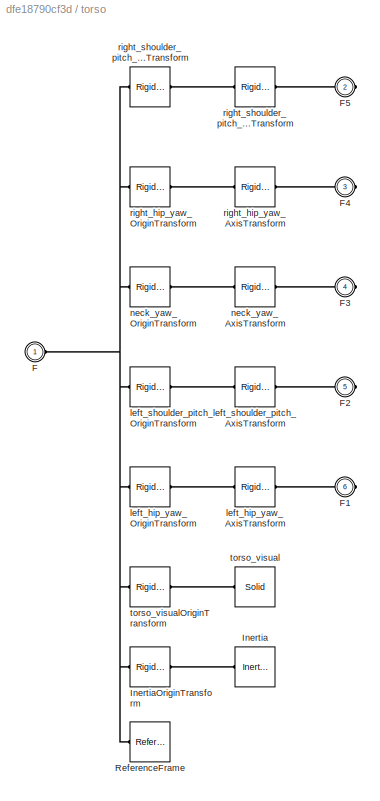
BLOCK [SubSystem] torso
  Ports = [0, 0, 0, 0, 0, 1, 5]
  RequestExecContextInheritance = off
BLOCK [PMIOPort] torso/F
  Side = Left
BLOCK [PMIOPort] torso/F1
  Port = 6
  Side = Right
BLOCK [PMIOPort] torso/F2
  Port = 5
  Side = Right
BLOCK [PMIOPort] torso/F3
  Port = 4
  Side = Right
BLOCK [PMIOPort] torso/F4
  Port = 3
  Side = Right
BLOCK [PMIOPort] torso/F5
  Port = 2
  Side = Right
BLOCK [Reference] torso/Inertia  REF=sm_lib/Body Elements/Inertia
  Ports = [0, 0, 0, 0, 0, 0, 1]
  SourceBlock = sm_lib/Body Elements/Inertia
  SourceProductBaseCode = MS
  SourceProductName = Simscape Multibody
  SourceType = Inertia
BLOCK [Reference] torso/InertiaOriginTransform  REF=sm_lib/Frames and
Transforms/Rigid
Transform
  Ports = [0, 0, 0, 0, 0, 1, 1]
  SourceBlock = sm_lib/Frames and\nTransforms/Rigid\nTransform
  SourceProductBaseCode = MS
  SourceProductName = Simscape Multibody
  SourceType = Rigid\nTransform
BLOCK [Reference] torso/ReferenceFrame  REF=sm_lib/Frames and
Transforms/Reference
Frame
  Ports = [0, 0, 0, 0, 0, 0, 1]
  SourceBlock = sm_lib/Frames and\nTransforms/Reference\nFrame
  SourceProductBaseCode = MS
  SourceProductName = Simscape Multibody
  SourceType = Reference\nFrame
BLOCK [Reference] torso/left_hip_yaw_AxisTransform  REF=sm_lib/Frames and
Transforms/Rigid
Transform
  Ports = [0, 0, 0, 0, 0, 1, 1]
  SourceBlock = sm_lib/Frames and\nTransforms/Rigid\nTransform
  SourceProductBaseCode = MS
  SourceProductName = Simscape Multibody
  SourceType = Rigid\nTransform
BLOCK [Reference] torso/left_hip_yaw_OriginTransform  REF=sm_lib/Frames and
Transforms/Rigid
Transform
  Ports = [0, 0, 0, 0, 0, 1, 1]
  SourceBlock = sm_lib/Frames and\nTransforms/Rigid\nTransform
  SourceProductBaseCode = MS
  SourceProductName = Simscape Multibody
  SourceType = Rigid\nTransform
BLOCK [Reference] torso/left_shoulder_pitch_AxisTransform  REF=sm_lib/Frames and
Transforms/Rigid
Transform
  Ports = [0, 0, 0, 0, 0, 1, 1]
  SourceBlock = sm_lib/Frames and\nTransforms/Rigid\nTransform
  SourceProductBaseCode = MS
  SourceProductName = Simscape Multibody
  SourceType = Rigid\nTransform
BLOCK [Reference] torso/left_shoulder_pitch_OriginTransform  REF=sm_lib/Frames and
Transforms/Rigid
Transform
  Ports = [0, 0, 0, 0, 0, 1, 1]
  SourceBlock = sm_lib/Frames and\nTransforms/Rigid\nTransform
  SourceProductBaseCode = MS
  SourceProductName = Simscape Multibody
  SourceType = Rigid\nTransform
BLOCK [Reference] torso/neck_yaw_AxisTransform  REF=sm_lib/Frames and
Transforms/Rigid
Transform
  Ports = [0, 0, 0, 0, 0, 1, 1]
  SourceBlock = sm_lib/Frames and\nTransforms/Rigid\nTransform
  SourceProductBaseCode = MS
  SourceProductName = Simscape Multibody
  SourceType = Rigid\nTransform
BLOCK [Reference] torso/neck_yaw_OriginTransform  REF=sm_lib/Frames and
Transforms/Rigid
Transform
  Ports = [0, 0, 0, 0, 0, 1, 1]
  SourceBlock = sm_lib/Frames and\nTransforms/Rigid\nTransform
  SourceProductBaseCode = MS
  SourceProductName = Simscape Multibody
  SourceType = Rigid\nTransform
BLOCK [Reference] torso/right_hip_yaw_AxisTransform  REF=sm_lib/Frames and
Transforms/Rigid
Transform
  Ports = [0, 0, 0, 0, 0, 1, 1]
  SourceBlock = sm_lib/Frames and\nTransforms/Rigid\nTransform
  SourceProductBaseCode = MS
  SourceProductName = Simscape Multibody
  SourceType = Rigid\nTransform
BLOCK [Reference] torso/right_hip_yaw_OriginTransform  REF=sm_lib/Frames and
Transforms/Rigid
Transform
  Ports = [0, 0, 0, 0, 0, 1, 1]
  SourceBlock = sm_lib/Frames and\nTransforms/Rigid\nTransform
  SourceProductBaseCode = MS
  SourceProductName = Simscape Multibody
  SourceType = Rigid\nTransform
BLOCK [Reference] torso/right_shoulder_pitch_AxisTransform  REF=sm_lib/Frames and
Transforms/Rigid
Transform
  Ports = [0, 0, 0, 0, 0, 1, 1]
  SourceBlock = sm_lib/Frames and\nTransforms/Rigid\nTransform
  SourceProductBaseCode = MS
  SourceProductName = Simscape Multibody
  SourceType = Rigid\nTransform
BLOCK [Reference] torso/right_shoulder_pitch_OriginTransform  REF=sm_lib/Frames and
Transforms/Rigid
Transform
  Ports = [0, 0, 0, 0, 0, 1, 1]
  SourceBlock = sm_lib/Frames and\nTransforms/Rigid\nTransform
  SourceProductBaseCode = MS
  SourceProductName = Simscape Multibody
  SourceType = Rigid\nTransform
BLOCK [Reference] torso/torso_visual  REF=sm_lib/Body Elements/Solid
  Ports = [0, 0, 0, 0, 0, 0, 1]
  SourceBlock = sm_lib/Body Elements/Solid
  SourceProductBaseCode = MS
  SourceProductName = Simscape Multibody
  SourceType = Solid
BLOCK [Reference] torso/torso_visualOriginTransform  REF=sm_lib/Frames and
Transforms/Rigid
Transform
  Ports = [0, 0, 0, 0, 0, 1, 1]
  SourceBlock = sm_lib/Frames and\nTransforms/Rigid\nTransform
  SourceProductBaseCode = MS
  SourceProductName = Simscape Multibody
  SourceType = Rigid\nTransform
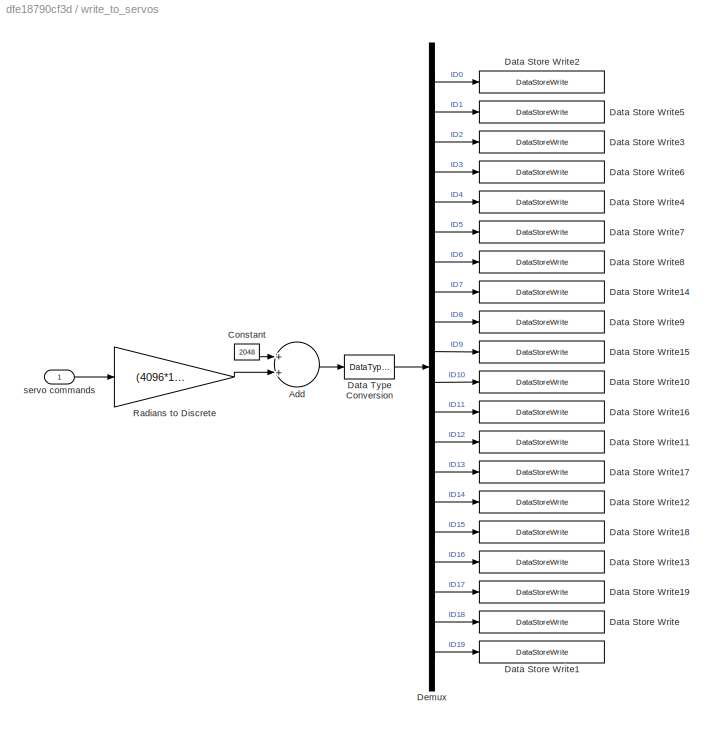
BLOCK [SubSystem] write_to_servos
  Ports = [1]
  RequestExecContextInheritance = off
BLOCK [Sum] write_to_servos/Add
  InputSameDT = off
  OutDataTypeStr = Inherit: Inherit via internal rule
  Ports = [2, 1]
  SaturateOnIntegerOverflow = off
BLOCK [Constant] write_to_servos/Constant
  Value = 2048
BLOCK [DataStoreWrite] write_to_servos/Data Store Write
  DataStoreElements = MX64_ID18.goal_position
  DataStoreName = MX64_ID18
  Ports = [1]
BLOCK [DataStoreWrite] write_to_servos/Data Store Write1
  DataStoreElements = MX64_ID19.goal_position
  DataStoreName = MX64_ID19
  Ports = [1]
BLOCK [DataStoreWrite] write_to_servos/Data Store Write10
  DataStoreElements = MX106_ID10.goal_position
  DataStoreName = MX106_ID10
  Ports = [1]
BLOCK [DataStoreWrite] write_to_servos/Data Store Write11
  DataStoreElements = MX106_ID12.goal_position
  DataStoreName = MX106_ID12
  Ports = [1]
BLOCK [DataStoreWrite] write_to_servos/Data Store Write12
  DataStoreElements = MX106_ID14.goal_position
  DataStoreName = MX106_ID14
  Ports = [1]
BLOCK [DataStoreWrite] write_to_servos/Data Store Write13
  DataStoreElements = MX106_ID16.goal_position
  DataStoreName = MX106_ID16
  Ports = [1]
BLOCK [DataStoreWrite] write_to_servos/Data Store Write14
  DataStoreElements = MX106_ID7.goal_position
  DataStoreName = MX106_ID7
  Ports = [1]
BLOCK [DataStoreWrite] write_to_servos/Data Store Write15
  DataStoreElements = MX106_ID9.goal_position
  DataStoreName = MX106_ID9
  Ports = [1]
BLOCK [DataStoreWrite] write_to_servos/Data Store Write16
  DataStoreElements = MX106_ID11.goal_position
  DataStoreName = MX106_ID11
  Ports = [1]
BLOCK [DataStoreWrite] write_to_servos/Data Store Write17
  DataStoreElements = MX106_ID13.goal_position
  DataStoreName = MX106_ID13
  Ports = [1]
BLOCK [DataStoreWrite] write_to_servos/Data Store Write18
  DataStoreElements = MX106_ID15.goal_position
  DataStoreName = MX106_ID15
  Ports = [1]
BLOCK [DataStoreWrite] write_to_servos/Data Store Write19
  DataStoreElements = MX106_ID17.goal_position
  DataStoreName = MX106_ID17
  Ports = [1]
BLOCK [DataStoreWrite] write_to_servos/Data Store Write2
  DataStoreElements = MX64_ID0.goal_position
  DataStoreName = MX64_ID0
  Ports = [1]
BLOCK [DataStoreWrite] write_to_servos/Data Store Write3
  DataStoreElements = MX64_ID2.goal_position
  DataStoreName = MX64_ID2
  Ports = [1]
BLOCK [DataStoreWrite] write_to_servos/Data Store Write4
  DataStoreElements = MX64_ID4.goal_position
  DataStoreName = MX64_ID4
  Ports = [1]
BLOCK [DataStoreWrite] write_to_servos/Data Store Write5
  DataStoreElements = MX64_ID1.goal_position
  DataStoreName = MX64_ID1
  Ports = [1]
BLOCK [DataStoreWrite] write_to_servos/Data Store Write6
  DataStoreElements = MX64_ID3.goal_position
  DataStoreName = MX64_ID3
  Ports = [1]
BLOCK [DataStoreWrite] write_to_servos/Data Store Write7
  DataStoreElements = MX64_ID5.goal_position
  DataStoreName = MX64_ID5
  Ports = [1]
BLOCK [DataStoreWrite] write_to_servos/Data Store Write8
  DataStoreElements = MX106_ID6.goal_position
  DataStoreName = MX106_ID6
  Ports = [1]
BLOCK [DataStoreWrite] write_to_servos/Data Store Write9
  DataStoreElements = MX106_ID8.goal_position
  DataStoreName = MX106_ID8
  Ports = [1]
BLOCK [DataTypeConversion] write_to_servos/Data Type Conversion
  OutDataTypeStr = int16
  RndMeth = Floor
  SaturateOnIntegerOverflow = off
BLOCK [Demux] write_to_servos/Demux
  DisplayOption = bar
  Outputs = 20
  Ports = [1, 20]
BLOCK [Gain] write_to_servos/Radians to Discrete
  Gain = (4096*180)/(360*pi)
  ParamDataTypeStr = Inherit: Inherit via internal rule
BLOCK [Inport] write_to_servos/servo commands
  IconDisplay = Port number
ANNOTATION (root): Head Pitch
ANNOTATION (root): Head Yaw
ANNOTATION (root): Left Ankle Pitch
ANNOTATION (root): Left Ankle Roll
ANNOTATION (root): Left Elbow
ANNOTATION (root): Left Hip Pitch
ANNOTATION (root): Left Hip Roll
ANNOTATION (root): Left Hip Yaw
ANNOTATION (root): Left Knee
ANNOTATION (root): Left Shoulder Pitch
ANNOTATION (root): Left Shoulder Roll
ANNOTATION (root): MX106
ANNOTATION (root): MX64
ANNOTATION (root): Right Ankle Pitch
ANNOTATION (root): Right Ankle Roll
ANNOTATION (root): Right Elbow
ANNOTATION (root): Right Hip Pitch
ANNOTATION (root): Right Hip Roll
ANNOTATION (root): Right Hip Yaw
ANNOTATION (root): Right Knee
ANNOTATION (root): Right Shoulder Pitch
ANNOTATION (root): Right Shoulder Roll
ANNOTATION (root): Write to Servos
LINE Constant10:1 -> Mux1:17
LINE Constant11:1 -> Mux1:18
LINE Constant12:1 -> Mux1:5
LINE Constant13:1 -> Mux1:6
LINE Constant14:1 -> Mux1:1
LINE Constant15:1 -> Mux1:2
LINE Constant16:1 -> Mux1:3
LINE Constant17:1 -> Mux1:4
LINE Constant18:1 -> Mux1:19
LINE Constant19:1 -> Mux1:20
LINE Constant1:1 -> Mux1:8
LINE Constant2:1 -> Mux1:9
LINE Constant3:1 -> Mux1:10
LINE Constant4:1 -> Mux1:11
LINE Constant5:1 -> Mux1:12
LINE Constant6:1 -> Mux1:13
LINE Constant7:1 -> Mux1:14
LINE Constant8:1 -> Mux1:15
LINE Constant9:1 -> Mux1:16
LINE Constant:1 -> Mux1:7
LINE Mux1:1 -> write_to_servos:1
LINE head_pitch/Data Store Read:1 -> head_pitch/Model:3
LINE head_pitch/Data Store Read:2 -> head_pitch/Model:4
LINE head_pitch/Data Store Read:3 -> head_pitch/Model:5
LINE head_pitch/Data Store Read:4 -> head_pitch/Model:6
LINE head_pitch/Data Store Read:5 -> head_pitch/Model:7
LINE head_pitch/Data Store Read:6 -> head_pitch/Model:8
LINE head_pitch/Data Store Read:7 -> head_pitch/Model:9
LINE head_pitch/Data Store Read:8 -> head_pitch/Model:10
LINE head_pitch/Data Store Read:9 -> head_pitch/Model:11
LINE head_pitch/Model:1 -> head_pitch/Simulink-PS Converter:1
LINE head_pitch/Model:2 -> head_pitch/Data Store Write:1
LINE head_pitch/Model:3 -> head_pitch/Data Store Write:2
LINE head_pitch/Model:4 -> head_pitch/Data Store Write:3
LINE head_pitch/Model:5 -> head_pitch/Data Store Write:4
LINE head_pitch/Model:6 -> head_pitch/Data Store Write:5
LINE head_pitch/Position:1 -> head_pitch/Model:2
LINE head_pitch/Speed:1 -> head_pitch/Model:1
LINE head_yaw/Data Store Read:1 -> head_yaw/Model:3
LINE head_yaw/Data Store Read:2 -> head_yaw/Model:4
LINE head_yaw/Data Store Read:3 -> head_yaw/Model:5
LINE head_yaw/Data Store Read:4 -> head_yaw/Model:6
LINE head_yaw/Data Store Read:5 -> head_yaw/Model:7
LINE head_yaw/Data Store Read:6 -> head_yaw/Model:8
LINE head_yaw/Data Store Read:7 -> head_yaw/Model:9
LINE head_yaw/Data Store Read:8 -> head_yaw/Model:10
LINE head_yaw/Data Store Read:9 -> head_yaw/Model:11
LINE head_yaw/Model:1 -> head_yaw/Simulink-PS Converter:1
LINE head_yaw/Model:2 -> head_yaw/Data Store Write:1
LINE head_yaw/Model:3 -> head_yaw/Data Store Write:2
LINE head_yaw/Model:4 -> head_yaw/Data Store Write:3
LINE head_yaw/Model:5 -> head_yaw/Data Store Write:4
LINE head_yaw/Model:6 -> head_yaw/Data Store Write:5
LINE head_yaw/Position:1 -> head_yaw/Model:2
LINE head_yaw/Speed:1 -> head_yaw/Model:1
LINE left_ankle_pitch/Data Store Read:1 -> left_ankle_pitch/Model:3
LINE left_ankle_pitch/Data Store Read:2 -> left_ankle_pitch/Model:4
LINE left_ankle_pitch/Data Store Read:3 -> left_ankle_pitch/Model:5
LINE left_ankle_pitch/Data Store Read:4 -> left_ankle_pitch/Model:6
LINE left_ankle_pitch/Data Store Read:5 -> left_ankle_pitch/Model:7
LINE left_ankle_pitch/Data Store Read:6 -> left_ankle_pitch/Model:8
LINE left_ankle_pitch/Data Store Read:7 -> left_ankle_pitch/Model:9
LINE left_ankle_pitch/Data Store Read:8 -> left_ankle_pitch/Model:10
LINE left_ankle_pitch/Data Store Read:9 -> left_ankle_pitch/Model:11
LINE left_ankle_pitch/Model:1 -> left_ankle_pitch/Simulink-PS Converter:1
LINE left_ankle_pitch/Model:2 -> left_ankle_pitch/Data Store Write:1
LINE left_ankle_pitch/Model:3 -> left_ankle_pitch/Data Store Write:2
LINE left_ankle_pitch/Model:4 -> left_ankle_pitch/Data Store Write:3
LINE left_ankle_pitch/Model:5 -> left_ankle_pitch/Data Store Write:4
LINE left_ankle_pitch/Model:6 -> left_ankle_pitch/Data Store Write:5
LINE left_ankle_pitch/Position:1 -> left_ankle_pitch/Model:2
LINE left_ankle_pitch/Speed:1 -> left_ankle_pitch/Model:1
LINE left_ankle_roll/Data Store Read:1 -> left_ankle_roll/Model:3
LINE left_ankle_roll/Data Store Read:2 -> left_ankle_roll/Model:4
LINE left_ankle_roll/Data Store Read:3 -> left_ankle_roll/Model:5
LINE left_ankle_roll/Data Store Read:4 -> left_ankle_roll/Model:6
LINE left_ankle_roll/Data Store Read:5 -> left_ankle_roll/Model:7
LINE left_ankle_roll/Data Store Read:6 -> left_ankle_roll/Model:8
LINE left_ankle_roll/Data Store Read:7 -> left_ankle_roll/Model:9
LINE left_ankle_roll/Data Store Read:8 -> left_ankle_roll/Model:10
LINE left_ankle_roll/Data Store Read:9 -> left_ankle_roll/Model:11
LINE left_ankle_roll/Model:1 -> left_ankle_roll/Simulink-PS Converter:1
LINE left_ankle_roll/Model:2 -> left_ankle_roll/Data Store Write:1
LINE left_ankle_roll/Model:3 -> left_ankle_roll/Data Store Write:2
LINE left_ankle_roll/Model:4 -> left_ankle_roll/Data Store Write:3
LINE left_ankle_roll/Model:5 -> left_ankle_roll/Data Store Write:4
LINE left_ankle_roll/Model:6 -> left_ankle_roll/Data Store Write:5
LINE left_ankle_roll/Position:1 -> left_ankle_roll/Model:2
LINE left_ankle_roll/Speed:1 -> left_ankle_roll/Model:1
LINE left_elbow/Data Store Read:1 -> left_elbow/Model:3
LINE left_elbow/Data Store Read:2 -> left_elbow/Model:4
LINE left_elbow/Data Store Read:3 -> left_elbow/Model:5
LINE left_elbow/Data Store Read:4 -> left_elbow/Model:6
LINE left_elbow/Data Store Read:5 -> left_elbow/Model:7
LINE left_elbow/Data Store Read:6 -> left_elbow/Model:8
LINE left_elbow/Data Store Read:7 -> left_elbow/Model:9
LINE left_elbow/Data Store Read:8 -> left_elbow/Model:10
LINE left_elbow/Data Store Read:9 -> left_elbow/Model:11
LINE left_elbow/Model:1 -> left_elbow/Simulink-PS Converter:1
LINE left_elbow/Model:2 -> left_elbow/Data Store Write:1
LINE left_elbow/Model:3 -> left_elbow/Data Store Write:2
LINE left_elbow/Model:4 -> left_elbow/Data Store Write:3
LINE left_elbow/Model:5 -> left_elbow/Data Store Write:4
LINE left_elbow/Model:6 -> left_elbow/Data Store Write:5
LINE left_elbow/Position:1 -> left_elbow/Model:2
LINE left_elbow/Speed:1 -> left_elbow/Model:1
LINE left_hip_pitch/Data Store Read:1 -> left_hip_pitch/Model:3
LINE left_hip_pitch/Data Store Read:2 -> left_hip_pitch/Model:4
LINE left_hip_pitch/Data Store Read:3 -> left_hip_pitch/Model:5
LINE left_hip_pitch/Data Store Read:4 -> left_hip_pitch/Model:6
LINE left_hip_pitch/Data Store Read:5 -> left_hip_pitch/Model:7
LINE left_hip_pitch/Data Store Read:6 -> left_hip_pitch/Model:8
LINE left_hip_pitch/Data Store Read:7 -> left_hip_pitch/Model:9
LINE left_hip_pitch/Data Store Read:8 -> left_hip_pitch/Model:10
LINE left_hip_pitch/Data Store Read:9 -> left_hip_pitch/Model:11
LINE left_hip_pitch/Model:1 -> left_hip_pitch/Simulink-PS Converter:1
LINE left_hip_pitch/Model:2 -> left_hip_pitch/Data Store Write:1
LINE left_hip_pitch/Model:3 -> left_hip_pitch/Data Store Write:2
LINE left_hip_pitch/Model:4 -> left_hip_pitch/Data Store Write:3
LINE left_hip_pitch/Model:5 -> left_hip_pitch/Data Store Write:4
LINE left_hip_pitch/Model:6 -> left_hip_pitch/Data Store Write:5
LINE left_hip_pitch/Position:1 -> left_hip_pitch/Model:2
LINE left_hip_pitch/Speed:1 -> left_hip_pitch/Model:1
LINE left_hip_roll/Data Store Read:1 -> left_hip_roll/Model:3
LINE left_hip_roll/Data Store Read:2 -> left_hip_roll/Model:4
LINE left_hip_roll/Data Store Read:3 -> left_hip_roll/Model:5
LINE left_hip_roll/Data Store Read:4 -> left_hip_roll/Model:6
LINE left_hip_roll/Data Store Read:5 -> left_hip_roll/Model:7
LINE left_hip_roll/Data Store Read:6 -> left_hip_roll/Model:8
LINE left_hip_roll/Data Store Read:7 -> left_hip_roll/Model:9
LINE left_hip_roll/Data Store Read:8 -> left_hip_roll/Model:10
LINE left_hip_roll/Data Store Read:9 -> left_hip_roll/Model:11
LINE left_hip_roll/Model:1 -> left_hip_roll/Simulink-PS Converter:1
LINE left_hip_roll/Model:2 -> left_hip_roll/Data Store Write:1
LINE left_hip_roll/Model:3 -> left_hip_roll/Data Store Write:2
LINE left_hip_roll/Model:4 -> left_hip_roll/Data Store Write:3
LINE left_hip_roll/Model:5 -> left_hip_roll/Data Store Write:4
LINE left_hip_roll/Model:6 -> left_hip_roll/Data Store Write:5
LINE left_hip_roll/Position:1 -> left_hip_roll/Model:2
LINE left_hip_roll/Speed:1 -> left_hip_roll/Model:1
LINE left_hip_yaw/Data Store Read:1 -> left_hip_yaw/Model:3
LINE left_hip_yaw/Data Store Read:2 -> left_hip_yaw/Model:4
LINE left_hip_yaw/Data Store Read:3 -> left_hip_yaw/Model:5
LINE left_hip_yaw/Data Store Read:4 -> left_hip_yaw/Model:6
LINE left_hip_yaw/Data Store Read:5 -> left_hip_yaw/Model:7
LINE left_hip_yaw/Data Store Read:6 -> left_hip_yaw/Model:8
LINE left_hip_yaw/Data Store Read:7 -> left_hip_yaw/Model:9
LINE left_hip_yaw/Data Store Read:8 -> left_hip_yaw/Model:10
LINE left_hip_yaw/Data Store Read:9 -> left_hip_yaw/Model:11
LINE left_hip_yaw/Model:1 -> left_hip_yaw/Simulink-PS Converter:1
LINE left_hip_yaw/Model:2 -> left_hip_yaw/Data Store Write:1
LINE left_hip_yaw/Model:3 -> left_hip_yaw/Data Store Write:2
LINE left_hip_yaw/Model:4 -> left_hip_yaw/Data Store Write:3
LINE left_hip_yaw/Model:5 -> left_hip_yaw/Data Store Write:4
LINE left_hip_yaw/Model:6 -> left_hip_yaw/Data Store Write:5
LINE left_hip_yaw/Position:1 -> left_hip_yaw/Model:2
LINE left_hip_yaw/Speed:1 -> left_hip_yaw/Model:1
LINE left_knee/Data Store Read:1 -> left_knee/Model:3
LINE left_knee/Data Store Read:2 -> left_knee/Model:4
LINE left_knee/Data Store Read:3 -> left_knee/Model:5
LINE left_knee/Data Store Read:4 -> left_knee/Model:6
LINE left_knee/Data Store Read:5 -> left_knee/Model:7
LINE left_knee/Data Store Read:6 -> left_knee/Model:8
LINE left_knee/Data Store Read:7 -> left_knee/Model:9
LINE left_knee/Data Store Read:8 -> left_knee/Model:10
LINE left_knee/Data Store Read:9 -> left_knee/Model:11
LINE left_knee/Model:1 -> left_knee/Simulink-PS Converter:1
LINE left_knee/Model:2 -> left_knee/Data Store Write:1
LINE left_knee/Model:3 -> left_knee/Data Store Write:2
LINE left_knee/Model:4 -> left_knee/Data Store Write:3
LINE left_knee/Model:5 -> left_knee/Data Store Write:4
LINE left_knee/Model:6 -> left_knee/Data Store Write:5
LINE left_knee/Position:1 -> left_knee/Model:2
LINE left_knee/Speed:1 -> left_knee/Model:1
LINE left_shoulder_pitch/Data Store Read:1 -> left_shoulder_pitch/Model:3
LINE left_shoulder_pitch/Data Store Read:2 -> left_shoulder_pitch/Model:4
LINE left_shoulder_pitch/Data Store Read:3 -> left_shoulder_pitch/Model:5
LINE left_shoulder_pitch/Data Store Read:4 -> left_shoulder_pitch/Model:6
LINE left_shoulder_pitch/Data Store Read:5 -> left_shoulder_pitch/Model:7
LINE left_shoulder_pitch/Data Store Read:6 -> left_shoulder_pitch/Model:8
LINE left_shoulder_pitch/Data Store Read:7 -> left_shoulder_pitch/Model:9
LINE left_shoulder_pitch/Data Store Read:8 -> left_shoulder_pitch/Model:10
LINE left_shoulder_pitch/Data Store Read:9 -> left_shoulder_pitch/Model:11
LINE left_shoulder_pitch/Model:1 -> left_shoulder_pitch/Simulink-PS Converter:1
LINE left_shoulder_pitch/Model:2 -> left_shoulder_pitch/Data Store Write:1
LINE left_shoulder_pitch/Model:3 -> left_shoulder_pitch/Data Store Write:2
LINE left_shoulder_pitch/Model:4 -> left_shoulder_pitch/Data Store Write:3
LINE left_shoulder_pitch/Model:5 -> left_shoulder_pitch/Data Store Write:4
LINE left_shoulder_pitch/Model:6 -> left_shoulder_pitch/Data Store Write:5
LINE left_shoulder_pitch/Position:1 -> left_shoulder_pitch/Model:2
LINE left_shoulder_pitch/Speed:1 -> left_shoulder_pitch/Model:1
LINE left_shoulder_roll/Data Store Read:1 -> left_shoulder_roll/Model:3
LINE left_shoulder_roll/Data Store Read:2 -> left_shoulder_roll/Model:4
LINE left_shoulder_roll/Data Store Read:3 -> left_shoulder_roll/Model:5
LINE left_shoulder_roll/Data Store Read:4 -> left_shoulder_roll/Model:6
LINE left_shoulder_roll/Data Store Read:5 -> left_shoulder_roll/Model:7
LINE left_shoulder_roll/Data Store Read:6 -> left_shoulder_roll/Model:8
LINE left_shoulder_roll/Data Store Read:7 -> left_shoulder_roll/Model:9
LINE left_shoulder_roll/Data Store Read:8 -> left_shoulder_roll/Model:10
LINE left_shoulder_roll/Data Store Read:9 -> left_shoulder_roll/Model:11
LINE left_shoulder_roll/Model:1 -> left_shoulder_roll/Simulink-PS Converter:1
LINE left_shoulder_roll/Model:2 -> left_shoulder_roll/Data Store Write:1
LINE left_shoulder_roll/Model:3 -> left_shoulder_roll/Data Store Write:2
LINE left_shoulder_roll/Model:4 -> left_shoulder_roll/Data Store Write:3
LINE left_shoulder_roll/Model:5 -> left_shoulder_roll/Data Store Write:4
LINE left_shoulder_roll/Model:6 -> left_shoulder_roll/Data Store Write:5
LINE left_shoulder_roll/Position:1 -> left_shoulder_roll/Model:2
LINE left_shoulder_roll/Speed:1 -> left_shoulder_roll/Model:1
LINE right_ankle_pitch/Data Store Read:1 -> right_ankle_pitch/Model:3
LINE right_ankle_pitch/Data Store Read:2 -> right_ankle_pitch/Model:4
LINE right_ankle_pitch/Data Store Read:3 -> right_ankle_pitch/Model:5
LINE right_ankle_pitch/Data Store Read:4 -> right_ankle_pitch/Model:6
LINE right_ankle_pitch/Data Store Read:5 -> right_ankle_pitch/Model:7
LINE right_ankle_pitch/Data Store Read:6 -> right_ankle_pitch/Model:8
LINE right_ankle_pitch/Data Store Read:7 -> right_ankle_pitch/Model:9
LINE right_ankle_pitch/Data Store Read:8 -> right_ankle_pitch/Model:10
LINE right_ankle_pitch/Data Store Read:9 -> right_ankle_pitch/Model:11
LINE right_ankle_pitch/Model:1 -> right_ankle_pitch/Simulink-PS Converter:1
LINE right_ankle_pitch/Model:2 -> right_ankle_pitch/Data Store Write:1
LINE right_ankle_pitch/Model:3 -> right_ankle_pitch/Data Store Write:2
LINE right_ankle_pitch/Model:4 -> right_ankle_pitch/Data Store Write:3
LINE right_ankle_pitch/Model:5 -> right_ankle_pitch/Data Store Write:4
LINE right_ankle_pitch/Model:6 -> right_ankle_pitch/Data Store Write:5
LINE right_ankle_pitch/Position:1 -> right_ankle_pitch/Model:2
LINE right_ankle_pitch/Speed:1 -> right_ankle_pitch/Model:1
LINE right_ankle_roll/Data Store Read:1 -> right_ankle_roll/Model:3
LINE right_ankle_roll/Data Store Read:2 -> right_ankle_roll/Model:4
LINE right_ankle_roll/Data Store Read:3 -> right_ankle_roll/Model:5
LINE right_ankle_roll/Data Store Read:4 -> right_ankle_roll/Model:6
LINE right_ankle_roll/Data Store Read:5 -> right_ankle_roll/Model:7
LINE right_ankle_roll/Data Store Read:6 -> right_ankle_roll/Model:8
NET right_ankle_roll/Data Store Read:7 -> right_ankle_roll/Model:9, right_ankle_roll/Scope:2
LINE right_ankle_roll/Data Store Read:8 -> right_ankle_roll/Model:10
LINE right_ankle_roll/Data Store Read:9 -> right_ankle_roll/Model:11
LINE right_ankle_roll/Model:1 -> right_ankle_roll/Simulink-PS Converter:1
NET right_ankle_roll/Model:2 -> right_ankle_roll/Data Store Write:1, right_ankle_roll/Scope:1
LINE right_ankle_roll/Model:3 -> right_ankle_roll/Data Store Write:2
LINE right_ankle_roll/Model:4 -> right_ankle_roll/Data Store Write:3
LINE right_ankle_roll/Model:5 -> right_ankle_roll/Data Store Write:4
LINE right_ankle_roll/Model:6 -> right_ankle_roll/Data Store Write:5
LINE right_ankle_roll/Position:1 -> right_ankle_roll/Model:2
LINE right_ankle_roll/Speed:1 -> right_ankle_roll/Model:1
LINE right_elbow/Data Store Read:1 -> right_elbow/Model:3
LINE right_elbow/Data Store Read:2 -> right_elbow/Model:4
LINE right_elbow/Data Store Read:3 -> right_elbow/Model:5
LINE right_elbow/Data Store Read:4 -> right_elbow/Model:6
LINE right_elbow/Data Store Read:5 -> right_elbow/Model:7
LINE right_elbow/Data Store Read:6 -> right_elbow/Model:8
LINE right_elbow/Data Store Read:7 -> right_elbow/Model:9
LINE right_elbow/Data Store Read:8 -> right_elbow/Model:10
LINE right_elbow/Data Store Read:9 -> right_elbow/Model:11
LINE right_elbow/Model:1 -> right_elbow/Simulink-PS Converter:1
LINE right_elbow/Model:2 -> right_elbow/Data Store Write:1
LINE right_elbow/Model:3 -> right_elbow/Data Store Write:2
LINE right_elbow/Model:4 -> right_elbow/Data Store Write:3
LINE right_elbow/Model:5 -> right_elbow/Data Store Write:4
LINE right_elbow/Model:6 -> right_elbow/Data Store Write:5
LINE right_elbow/Position:1 -> right_elbow/Model:2
LINE right_elbow/Speed:1 -> right_elbow/Model:1
LINE right_hip_pitch/Data Store Read:1 -> right_hip_pitch/Model:3
LINE right_hip_pitch/Data Store Read:2 -> right_hip_pitch/Model:4
LINE right_hip_pitch/Data Store Read:3 -> right_hip_pitch/Model:5
LINE right_hip_pitch/Data Store Read:4 -> right_hip_pitch/Model:6
LINE right_hip_pitch/Data Store Read:5 -> right_hip_pitch/Model:7
LINE right_hip_pitch/Data Store Read:6 -> right_hip_pitch/Model:8
LINE right_hip_pitch/Data Store Read:7 -> right_hip_pitch/Model:9
LINE right_hip_pitch/Data Store Read:8 -> right_hip_pitch/Model:10
LINE right_hip_pitch/Data Store Read:9 -> right_hip_pitch/Model:11
LINE right_hip_pitch/Model:1 -> right_hip_pitch/Simulink-PS Converter:1
LINE right_hip_pitch/Model:2 -> right_hip_pitch/Data Store Write:1
LINE right_hip_pitch/Model:3 -> right_hip_pitch/Data Store Write:2
LINE right_hip_pitch/Model:4 -> right_hip_pitch/Data Store Write:3
LINE right_hip_pitch/Model:5 -> right_hip_pitch/Data Store Write:4
LINE right_hip_pitch/Model:6 -> right_hip_pitch/Data Store Write:5
LINE right_hip_pitch/Position:1 -> right_hip_pitch/Model:2
LINE right_hip_pitch/Speed:1 -> right_hip_pitch/Model:1
LINE right_hip_roll/Data Store Read:1 -> right_hip_roll/Model:3
LINE right_hip_roll/Data Store Read:2 -> right_hip_roll/Model:4
LINE right_hip_roll/Data Store Read:3 -> right_hip_roll/Model:5
LINE right_hip_roll/Data Store Read:4 -> right_hip_roll/Model:6
LINE right_hip_roll/Data Store Read:5 -> right_hip_roll/Model:7
LINE right_hip_roll/Data Store Read:6 -> right_hip_roll/Model:8
LINE right_hip_roll/Data Store Read:7 -> right_hip_roll/Model:9
LINE right_hip_roll/Data Store Read:8 -> right_hip_roll/Model:10
LINE right_hip_roll/Data Store Read:9 -> right_hip_roll/Model:11
LINE right_hip_roll/Model:1 -> right_hip_roll/Simulink-PS Converter:1
LINE right_hip_roll/Model:2 -> right_hip_roll/Data Store Write:1
LINE right_hip_roll/Model:3 -> right_hip_roll/Data Store Write:2
LINE right_hip_roll/Model:4 -> right_hip_roll/Data Store Write:3
LINE right_hip_roll/Model:5 -> right_hip_roll/Data Store Write:4
LINE right_hip_roll/Model:6 -> right_hip_roll/Data Store Write:5
LINE right_hip_roll/Position:1 -> right_hip_roll/Model:2
LINE right_hip_roll/Speed:1 -> right_hip_roll/Model:1
LINE right_hip_yaw/Data Store Read:1 -> right_hip_yaw/Model:3
LINE right_hip_yaw/Data Store Read:2 -> right_hip_yaw/Model:4
LINE right_hip_yaw/Data Store Read:3 -> right_hip_yaw/Model:5
LINE right_hip_yaw/Data Store Read:4 -> right_hip_yaw/Model:6
LINE right_hip_yaw/Data Store Read:5 -> right_hip_yaw/Model:7
LINE right_hip_yaw/Data Store Read:6 -> right_hip_yaw/Model:8
LINE right_hip_yaw/Data Store Read:7 -> right_hip_yaw/Model:9
LINE right_hip_yaw/Data Store Read:8 -> right_hip_yaw/Model:10
LINE right_hip_yaw/Data Store Read:9 -> right_hip_yaw/Model:11
LINE right_hip_yaw/Model:1 -> right_hip_yaw/Simulink-PS Converter:1
LINE right_hip_yaw/Model:2 -> right_hip_yaw/Data Store Write:1
LINE right_hip_yaw/Model:3 -> right_hip_yaw/Data Store Write:2
LINE right_hip_yaw/Model:4 -> right_hip_yaw/Data Store Write:3
LINE right_hip_yaw/Model:5 -> right_hip_yaw/Data Store Write:4
LINE right_hip_yaw/Model:6 -> right_hip_yaw/Data Store Write:5
LINE right_hip_yaw/Position:1 -> right_hip_yaw/Model:2
LINE right_hip_yaw/Speed:1 -> right_hip_yaw/Model:1
LINE right_knee/Data Store Read:1 -> right_knee/Model:3
LINE right_knee/Data Store Read:2 -> right_knee/Model:4
LINE right_knee/Data Store Read:3 -> right_knee/Model:5
LINE right_knee/Data Store Read:4 -> right_knee/Model:6
LINE right_knee/Data Store Read:5 -> right_knee/Model:7
LINE right_knee/Data Store Read:6 -> right_knee/Model:8
LINE right_knee/Data Store Read:7 -> right_knee/Model:9
LINE right_knee/Data Store Read:8 -> right_knee/Model:10
LINE right_knee/Data Store Read:9 -> right_knee/Model:11
LINE right_knee/Model:1 -> right_knee/Simulink-PS Converter:1
LINE right_knee/Model:2 -> right_knee/Data Store Write:1
LINE right_knee/Model:3 -> right_knee/Data Store Write:2
LINE right_knee/Model:4 -> right_knee/Data Store Write:3
LINE right_knee/Model:5 -> right_knee/Data Store Write:4
LINE right_knee/Model:6 -> right_knee/Data Store Write:5
LINE right_knee/Position:1 -> right_knee/Model:2
LINE right_knee/Speed:1 -> right_knee/Model:1
LINE right_shoulder_pitch/Data Store Read:1 -> right_shoulder_pitch/Model:3
LINE right_shoulder_pitch/Data Store Read:2 -> right_shoulder_pitch/Model:4
LINE right_shoulder_pitch/Data Store Read:3 -> right_shoulder_pitch/Model:5
LINE right_shoulder_pitch/Data Store Read:4 -> right_shoulder_pitch/Model:6
LINE right_shoulder_pitch/Data Store Read:5 -> right_shoulder_pitch/Model:7
LINE right_shoulder_pitch/Data Store Read:6 -> right_shoulder_pitch/Model:8
LINE right_shoulder_pitch/Data Store Read:7 -> right_shoulder_pitch/Model:9
LINE right_shoulder_pitch/Data Store Read:8 -> right_shoulder_pitch/Model:10
LINE right_shoulder_pitch/Data Store Read:9 -> right_shoulder_pitch/Model:11
LINE right_shoulder_pitch/Model:1 -> right_shoulder_pitch/Simulink-PS Converter:1
LINE right_shoulder_pitch/Model:2 -> right_shoulder_pitch/Data Store Write:1
LINE right_shoulder_pitch/Model:3 -> right_shoulder_pitch/Data Store Write:2
LINE right_shoulder_pitch/Model:4 -> right_shoulder_pitch/Data Store Write:3
LINE right_shoulder_pitch/Model:5 -> right_shoulder_pitch/Data Store Write:4
LINE right_shoulder_pitch/Model:6 -> right_shoulder_pitch/Data Store Write:5
LINE right_shoulder_pitch/Position1:1 -> right_shoulder_pitch/Model:2
LINE right_shoulder_pitch/Speed:1 -> right_shoulder_pitch/Model:1
LINE right_shoulder_roll/Data Store Read:1 -> right_shoulder_roll/Model:3
LINE right_shoulder_roll/Data Store Read:2 -> right_shoulder_roll/Model:4
LINE right_shoulder_roll/Data Store Read:3 -> right_shoulder_roll/Model:5
LINE right_shoulder_roll/Data Store Read:4 -> right_shoulder_roll/Model:6
LINE right_shoulder_roll/Data Store Read:5 -> right_shoulder_roll/Model:7
LINE right_shoulder_roll/Data Store Read:6 -> right_shoulder_roll/Model:8
LINE right_shoulder_roll/Data Store Read:7 -> right_shoulder_roll/Model:9
LINE right_shoulder_roll/Data Store Read:8 -> right_shoulder_roll/Model:10
LINE right_shoulder_roll/Data Store Read:9 -> right_shoulder_roll/Model:11
LINE right_shoulder_roll/Model:1 -> right_shoulder_roll/Simulink-PS Converter:1
NET right_shoulder_roll/Model:2 -> right_shoulder_roll/Data Store Write:1, right_shoulder_roll/Scope:1
LINE right_shoulder_roll/Model:3 -> right_shoulder_roll/Data Store Write:2
LINE right_shoulder_roll/Model:4 -> right_shoulder_roll/Data Store Write:3
LINE right_shoulder_roll/Model:5 -> right_shoulder_roll/Data Store Write:4
LINE right_shoulder_roll/Model:6 -> right_shoulder_roll/Data Store Write:5
NET right_shoulder_roll/Position:1 -> right_shoulder_roll/Model:2, right_shoulder_roll/Scope:2
LINE right_shoulder_roll/Speed:1 -> right_shoulder_roll/Model:1
LINE write_to_servos/Add:1 -> write_to_servos/Data Type Conversion:1
LINE write_to_servos/Constant:1 -> write_to_servos/Add:1
LINE write_to_servos/Data Type Conversion:1 -> write_to_servos/Demux:1
LINE write_to_servos/Demux:1 -> write_to_servos/Data Store Write2:1
LINE write_to_servos/Demux:10 -> write_to_servos/Data Store Write15:1
LINE write_to_servos/Demux:11 -> write_to_servos/Data Store Write10:1
LINE write_to_servos/Demux:12 -> write_to_servos/Data Store Write16:1
LINE write_to_servos/Demux:13 -> write_to_servos/Data Store Write11:1
LINE write_to_servos/Demux:14 -> write_to_servos/Data Store Write17:1
LINE write_to_servos/Demux:15 -> write_to_servos/Data Store Write12:1
LINE write_to_servos/Demux:16 -> write_to_servos/Data Store Write18:1
LINE write_to_servos/Demux:17 -> write_to_servos/Data Store Write13:1
LINE write_to_servos/Demux:18 -> write_to_servos/Data Store Write19:1
LINE write_to_servos/Demux:19 -> write_to_servos/Data Store Write:1
LINE write_to_servos/Demux:2 -> write_to_servos/Data Store Write5:1
LINE write_to_servos/Demux:20 -> write_to_servos/Data Store Write1:1
LINE write_to_servos/Demux:3 -> write_to_servos/Data Store Write3:1
LINE write_to_servos/Demux:4 -> write_to_servos/Data Store Write6:1
LINE write_to_servos/Demux:5 -> write_to_servos/Data Store Write4:1
LINE write_to_servos/Demux:6 -> write_to_servos/Data Store Write7:1
LINE write_to_servos/Demux:7 -> write_to_servos/Data Store Write8:1
LINE write_to_servos/Demux:8 -> write_to_servos/Data Store Write14:1
LINE write_to_servos/Demux:9 -> write_to_servos/Data Store Write9:1
LINE write_to_servos/Radians to Discrete:1 -> write_to_servos/Add:2
LINE write_to_servos/servo commands:1 -> write_to_servos/Radians to Discrete:1
PNET net1: 6-DOF Joint:LConn1 -- MechanismConfiguration:RConn1 -- Solver Configuration:RConn1 -- World:RConn1 -- floor_offset:LConn1 -- left_foot:RConn1 -- right_foot:RConn1
PLINE 6-DOF Joint:RConn1 -- torso:LConn1
PLINE Floor:RConn1 -- floor_offset:RConn1
PLINE head/F:RConn1 -- head/head_pitch_AxisInvTransform:RConn1
PLINE head/Inertia:RConn1 -- head/InertiaOriginTransform:RConn1
PNET net2: head/InertiaOriginTransform:LConn1 -- head/ReferenceFrame:RConn1 -- head/head_pitch_AxisInvTransform:LConn1 -- head/head_visualOriginTransform:LConn1
PLINE head/head_visual:RConn1 -- head/head_visualOriginTransform:RConn1
PLINE head:LConn1 -- head_pitch:RConn1
PLINE head_pitch/B:RConn1 -- head_pitch/Joint:LConn1
PLINE head_pitch/F:RConn1 -- head_pitch/Joint:RConn1
PLINE head_pitch/Joint:LConn2 -- head_pitch/Simulink-PS Converter:RConn1
PLINE head_pitch/Joint:RConn2 -- head_pitch/Position:LConn1
PLINE head_pitch/Joint:RConn3 -- head_pitch/Speed:LConn1
PLINE head_pitch:LConn1 -- neck:RConn1
PLINE head_yaw/B:RConn1 -- head_yaw/Joint:LConn1
PLINE head_yaw/F:RConn1 -- head_yaw/Joint:RConn1
PLINE head_yaw/Joint:LConn2 -- head_yaw/Simulink-PS Converter:RConn1
PLINE head_yaw/Joint:RConn2 -- head_yaw/Position:LConn1
PLINE head_yaw/Joint:RConn3 -- head_yaw/Speed:LConn1
PLINE head_yaw:LConn1 -- torso:RConn3
PLINE head_yaw:RConn1 -- neck:LConn1
PLINE left_ankle/F1:RConn1 -- left_ankle/left_ankle_roll_AxisTransform:RConn1
PLINE left_ankle/F:RConn1 -- left_ankle/left_ankle_pitch_AxisInvTransform:RConn1
PLINE left_ankle/Inertia:RConn1 -- left_ankle/InertiaOriginTransform:RConn1
PNET net3: left_ankle/InertiaOriginTransform:LConn1 -- left_ankle/ReferenceFrame:RConn1 -- left_ankle/left_ankle_pitch_AxisInvTransform:LConn1 -- left_ankle/left_ankle_roll_OriginTransform:LConn1 -- left_ankle/left_ankle_visualOriginTransform:LConn1
PLINE left_ankle/left_ankle_roll_AxisTransform:LConn1 -- left_ankle/left_ankle_roll_OriginTransform:RConn1
PLINE left_ankle/left_ankle_visual:RConn1 -- left_ankle/left_ankle_visualOriginTransform:RConn1
PLINE left_ankle:LConn1 -- left_ankle_pitch:RConn1
PLINE left_ankle:RConn1 -- left_ankle_roll:LConn1
PLINE left_ankle_pitch/B:RConn1 -- left_ankle_pitch/Joint:LConn1
PLINE left_ankle_pitch/F:RConn1 -- left_ankle_pitch/Joint:RConn1
PLINE left_ankle_pitch/Joint:LConn2 -- left_ankle_pitch/Simulink-PS Converter:RConn1
PLINE left_ankle_pitch/Joint:RConn2 -- left_ankle_pitch/Position:LConn1
PLINE left_ankle_pitch/Joint:RConn3 -- left_ankle_pitch/Speed:LConn1
PLINE left_ankle_pitch:LConn1 -- left_lower_leg:RConn1
PLINE left_ankle_roll/B:RConn1 -- left_ankle_roll/Joint:LConn1
PLINE left_ankle_roll/F:RConn1 -- left_ankle_roll/Joint:RConn1
PLINE left_ankle_roll/Joint:LConn2 -- left_ankle_roll/Simulink-PS Converter:RConn1
PLINE left_ankle_roll/Joint:RConn2 -- left_ankle_roll/Position:LConn1
PLINE left_ankle_roll/Joint:RConn3 -- left_ankle_roll/Speed:LConn1
PLINE left_ankle_roll:RConn1 -- left_foot:LConn1
PLINE left_elbow/B:RConn1 -- left_elbow/Joint:RConn1
PLINE left_elbow/F:RConn1 -- left_elbow/Joint:LConn1
PLINE left_elbow/Joint:LConn2 -- left_elbow/Simulink-PS Converter:RConn1
PLINE left_elbow/Joint:RConn2 -- left_elbow/Position:LConn1
PLINE left_elbow/Joint:RConn3 -- left_elbow/Speed:LConn1
PLINE left_elbow:LConn1 -- left_upper_arm:RConn1
PLINE left_elbow:RConn1 -- left_lower_arm:LConn1
PLINE left_foot/ankle:RConn1 -- left_foot/foot:LConn1
PNET net4: left_foot/floor:RConn1 -- left_foot/foot_bl_contact:LConn1 -- left_foot/foot_br_contact:LConn1 -- left_foot/foot_fl_contact:LConn1 -- left_foot/foot_fr_contact:LConn1
PNET net5: left_foot/foot/B:RConn1 -- left_foot/foot/InertiaOriginTransform:LConn1 -- left_foot/foot/ReferenceFrame:RConn1 -- left_foot/foot/right_ankle_roll_AxisInvTransform:LConn1 -- left_foot/foot/right_foot_visualOriginTransform:LConn1
PLINE left_foot/foot/F:RConn1 -- left_foot/foot/right_ankle_roll_AxisInvTransform:RConn1
PLINE left_foot/foot/Inertia:RConn1 -- left_foot/foot/InertiaOriginTransform:RConn1
PLINE left_foot/foot/right_foot_visual:RConn1 -- left_foot/foot/right_foot_visualOriginTransform:RConn1
PNET net6: left_foot/foot:RConn1 -- left_foot/foot_bl:LConn1 -- left_foot/foot_br:LConn1 -- left_foot/foot_fl:LConn1 -- left_foot/foot_fr:LConn1
PLINE left_foot/foot_bl:RConn1 -- left_foot/foot_bl_contact:RConn1
PLINE left_foot/foot_bl_contact/6-DOF Joint:LConn1 -- left_foot/foot_bl_contact/Floor:RConn1
PLINE left_foot/foot_bl_contact/6-DOF Joint:LConn2 -- left_foot/foot_bl_contact/calculate forces:RConn1
PLINE left_foot/foot_bl_contact/6-DOF Joint:LConn3 -- left_foot/foot_bl_contact/calculate forces:RConn2
PLINE left_foot/foot_bl_contact/6-DOF Joint:LConn4 -- left_foot/foot_bl_contact/calculate forces:RConn3
PLINE left_foot/foot_bl_contact/6-DOF Joint:RConn1 -- left_foot/foot_bl_contact/Contact:RConn1
PLINE left_foot/foot_bl_contact/6-DOF Joint:RConn2 -- left_foot/foot_bl_contact/x Velocity Gain:LConn1
PLINE left_foot/foot_bl_contact/6-DOF Joint:RConn3 -- left_foot/foot_bl_contact/y Velocity Gain:LConn1
PNET net7: left_foot/foot_bl_contact/6-DOF Joint:RConn4 -- left_foot/foot_bl_contact/calculate forces:LConn3 -- left_foot/foot_bl_contact/z Position Gain:LConn1
PLINE left_foot/foot_bl_contact/6-DOF Joint:RConn5 -- left_foot/foot_bl_contact/z Velocity Gain:LConn1
PLINE left_foot/foot_bl_contact/PS Abs1:LConn1 -- left_foot/foot_bl_contact/PS Gain:RConn1
PLINE left_foot/foot_bl_contact/PS Abs1:RConn1 -- left_foot/foot_bl_contact/calculate forces:LConn5
PLINE left_foot/foot_bl_contact/PS Add:LConn1 -- left_foot/foot_bl_contact/z Position Gain:RConn1
PLINE left_foot/foot_bl_contact/PS Add:LConn2 -- left_foot/foot_bl_contact/z Velocity Gain:RConn1
PNET net8: left_foot/foot_bl_contact/PS Add:RConn1 -- left_foot/foot_bl_contact/PS Gain:LConn1 -- left_foot/foot_bl_contact/calculate forces:LConn4
PNET net9: left_foot/foot_bl_contact/calculate forces/Frictionless:RConn1 -- left_foot/foot_bl_contact/calculate forces/PS Switch:LConn1 -- left_foot/foot_bl_contact/calculate forces/x contact force:LConn1 -- left_foot/foot_bl_contact/calculate forces/y contact force:LConn1
PNET net10: left_foot/foot_bl_contact/calculate forces/PS Switch:LConn2 -- left_foot/foot_bl_contact/calculate forces/x contact force:LConn3 -- left_foot/foot_bl_contact/calculate forces/y contact force:LConn3 -- left_foot/foot_bl_contact/calculate forces/z position:RConn1
PLINE left_foot/foot_bl_contact/calculate forces/PS Switch:LConn3 -- left_foot/foot_bl_contact/calculate forces/z update:RConn1
PLINE left_foot/foot_bl_contact/calculate forces/PS Switch:RConn1 -- left_foot/foot_bl_contact/calculate forces/z force:RConn1
PNET net11: left_foot/foot_bl_contact/calculate forces/Unary Minus:LConn1 -- left_foot/foot_bl_contact/calculate forces/bound:RConn1 -- left_foot/foot_bl_contact/calculate forces/x contact force:LConn4 -- left_foot/foot_bl_contact/calculate forces/y contact force:LConn4
PNET net12: left_foot/foot_bl_contact/calculate forces/Unary Minus:RConn1 -- left_foot/foot_bl_contact/calculate forces/x contact force:LConn5 -- left_foot/foot_bl_contact/calculate forces/y contact force:LConn5
PLINE left_foot/foot_bl_contact/calculate forces/x contact force/PS Max1:LConn1 -- left_foot/foot_bl_contact/calculate forces/x contact force/PS Min1:RConn1
PLINE left_foot/foot_bl_contact/calculate forces/x contact force/PS Max1:LConn2 -- left_foot/foot_bl_contact/calculate forces/x contact force/lower_bound:RConn1
PLINE left_foot/foot_bl_contact/calculate forces/x contact force/PS Max1:RConn1 -- left_foot/foot_bl_contact/calculate forces/x contact force/PS Switch:LConn3
PLINE left_foot/foot_bl_contact/calculate forces/x contact force/PS Min1:LConn1 -- left_foot/foot_bl_contact/calculate forces/x contact force/velocity:RConn1
PLINE left_foot/foot_bl_contact/calculate forces/x contact force/PS Min1:LConn2 -- left_foot/foot_bl_contact/calculate forces/x contact force/upper_bound:RConn1
PLINE left_foot/foot_bl_contact/calculate forces/x contact force/PS Switch:LConn1 -- left_foot/foot_bl_contact/calculate forces/x contact force/frictionless:RConn1
PLINE left_foot/foot_bl_contact/calculate forces/x contact force/PS Switch:LConn2 -- left_foot/foot_bl_contact/calculate forces/x contact force/z position:RConn1
PLINE left_foot/foot_bl_contact/calculate forces/x contact force/PS Switch:RConn1 -- left_foot/foot_bl_contact/calculate forces/x contact force/force:RConn1
PLINE left_foot/foot_bl_contact/calculate forces/x contact force:LConn2 -- left_foot/foot_bl_contact/calculate forces/x velocity:RConn1
PLINE left_foot/foot_bl_contact/calculate forces/x contact force:RConn1 -- left_foot/foot_bl_contact/calculate forces/x force:RConn1
PLINE left_foot/foot_bl_contact/calculate forces/y contact force/PS Max1:LConn1 -- left_foot/foot_bl_contact/calculate forces/y contact force/PS Min1:RConn1
PLINE left_foot/foot_bl_contact/calculate forces/y contact force/PS Max1:LConn2 -- left_foot/foot_bl_contact/calculate forces/y contact force/lower_bound:RConn1
PLINE left_foot/foot_bl_contact/calculate forces/y contact force/PS Max1:RConn1 -- left_foot/foot_bl_contact/calculate forces/y contact force/PS Switch:LConn3
PLINE left_foot/foot_bl_contact/calculate forces/y contact force/PS Min1:LConn1 -- left_foot/foot_bl_contact/calculate forces/y contact force/velocity:RConn1
PLINE left_foot/foot_bl_contact/calculate forces/y contact force/PS Min1:LConn2 -- left_foot/foot_bl_contact/calculate forces/y contact force/upper_bound:RConn1
PLINE left_foot/foot_bl_contact/calculate forces/y contact force/PS Switch:LConn1 -- left_foot/foot_bl_contact/calculate forces/y contact force/frictionless:RConn1
PLINE left_foot/foot_bl_contact/calculate forces/y contact force/PS Switch:LConn2 -- left_foot/foot_bl_contact/calculate forces/y contact force/z position:RConn1
PLINE left_foot/foot_bl_contact/calculate forces/y contact force/PS Switch:RConn1 -- left_foot/foot_bl_contact/calculate forces/y contact force/force:RConn1
PLINE left_foot/foot_bl_contact/calculate forces/y contact force:LConn2 -- left_foot/foot_bl_contact/calculate forces/y velocity:RConn1
PLINE left_foot/foot_bl_contact/calculate forces/y contact force:RConn1 -- left_foot/foot_bl_contact/calculate forces/y force:RConn1
PLINE left_foot/foot_bl_contact/calculate forces:LConn1 -- left_foot/foot_bl_contact/x Velocity Gain:RConn1
PLINE left_foot/foot_bl_contact/calculate forces:LConn2 -- left_foot/foot_bl_contact/y Velocity Gain:RConn1
PLINE left_foot/foot_br:RConn1 -- left_foot/foot_br_contact:RConn1
PLINE left_foot/foot_br_contact/6-DOF Joint:LConn1 -- left_foot/foot_br_contact/Floor:RConn1
PLINE left_foot/foot_br_contact/6-DOF Joint:LConn2 -- left_foot/foot_br_contact/calculate forces:RConn1
PLINE left_foot/foot_br_contact/6-DOF Joint:LConn3 -- left_foot/foot_br_contact/calculate forces:RConn2
PLINE left_foot/foot_br_contact/6-DOF Joint:LConn4 -- left_foot/foot_br_contact/calculate forces:RConn3
PLINE left_foot/foot_br_contact/6-DOF Joint:RConn1 -- left_foot/foot_br_contact/Contact:RConn1
PLINE left_foot/foot_br_contact/6-DOF Joint:RConn2 -- left_foot/foot_br_contact/x Velocity Gain:LConn1
PLINE left_foot/foot_br_contact/6-DOF Joint:RConn3 -- left_foot/foot_br_contact/y Velocity Gain:LConn1
PNET net13: left_foot/foot_br_contact/6-DOF Joint:RConn4 -- left_foot/foot_br_contact/calculate forces:LConn3 -- left_foot/foot_br_contact/z Position Gain:LConn1
PLINE left_foot/foot_br_contact/6-DOF Joint:RConn5 -- left_foot/foot_br_contact/z Velocity Gain:LConn1
PLINE left_foot/foot_br_contact/PS Abs1:LConn1 -- left_foot/foot_br_contact/PS Gain:RConn1
PLINE left_foot/foot_br_contact/PS Abs1:RConn1 -- left_foot/foot_br_contact/calculate forces:LConn5
PLINE left_foot/foot_br_contact/PS Add:LConn1 -- left_foot/foot_br_contact/z Position Gain:RConn1
PLINE left_foot/foot_br_contact/PS Add:LConn2 -- left_foot/foot_br_contact/z Velocity Gain:RConn1
PNET net14: left_foot/foot_br_contact/PS Add:RConn1 -- left_foot/foot_br_contact/PS Gain:LConn1 -- left_foot/foot_br_contact/calculate forces:LConn4
PNET net15: left_foot/foot_br_contact/calculate forces/Frictionless:RConn1 -- left_foot/foot_br_contact/calculate forces/PS Switch:LConn1 -- left_foot/foot_br_contact/calculate forces/x contact force:LConn1 -- left_foot/foot_br_contact/calculate forces/y contact force:LConn1
PNET net16: left_foot/foot_br_contact/calculate forces/PS Switch:LConn2 -- left_foot/foot_br_contact/calculate forces/x contact force:LConn3 -- left_foot/foot_br_contact/calculate forces/y contact force:LConn3 -- left_foot/foot_br_contact/calculate forces/z position:RConn1
PLINE left_foot/foot_br_contact/calculate forces/PS Switch:LConn3 -- left_foot/foot_br_contact/calculate forces/z update:RConn1
PLINE left_foot/foot_br_contact/calculate forces/PS Switch:RConn1 -- left_foot/foot_br_contact/calculate forces/z force:RConn1
PNET net17: left_foot/foot_br_contact/calculate forces/Unary Minus:LConn1 -- left_foot/foot_br_contact/calculate forces/bound:RConn1 -- left_foot/foot_br_contact/calculate forces/x contact force:LConn4 -- left_foot/foot_br_contact/calculate forces/y contact force:LConn4
PNET net18: left_foot/foot_br_contact/calculate forces/Unary Minus:RConn1 -- left_foot/foot_br_contact/calculate forces/x contact force:LConn5 -- left_foot/foot_br_contact/calculate forces/y contact force:LConn5
PLINE left_foot/foot_br_contact/calculate forces/x contact force/PS Max1:LConn1 -- left_foot/foot_br_contact/calculate forces/x contact force/PS Min1:RConn1
PLINE left_foot/foot_br_contact/calculate forces/x contact force/PS Max1:LConn2 -- left_foot/foot_br_contact/calculate forces/x contact force/lower_bound:RConn1
PLINE left_foot/foot_br_contact/calculate forces/x contact force/PS Max1:RConn1 -- left_foot/foot_br_contact/calculate forces/x contact force/PS Switch:LConn3
PLINE left_foot/foot_br_contact/calculate forces/x contact force/PS Min1:LConn1 -- left_foot/foot_br_contact/calculate forces/x contact force/velocity:RConn1
PLINE left_foot/foot_br_contact/calculate forces/x contact force/PS Min1:LConn2 -- left_foot/foot_br_contact/calculate forces/x contact force/upper_bound:RConn1
PLINE left_foot/foot_br_contact/calculate forces/x contact force/PS Switch:LConn1 -- left_foot/foot_br_contact/calculate forces/x contact force/frictionless:RConn1
PLINE left_foot/foot_br_contact/calculate forces/x contact force/PS Switch:LConn2 -- left_foot/foot_br_contact/calculate forces/x contact force/z position:RConn1
PLINE left_foot/foot_br_contact/calculate forces/x contact force/PS Switch:RConn1 -- left_foot/foot_br_contact/calculate forces/x contact force/force:RConn1
PLINE left_foot/foot_br_contact/calculate forces/x contact force:LConn2 -- left_foot/foot_br_contact/calculate forces/x velocity:RConn1
PLINE left_foot/foot_br_contact/calculate forces/x contact force:RConn1 -- left_foot/foot_br_contact/calculate forces/x force:RConn1
PLINE left_foot/foot_br_contact/calculate forces/y contact force/PS Max1:LConn1 -- left_foot/foot_br_contact/calculate forces/y contact force/PS Min1:RConn1
PLINE left_foot/foot_br_contact/calculate forces/y contact force/PS Max1:LConn2 -- left_foot/foot_br_contact/calculate forces/y contact force/lower_bound:RConn1
PLINE left_foot/foot_br_contact/calculate forces/y contact force/PS Max1:RConn1 -- left_foot/foot_br_contact/calculate forces/y contact force/PS Switch:LConn3
PLINE left_foot/foot_br_contact/calculate forces/y contact force/PS Min1:LConn1 -- left_foot/foot_br_contact/calculate forces/y contact force/velocity:RConn1
PLINE left_foot/foot_br_contact/calculate forces/y contact force/PS Min1:LConn2 -- left_foot/foot_br_contact/calculate forces/y contact force/upper_bound:RConn1
PLINE left_foot/foot_br_contact/calculate forces/y contact force/PS Switch:LConn1 -- left_foot/foot_br_contact/calculate forces/y contact force/frictionless:RConn1
PLINE left_foot/foot_br_contact/calculate forces/y contact force/PS Switch:LConn2 -- left_foot/foot_br_contact/calculate forces/y contact force/z position:RConn1
PLINE left_foot/foot_br_contact/calculate forces/y contact force/PS Switch:RConn1 -- left_foot/foot_br_contact/calculate forces/y contact force/force:RConn1
PLINE left_foot/foot_br_contact/calculate forces/y contact force:LConn2 -- left_foot/foot_br_contact/calculate forces/y velocity:RConn1
PLINE left_foot/foot_br_contact/calculate forces/y contact force:RConn1 -- left_foot/foot_br_contact/calculate forces/y force:RConn1
PLINE left_foot/foot_br_contact/calculate forces:LConn1 -- left_foot/foot_br_contact/x Velocity Gain:RConn1
PLINE left_foot/foot_br_contact/calculate forces:LConn2 -- left_foot/foot_br_contact/y Velocity Gain:RConn1
PLINE left_foot/foot_fl:RConn1 -- left_foot/foot_fl_contact:RConn1
PLINE left_foot/foot_fl_contact/6-DOF Joint:LConn1 -- left_foot/foot_fl_contact/Floor:RConn1
PLINE left_foot/foot_fl_contact/6-DOF Joint:LConn2 -- left_foot/foot_fl_contact/calculate forces:RConn1
PLINE left_foot/foot_fl_contact/6-DOF Joint:LConn3 -- left_foot/foot_fl_contact/calculate forces:RConn2
PLINE left_foot/foot_fl_contact/6-DOF Joint:LConn4 -- left_foot/foot_fl_contact/calculate forces:RConn3
PLINE left_foot/foot_fl_contact/6-DOF Joint:RConn1 -- left_foot/foot_fl_contact/Contact:RConn1
PLINE left_foot/foot_fl_contact/6-DOF Joint:RConn2 -- left_foot/foot_fl_contact/x Velocity Gain:LConn1
PLINE left_foot/foot_fl_contact/6-DOF Joint:RConn3 -- left_foot/foot_fl_contact/y Velocity Gain:LConn1
PNET net19: left_foot/foot_fl_contact/6-DOF Joint:RConn4 -- left_foot/foot_fl_contact/calculate forces:LConn3 -- left_foot/foot_fl_contact/z Position Gain:LConn1
PLINE left_foot/foot_fl_contact/6-DOF Joint:RConn5 -- left_foot/foot_fl_contact/z Velocity Gain:LConn1
PLINE left_foot/foot_fl_contact/PS Abs1:LConn1 -- left_foot/foot_fl_contact/PS Gain:RConn1
PLINE left_foot/foot_fl_contact/PS Abs1:RConn1 -- left_foot/foot_fl_contact/calculate forces:LConn5
PLINE left_foot/foot_fl_contact/PS Add:LConn1 -- left_foot/foot_fl_contact/z Position Gain:RConn1
PLINE left_foot/foot_fl_contact/PS Add:LConn2 -- left_foot/foot_fl_contact/z Velocity Gain:RConn1
PNET net20: left_foot/foot_fl_contact/PS Add:RConn1 -- left_foot/foot_fl_contact/PS Gain:LConn1 -- left_foot/foot_fl_contact/calculate forces:LConn4
PNET net21: left_foot/foot_fl_contact/calculate forces/Frictionless:RConn1 -- left_foot/foot_fl_contact/calculate forces/PS Switch:LConn1 -- left_foot/foot_fl_contact/calculate forces/x contact force:LConn1 -- left_foot/foot_fl_contact/calculate forces/y contact force:LConn1
PNET net22: left_foot/foot_fl_contact/calculate forces/PS Switch:LConn2 -- left_foot/foot_fl_contact/calculate forces/x contact force:LConn3 -- left_foot/foot_fl_contact/calculate forces/y contact force:LConn3 -- left_foot/foot_fl_contact/calculate forces/z position:RConn1
PLINE left_foot/foot_fl_contact/calculate forces/PS Switch:LConn3 -- left_foot/foot_fl_contact/calculate forces/z update:RConn1
PLINE left_foot/foot_fl_contact/calculate forces/PS Switch:RConn1 -- left_foot/foot_fl_contact/calculate forces/z force:RConn1
PNET net23: left_foot/foot_fl_contact/calculate forces/Unary Minus:LConn1 -- left_foot/foot_fl_contact/calculate forces/bound:RConn1 -- left_foot/foot_fl_contact/calculate forces/x contact force:LConn4 -- left_foot/foot_fl_contact/calculate forces/y contact force:LConn4
PNET net24: left_foot/foot_fl_contact/calculate forces/Unary Minus:RConn1 -- left_foot/foot_fl_contact/calculate forces/x contact force:LConn5 -- left_foot/foot_fl_contact/calculate forces/y contact force:LConn5
PLINE left_foot/foot_fl_contact/calculate forces/x contact force/PS Max1:LConn1 -- left_foot/foot_fl_contact/calculate forces/x contact force/PS Min1:RConn1
PLINE left_foot/foot_fl_contact/calculate forces/x contact force/PS Max1:LConn2 -- left_foot/foot_fl_contact/calculate forces/x contact force/lower_bound:RConn1
PLINE left_foot/foot_fl_contact/calculate forces/x contact force/PS Max1:RConn1 -- left_foot/foot_fl_contact/calculate forces/x contact force/PS Switch:LConn3
PLINE left_foot/foot_fl_contact/calculate forces/x contact force/PS Min1:LConn1 -- left_foot/foot_fl_contact/calculate forces/x contact force/velocity:RConn1
PLINE left_foot/foot_fl_contact/calculate forces/x contact force/PS Min1:LConn2 -- left_foot/foot_fl_contact/calculate forces/x contact force/upper_bound:RConn1
PLINE left_foot/foot_fl_contact/calculate forces/x contact force/PS Switch:LConn1 -- left_foot/foot_fl_contact/calculate forces/x contact force/frictionless:RConn1
PLINE left_foot/foot_fl_contact/calculate forces/x contact force/PS Switch:LConn2 -- left_foot/foot_fl_contact/calculate forces/x contact force/z position:RConn1
PLINE left_foot/foot_fl_contact/calculate forces/x contact force/PS Switch:RConn1 -- left_foot/foot_fl_contact/calculate forces/x contact force/force:RConn1
PLINE left_foot/foot_fl_contact/calculate forces/x contact force:LConn2 -- left_foot/foot_fl_contact/calculate forces/x velocity:RConn1
PLINE left_foot/foot_fl_contact/calculate forces/x contact force:RConn1 -- left_foot/foot_fl_contact/calculate forces/x force:RConn1
PLINE left_foot/foot_fl_contact/calculate forces/y contact force/PS Max1:LConn1 -- left_foot/foot_fl_contact/calculate forces/y contact force/PS Min1:RConn1
PLINE left_foot/foot_fl_contact/calculate forces/y contact force/PS Max1:LConn2 -- left_foot/foot_fl_contact/calculate forces/y contact force/lower_bound:RConn1
PLINE left_foot/foot_fl_contact/calculate forces/y contact force/PS Max1:RConn1 -- left_foot/foot_fl_contact/calculate forces/y contact force/PS Switch:LConn3
PLINE left_foot/foot_fl_contact/calculate forces/y contact force/PS Min1:LConn1 -- left_foot/foot_fl_contact/calculate forces/y contact force/velocity:RConn1
PLINE left_foot/foot_fl_contact/calculate forces/y contact force/PS Min1:LConn2 -- left_foot/foot_fl_contact/calculate forces/y contact force/upper_bound:RConn1
PLINE left_foot/foot_fl_contact/calculate forces/y contact force/PS Switch:LConn1 -- left_foot/foot_fl_contact/calculate forces/y contact force/frictionless:RConn1
PLINE left_foot/foot_fl_contact/calculate forces/y contact force/PS Switch:LConn2 -- left_foot/foot_fl_contact/calculate forces/y contact force/z position:RConn1
PLINE left_foot/foot_fl_contact/calculate forces/y contact force/PS Switch:RConn1 -- left_foot/foot_fl_contact/calculate forces/y contact force/force:RConn1
PLINE left_foot/foot_fl_contact/calculate forces/y contact force:LConn2 -- left_foot/foot_fl_contact/calculate forces/y velocity:RConn1
PLINE left_foot/foot_fl_contact/calculate forces/y contact force:RConn1 -- left_foot/foot_fl_contact/calculate forces/y force:RConn1
PLINE left_foot/foot_fl_contact/calculate forces:LConn1 -- left_foot/foot_fl_contact/x Velocity Gain:RConn1
PLINE left_foot/foot_fl_contact/calculate forces:LConn2 -- left_foot/foot_fl_contact/y Velocity Gain:RConn1
PLINE left_foot/foot_fr:RConn1 -- left_foot/foot_fr_contact:RConn1
PLINE left_foot/foot_fr_contact/6-DOF Joint:LConn1 -- left_foot/foot_fr_contact/Floor:RConn1
PLINE left_foot/foot_fr_contact/6-DOF Joint:LConn2 -- left_foot/foot_fr_contact/calculate forces:RConn1
PLINE left_foot/foot_fr_contact/6-DOF Joint:LConn3 -- left_foot/foot_fr_contact/calculate forces:RConn2
PLINE left_foot/foot_fr_contact/6-DOF Joint:LConn4 -- left_foot/foot_fr_contact/calculate forces:RConn3
PLINE left_foot/foot_fr_contact/6-DOF Joint:RConn1 -- left_foot/foot_fr_contact/Contact:RConn1
PLINE left_foot/foot_fr_contact/6-DOF Joint:RConn2 -- left_foot/foot_fr_contact/x Velocity Gain:LConn1
PLINE left_foot/foot_fr_contact/6-DOF Joint:RConn3 -- left_foot/foot_fr_contact/y Velocity Gain:LConn1
PNET net25: left_foot/foot_fr_contact/6-DOF Joint:RConn4 -- left_foot/foot_fr_contact/calculate forces:LConn3 -- left_foot/foot_fr_contact/z Position Gain:LConn1
PLINE left_foot/foot_fr_contact/6-DOF Joint:RConn5 -- left_foot/foot_fr_contact/z Velocity Gain:LConn1
PLINE left_foot/foot_fr_contact/PS Abs1:LConn1 -- left_foot/foot_fr_contact/PS Gain:RConn1
PLINE left_foot/foot_fr_contact/PS Abs1:RConn1 -- left_foot/foot_fr_contact/calculate forces:LConn5
PLINE left_foot/foot_fr_contact/PS Add:LConn1 -- left_foot/foot_fr_contact/z Position Gain:RConn1
PLINE left_foot/foot_fr_contact/PS Add:LConn2 -- left_foot/foot_fr_contact/z Velocity Gain:RConn1
PNET net26: left_foot/foot_fr_contact/PS Add:RConn1 -- left_foot/foot_fr_contact/PS Gain:LConn1 -- left_foot/foot_fr_contact/calculate forces:LConn4
PNET net27: left_foot/foot_fr_contact/calculate forces/Frictionless:RConn1 -- left_foot/foot_fr_contact/calculate forces/PS Switch:LConn1 -- left_foot/foot_fr_contact/calculate forces/x contact force:LConn1 -- left_foot/foot_fr_contact/calculate forces/y contact force:LConn1
PNET net28: left_foot/foot_fr_contact/calculate forces/PS Switch:LConn2 -- left_foot/foot_fr_contact/calculate forces/x contact force:LConn3 -- left_foot/foot_fr_contact/calculate forces/y contact force:LConn3 -- left_foot/foot_fr_contact/calculate forces/z position:RConn1
PLINE left_foot/foot_fr_contact/calculate forces/PS Switch:LConn3 -- left_foot/foot_fr_contact/calculate forces/z update:RConn1
PLINE left_foot/foot_fr_contact/calculate forces/PS Switch:RConn1 -- left_foot/foot_fr_contact/calculate forces/z force:RConn1
PNET net29: left_foot/foot_fr_contact/calculate forces/Unary Minus:LConn1 -- left_foot/foot_fr_contact/calculate forces/bound:RConn1 -- left_foot/foot_fr_contact/calculate forces/x contact force:LConn4 -- left_foot/foot_fr_contact/calculate forces/y contact force:LConn4
PNET net30: left_foot/foot_fr_contact/calculate forces/Unary Minus:RConn1 -- left_foot/foot_fr_contact/calculate forces/x contact force:LConn5 -- left_foot/foot_fr_contact/calculate forces/y contact force:LConn5
PLINE left_foot/foot_fr_contact/calculate forces/x contact force/PS Max1:LConn1 -- left_foot/foot_fr_contact/calculate forces/x contact force/PS Min1:RConn1
PLINE left_foot/foot_fr_contact/calculate forces/x contact force/PS Max1:LConn2 -- left_foot/foot_fr_contact/calculate forces/x contact force/lower_bound:RConn1
PLINE left_foot/foot_fr_contact/calculate forces/x contact force/PS Max1:RConn1 -- left_foot/foot_fr_contact/calculate forces/x contact force/PS Switch:LConn3
PLINE left_foot/foot_fr_contact/calculate forces/x contact force/PS Min1:LConn1 -- left_foot/foot_fr_contact/calculate forces/x contact force/velocity:RConn1
PLINE left_foot/foot_fr_contact/calculate forces/x contact force/PS Min1:LConn2 -- left_foot/foot_fr_contact/calculate forces/x contact force/upper_bound:RConn1
PLINE left_foot/foot_fr_contact/calculate forces/x contact force/PS Switch:LConn1 -- left_foot/foot_fr_contact/calculate forces/x contact force/frictionless:RConn1
PLINE left_foot/foot_fr_contact/calculate forces/x contact force/PS Switch:LConn2 -- left_foot/foot_fr_contact/calculate forces/x contact force/z position:RConn1
PLINE left_foot/foot_fr_contact/calculate forces/x contact force/PS Switch:RConn1 -- left_foot/foot_fr_contact/calculate forces/x contact force/force:RConn1
PLINE left_foot/foot_fr_contact/calculate forces/x contact force:LConn2 -- left_foot/foot_fr_contact/calculate forces/x velocity:RConn1
PLINE left_foot/foot_fr_contact/calculate forces/x contact force:RConn1 -- left_foot/foot_fr_contact/calculate forces/x force:RConn1
PLINE left_foot/foot_fr_contact/calculate forces/y contact force/PS Max1:LConn1 -- left_foot/foot_fr_contact/calculate forces/y contact force/PS Min1:RConn1
PLINE left_foot/foot_fr_contact/calculate forces/y contact force/PS Max1:LConn2 -- left_foot/foot_fr_contact/calculate forces/y contact force/lower_bound:RConn1
PLINE left_foot/foot_fr_contact/calculate forces/y contact force/PS Max1:RConn1 -- left_foot/foot_fr_contact/calculate forces/y contact force/PS Switch:LConn3
PLINE left_foot/foot_fr_contact/calculate forces/y contact force/PS Min1:LConn1 -- left_foot/foot_fr_contact/calculate forces/y contact force/velocity:RConn1
PLINE left_foot/foot_fr_contact/calculate forces/y contact force/PS Min1:LConn2 -- left_foot/foot_fr_contact/calculate forces/y contact force/upper_bound:RConn1
PLINE left_foot/foot_fr_contact/calculate forces/y contact force/PS Switch:LConn1 -- left_foot/foot_fr_contact/calculate forces/y contact force/frictionless:RConn1
PLINE left_foot/foot_fr_contact/calculate forces/y contact force/PS Switch:LConn2 -- left_foot/foot_fr_contact/calculate forces/y contact force/z position:RConn1
PLINE left_foot/foot_fr_contact/calculate forces/y contact force/PS Switch:RConn1 -- left_foot/foot_fr_contact/calculate forces/y contact force/force:RConn1
PLINE left_foot/foot_fr_contact/calculate forces/y contact force:LConn2 -- left_foot/foot_fr_contact/calculate forces/y velocity:RConn1
PLINE left_foot/foot_fr_contact/calculate forces/y contact force:RConn1 -- left_foot/foot_fr_contact/calculate forces/y force:RConn1
PLINE left_foot/foot_fr_contact/calculate forces:LConn1 -- left_foot/foot_fr_contact/x Velocity Gain:RConn1
PLINE left_foot/foot_fr_contact/calculate forces:LConn2 -- left_foot/foot_fr_contact/y Velocity Gain:RConn1
PLINE left_hip_pitch/B:RConn1 -- left_hip_pitch/Joint:LConn1
PLINE left_hip_pitch/F:RConn1 -- left_hip_pitch/Joint:RConn1
PLINE left_hip_pitch/Joint:LConn2 -- left_hip_pitch/Simulink-PS Converter:RConn1
PLINE left_hip_pitch/Joint:RConn2 -- left_hip_pitch/Position:LConn1
PLINE left_hip_pitch/Joint:RConn3 -- left_hip_pitch/Speed:LConn1
PLINE left_hip_pitch:LConn1 -- left_hip_roll1:RConn1
PLINE left_hip_pitch:RConn1 -- left_upper_leg:LConn1
PLINE left_hip_roll/B:RConn1 -- left_hip_roll/Joint:LConn1
PLINE left_hip_roll/F:RConn1 -- left_hip_roll/Joint:RConn1
PLINE left_hip_roll/Joint:LConn2 -- left_hip_roll/Simulink-PS Converter:RConn1
PLINE left_hip_roll/Joint:RConn2 -- left_hip_roll/Position:LConn1
PLINE left_hip_roll/Joint:RConn3 -- left_hip_roll/Speed:LConn1
PLINE left_hip_roll1/F1:RConn1 -- left_hip_roll1/left_hip_pitch_AxisTransform:RConn1
PLINE left_hip_roll1/F:RConn1 -- left_hip_roll1/left_hip_roll_AxisInvTransform:RConn1
PLINE left_hip_roll1/Inertia:RConn1 -- left_hip_roll1/InertiaOriginTransform:RConn1
PNET net31: left_hip_roll1/InertiaOriginTransform:LConn1 -- left_hip_roll1/ReferenceFrame:RConn1 -- left_hip_roll1/left_hip_pitch_OriginTransform:LConn1 -- left_hip_roll1/left_hip_roll_AxisInvTransform:LConn1 -- left_hip_roll1/left_hip_roll_visualOriginTransform:LConn1
PLINE left_hip_roll1/left_hip_pitch_AxisTransform:LConn1 -- left_hip_roll1/left_hip_pitch_OriginTransform:RConn1
PLINE left_hip_roll1/left_hip_roll_visual:RConn1 -- left_hip_roll1/left_hip_roll_visualOriginTransform:RConn1
PLINE left_hip_roll1:LConn1 -- left_hip_roll:RConn1
PLINE left_hip_roll:LConn1 -- left_hip_yaw1:RConn1
PLINE left_hip_yaw/B:RConn1 -- left_hip_yaw/Joint:LConn1
PLINE left_hip_yaw/F:RConn1 -- left_hip_yaw/Joint:RConn1
PLINE left_hip_yaw/Joint:LConn2 -- left_hip_yaw/Simulink-PS Converter:RConn1
PLINE left_hip_yaw/Joint:RConn2 -- left_hip_yaw/Position:LConn1
PLINE left_hip_yaw/Joint:RConn3 -- left_hip_yaw/Speed:LConn1
PLINE left_hip_yaw1/F1:RConn1 -- left_hip_yaw1/left_hip_roll_AxisTransform:RConn1
PLINE left_hip_yaw1/F:RConn1 -- left_hip_yaw1/left_hip_yaw_AxisInvTransform:RConn1
PLINE left_hip_yaw1/Inertia:RConn1 -- left_hip_yaw1/InertiaOriginTransform:RConn1
PNET net32: left_hip_yaw1/InertiaOriginTransform:LConn1 -- left_hip_yaw1/ReferenceFrame:RConn1 -- left_hip_yaw1/left_hip_roll_OriginTransform:LConn1 -- left_hip_yaw1/left_hip_yaw_AxisInvTransform:LConn1 -- left_hip_yaw1/left_hip_yaw_visualOriginTransform:LConn1
PLINE left_hip_yaw1/left_hip_roll_AxisTransform:LConn1 -- left_hip_yaw1/left_hip_roll_OriginTransform:RConn1
PLINE left_hip_yaw1/left_hip_yaw_visual:RConn1 -- left_hip_yaw1/left_hip_yaw_visualOriginTransform:RConn1
PLINE left_hip_yaw1:LConn1 -- left_hip_yaw:RConn1
PLINE left_hip_yaw:LConn1 -- torso:RConn5
PLINE left_knee/B:RConn1 -- left_knee/Joint:LConn1
PLINE left_knee/F:RConn1 -- left_knee/Joint:RConn1
PLINE left_knee/Joint:LConn2 -- left_knee/Simulink-PS Converter:RConn1
PLINE left_knee/Joint:RConn2 -- left_knee/Position:LConn1
PLINE left_knee/Joint:RConn3 -- left_knee/Speed:LConn1
PLINE left_knee:LConn1 -- left_upper_leg:RConn1
PLINE left_knee:RConn1 -- left_lower_leg:LConn1
PLINE left_lower_arm/F:RConn1 -- left_lower_arm/left_elbow_pitch_AxisInvTransform:RConn1
PLINE left_lower_arm/Inertia:RConn1 -- left_lower_arm/InertiaOriginTransform:RConn1
PNET net33: left_lower_arm/InertiaOriginTransform:LConn1 -- left_lower_arm/ReferenceFrame:RConn1 -- left_lower_arm/left_elbow_pitch_AxisInvTransform:LConn1 -- left_lower_arm/left_lower_arm_visualOriginTransform:LConn1
PLINE left_lower_arm/left_lower_arm_visual:RConn1 -- left_lower_arm/left_lower_arm_visualOriginTransform:RConn1
PLINE left_lower_leg/F1:RConn1 -- left_lower_leg/left_ankle_pitch_AxisTransform:RConn1
PLINE left_lower_leg/F:RConn1 -- left_lower_leg/left_knee_pitch_AxisInvTransform:RConn1
PLINE left_lower_leg/Inertia:RConn1 -- left_lower_leg/InertiaOriginTransform:RConn1
PNET net34: left_lower_leg/InertiaOriginTransform:LConn1 -- left_lower_leg/ReferenceFrame:RConn1 -- left_lower_leg/left_ankle_pitch_OriginTransform:LConn1 -- left_lower_leg/left_knee_pitch_AxisInvTransform:LConn1 -- left_lower_leg/left_lower_leg_visualOriginTransform:LConn1
PLINE left_lower_leg/left_ankle_pitch_AxisTransform:LConn1 -- left_lower_leg/left_ankle_pitch_OriginTransform:RConn1
PLINE left_lower_leg/left_lower_leg_visual:RConn1 -- left_lower_leg/left_lower_leg_visualOriginTransform:RConn1
PLINE left_shoulder/F1:RConn1 -- left_shoulder/left_shoulder_roll_AxisTransform:RConn1
PLINE left_shoulder/F:RConn1 -- left_shoulder/left_shoulder_pitch_AxisInvTransform:RConn1
PLINE left_shoulder/Inertia:RConn1 -- left_shoulder/InertiaOriginTransform:RConn1
PNET net35: left_shoulder/InertiaOriginTransform:LConn1 -- left_shoulder/ReferenceFrame:RConn1 -- left_shoulder/left_shoulder_pitch_AxisInvTransform:LConn1 -- left_shoulder/left_shoulder_roll_OriginTransform:LConn1 -- left_shoulder/left_shoulder_visualOriginTransform:LConn1
PLINE left_shoulder/left_shoulder_roll_AxisTransform:LConn1 -- left_shoulder/left_shoulder_roll_OriginTransform:RConn1
PLINE left_shoulder/left_shoulder_visual:RConn1 -- left_shoulder/left_shoulder_visualOriginTransform:RConn1
PLINE left_shoulder:LConn1 -- left_shoulder_pitch:RConn1
PLINE left_shoulder:RConn1 -- left_shoulder_roll:LConn1
PLINE left_shoulder_pitch/B:RConn1 -- left_shoulder_pitch/Joint:LConn1
PLINE left_shoulder_pitch/F:RConn1 -- left_shoulder_pitch/Joint:RConn1
PLINE left_shoulder_pitch/Joint:LConn2 -- left_shoulder_pitch/Simulink-PS Converter:RConn1
PLINE left_shoulder_pitch/Joint:RConn2 -- left_shoulder_pitch/Position:LConn1
PLINE left_shoulder_pitch/Joint:RConn3 -- left_shoulder_pitch/Speed:LConn1
PLINE left_shoulder_pitch:LConn1 -- torso:RConn4
PLINE left_shoulder_roll/B:RConn1 -- left_shoulder_roll/Joint:LConn1
PLINE left_shoulder_roll/F:RConn1 -- left_shoulder_roll/Joint:RConn1
PLINE left_shoulder_roll/Joint:LConn2 -- left_shoulder_roll/Simulink-PS Converter:RConn1
PLINE left_shoulder_roll/Joint:RConn2 -- left_shoulder_roll/Position:LConn1
PLINE left_shoulder_roll/Joint:RConn3 -- left_shoulder_roll/Speed:LConn1
PLINE left_shoulder_roll:RConn1 -- left_upper_arm:LConn1
PLINE left_upper_arm/F1:RConn1 -- left_upper_arm/left_elbow_pitch_AxisTransform:RConn1
PLINE left_upper_arm/F:RConn1 -- left_upper_arm/left_shoulder_roll_AxisInvTransform:RConn1
PLINE left_upper_arm/Inertia:RConn1 -- left_upper_arm/InertiaOriginTransform:RConn1
PNET net36: left_upper_arm/InertiaOriginTransform:LConn1 -- left_upper_arm/ReferenceFrame:RConn1 -- left_upper_arm/left_elbow_pitch_OriginTransform:LConn1 -- left_upper_arm/left_shoulder_roll_AxisInvTransform:LConn1 -- left_upper_arm/left_upper_arm_visualOriginTransform:LConn1
PLINE left_upper_arm/left_elbow_pitch_AxisTransform:LConn1 -- left_upper_arm/left_elbow_pitch_OriginTransform:RConn1
PLINE left_upper_arm/left_upper_arm_visual:RConn1 -- left_upper_arm/left_upper_arm_visualOriginTransform:RConn1
PLINE left_upper_leg/F1:RConn1 -- left_upper_leg/left_knee_pitch_AxisTransform:RConn1
PLINE left_upper_leg/F:RConn1 -- left_upper_leg/left_hip_pitch_AxisInvTransform:RConn1
PLINE left_upper_leg/Inertia:RConn1 -- left_upper_leg/InertiaOriginTransform:RConn1
PNET net37: left_upper_leg/InertiaOriginTransform:LConn1 -- left_upper_leg/ReferenceFrame:RConn1 -- left_upper_leg/left_hip_pitch_AxisInvTransform:LConn1 -- left_upper_leg/left_knee_pitch_OriginTransform:LConn1 -- left_upper_leg/left_upper_leg_visualOriginTransform:LConn1
PLINE left_upper_leg/left_knee_pitch_AxisTransform:LConn1 -- left_upper_leg/left_knee_pitch_OriginTransform:RConn1
PLINE left_upper_leg/left_upper_leg_visual:RConn1 -- left_upper_leg/left_upper_leg_visualOriginTransform:RConn1
PLINE neck/F1:RConn1 -- neck/head_pitch_AxisTransform:RConn1
PLINE neck/F:RConn1 -- neck/neck_yaw_AxisInvTransform:RConn1
PLINE neck/Inertia:RConn1 -- neck/InertiaOriginTransform:RConn1
PNET net38: neck/InertiaOriginTransform:LConn1 -- neck/ReferenceFrame:RConn1 -- neck/head_pitch_OriginTransform:LConn1 -- neck/neck_visualOriginTransform:LConn1 -- neck/neck_yaw_AxisInvTransform:LConn1
PLINE neck/head_pitch_AxisTransform:LConn1 -- neck/head_pitch_OriginTransform:RConn1
PLINE neck/neck_visual:RConn1 -- neck/neck_visualOriginTransform:RConn1
PLINE right_ankle/F1:RConn1 -- right_ankle/right_ankle_roll_AxisTransform:RConn1
PLINE right_ankle/F:RConn1 -- right_ankle/right_ankle_pitch_AxisInvTransform:RConn1
PLINE right_ankle/Inertia:RConn1 -- right_ankle/InertiaOriginTransform:RConn1
PNET net39: right_ankle/InertiaOriginTransform:LConn1 -- right_ankle/ReferenceFrame:RConn1 -- right_ankle/right_ankle_pitch_AxisInvTransform:LConn1 -- right_ankle/right_ankle_roll_OriginTransform:LConn1 -- right_ankle/right_ankle_visualOriginTransform:LConn1
PLINE right_ankle/right_ankle_roll_AxisTransform:LConn1 -- right_ankle/right_ankle_roll_OriginTransform:RConn1
PLINE right_ankle/right_ankle_visual:RConn1 -- right_ankle/right_ankle_visualOriginTransform:RConn1
PLINE right_ankle:LConn1 -- right_ankle_pitch:RConn1
PLINE right_ankle:RConn1 -- right_ankle_roll:LConn1
PLINE right_ankle_pitch/B:RConn1 -- right_ankle_pitch/Joint:LConn1
PLINE right_ankle_pitch/F:RConn1 -- right_ankle_pitch/Joint:RConn1
PLINE right_ankle_pitch/Joint:LConn2 -- right_ankle_pitch/Simulink-PS Converter:RConn1
PLINE right_ankle_pitch/Joint:RConn2 -- right_ankle_pitch/Position:LConn1
PLINE right_ankle_pitch/Joint:RConn3 -- right_ankle_pitch/Speed:LConn1
PLINE right_ankle_pitch:LConn1 -- right_lower_leg:RConn1
PLINE right_ankle_roll/B:RConn1 -- right_ankle_roll/Joint:LConn1
PLINE right_ankle_roll/F:RConn1 -- right_ankle_roll/Joint:RConn1
PLINE right_ankle_roll/Joint:LConn2 -- right_ankle_roll/Simulink-PS Converter:RConn1
PLINE right_ankle_roll/Joint:RConn2 -- right_ankle_roll/Position:LConn1
PLINE right_ankle_roll/Joint:RConn3 -- right_ankle_roll/Speed:LConn1
PLINE right_ankle_roll:RConn1 -- right_foot:LConn1
PLINE right_elbow/B:RConn1 -- right_elbow/Joint:RConn1
PLINE right_elbow/F:RConn1 -- right_elbow/Joint:LConn1
PLINE right_elbow/Joint:LConn2 -- right_elbow/Simulink-PS Converter:RConn1
PLINE right_elbow/Joint:RConn2 -- right_elbow/Position:LConn1
PLINE right_elbow/Joint:RConn3 -- right_elbow/Speed:LConn1
PLINE right_elbow:LConn1 -- right_upper_arm:RConn1
PLINE right_elbow:RConn1 -- right_lower_arm:LConn1
PLINE right_foot/ankle:RConn1 -- right_foot/foot:LConn1
PNET net40: right_foot/floor:RConn1 -- right_foot/foot_bl_contact:LConn1 -- right_foot/foot_br_contact:LConn1 -- right_foot/foot_fl_contact:LConn1 -- right_foot/foot_fr_contact:LConn1
PNET net41: right_foot/foot/B:RConn1 -- right_foot/foot/InertiaOriginTransform:LConn1 -- right_foot/foot/ReferenceFrame:RConn1 -- right_foot/foot/right_ankle_roll_AxisInvTransform:LConn1 -- right_foot/foot/right_foot_visualOriginTransform:LConn1
PLINE right_foot/foot/F:RConn1 -- right_foot/foot/right_ankle_roll_AxisInvTransform:RConn1
PLINE right_foot/foot/Inertia:RConn1 -- right_foot/foot/InertiaOriginTransform:RConn1
PLINE right_foot/foot/right_foot_visual:RConn1 -- right_foot/foot/right_foot_visualOriginTransform:RConn1
PNET net42: right_foot/foot:RConn1 -- right_foot/foot_bl:LConn1 -- right_foot/foot_br:LConn1 -- right_foot/foot_fl:LConn1 -- right_foot/foot_fr:LConn1
PLINE right_foot/foot_bl:RConn1 -- right_foot/foot_bl_contact:RConn1
PLINE right_foot/foot_bl_contact/6-DOF Joint:LConn1 -- right_foot/foot_bl_contact/Floor:RConn1
PLINE right_foot/foot_bl_contact/6-DOF Joint:LConn2 -- right_foot/foot_bl_contact/calculate forces:RConn1
PLINE right_foot/foot_bl_contact/6-DOF Joint:LConn3 -- right_foot/foot_bl_contact/calculate forces:RConn2
PLINE right_foot/foot_bl_contact/6-DOF Joint:LConn4 -- right_foot/foot_bl_contact/calculate forces:RConn3
PLINE right_foot/foot_bl_contact/6-DOF Joint:RConn1 -- right_foot/foot_bl_contact/Contact:RConn1
PLINE right_foot/foot_bl_contact/6-DOF Joint:RConn2 -- right_foot/foot_bl_contact/x Velocity Gain:LConn1
PLINE right_foot/foot_bl_contact/6-DOF Joint:RConn3 -- right_foot/foot_bl_contact/y Velocity Gain:LConn1
PNET net43: right_foot/foot_bl_contact/6-DOF Joint:RConn4 -- right_foot/foot_bl_contact/calculate forces:LConn3 -- right_foot/foot_bl_contact/z Position Gain:LConn1
PLINE right_foot/foot_bl_contact/6-DOF Joint:RConn5 -- right_foot/foot_bl_contact/z Velocity Gain:LConn1
PLINE right_foot/foot_bl_contact/PS Abs1:LConn1 -- right_foot/foot_bl_contact/PS Gain:RConn1
PLINE right_foot/foot_bl_contact/PS Abs1:RConn1 -- right_foot/foot_bl_contact/calculate forces:LConn5
PLINE right_foot/foot_bl_contact/PS Add:LConn1 -- right_foot/foot_bl_contact/z Position Gain:RConn1
PLINE right_foot/foot_bl_contact/PS Add:LConn2 -- right_foot/foot_bl_contact/z Velocity Gain:RConn1
PNET net44: right_foot/foot_bl_contact/PS Add:RConn1 -- right_foot/foot_bl_contact/PS Gain:LConn1 -- right_foot/foot_bl_contact/calculate forces:LConn4
PNET net45: right_foot/foot_bl_contact/calculate forces/Frictionless:RConn1 -- right_foot/foot_bl_contact/calculate forces/PS Switch:LConn1 -- right_foot/foot_bl_contact/calculate forces/x contact force:LConn1 -- right_foot/foot_bl_contact/calculate forces/y contact force:LConn1
PNET net46: right_foot/foot_bl_contact/calculate forces/PS Switch:LConn2 -- right_foot/foot_bl_contact/calculate forces/x contact force:LConn3 -- right_foot/foot_bl_contact/calculate forces/y contact force:LConn3 -- right_foot/foot_bl_contact/calculate forces/z position:RConn1
PLINE right_foot/foot_bl_contact/calculate forces/PS Switch:LConn3 -- right_foot/foot_bl_contact/calculate forces/z update:RConn1
PLINE right_foot/foot_bl_contact/calculate forces/PS Switch:RConn1 -- right_foot/foot_bl_contact/calculate forces/z force:RConn1
PNET net47: right_foot/foot_bl_contact/calculate forces/Unary Minus:LConn1 -- right_foot/foot_bl_contact/calculate forces/bound:RConn1 -- right_foot/foot_bl_contact/calculate forces/x contact force:LConn4 -- right_foot/foot_bl_contact/calculate forces/y contact force:LConn4
PNET net48: right_foot/foot_bl_contact/calculate forces/Unary Minus:RConn1 -- right_foot/foot_bl_contact/calculate forces/x contact force:LConn5 -- right_foot/foot_bl_contact/calculate forces/y contact force:LConn5
PLINE right_foot/foot_bl_contact/calculate forces/x contact force/PS Max1:LConn1 -- right_foot/foot_bl_contact/calculate forces/x contact force/PS Min1:RConn1
PLINE right_foot/foot_bl_contact/calculate forces/x contact force/PS Max1:LConn2 -- right_foot/foot_bl_contact/calculate forces/x contact force/lower_bound:RConn1
PLINE right_foot/foot_bl_contact/calculate forces/x contact force/PS Max1:RConn1 -- right_foot/foot_bl_contact/calculate forces/x contact force/PS Switch:LConn3
PLINE right_foot/foot_bl_contact/calculate forces/x contact force/PS Min1:LConn1 -- right_foot/foot_bl_contact/calculate forces/x contact force/velocity:RConn1
PLINE right_foot/foot_bl_contact/calculate forces/x contact force/PS Min1:LConn2 -- right_foot/foot_bl_contact/calculate forces/x contact force/upper_bound:RConn1
PLINE right_foot/foot_bl_contact/calculate forces/x contact force/PS Switch:LConn1 -- right_foot/foot_bl_contact/calculate forces/x contact force/frictionless:RConn1
PLINE right_foot/foot_bl_contact/calculate forces/x contact force/PS Switch:LConn2 -- right_foot/foot_bl_contact/calculate forces/x contact force/z position:RConn1
PLINE right_foot/foot_bl_contact/calculate forces/x contact force/PS Switch:RConn1 -- right_foot/foot_bl_contact/calculate forces/x contact force/force:RConn1
PLINE right_foot/foot_bl_contact/calculate forces/x contact force:LConn2 -- right_foot/foot_bl_contact/calculate forces/x velocity:RConn1
PLINE right_foot/foot_bl_contact/calculate forces/x contact force:RConn1 -- right_foot/foot_bl_contact/calculate forces/x force:RConn1
PLINE right_foot/foot_bl_contact/calculate forces/y contact force/PS Max1:LConn1 -- right_foot/foot_bl_contact/calculate forces/y contact force/PS Min1:RConn1
PLINE right_foot/foot_bl_contact/calculate forces/y contact force/PS Max1:LConn2 -- right_foot/foot_bl_contact/calculate forces/y contact force/lower_bound:RConn1
PLINE right_foot/foot_bl_contact/calculate forces/y contact force/PS Max1:RConn1 -- right_foot/foot_bl_contact/calculate forces/y contact force/PS Switch:LConn3
PLINE right_foot/foot_bl_contact/calculate forces/y contact force/PS Min1:LConn1 -- right_foot/foot_bl_contact/calculate forces/y contact force/velocity:RConn1
PLINE right_foot/foot_bl_contact/calculate forces/y contact force/PS Min1:LConn2 -- right_foot/foot_bl_contact/calculate forces/y contact force/upper_bound:RConn1
PLINE right_foot/foot_bl_contact/calculate forces/y contact force/PS Switch:LConn1 -- right_foot/foot_bl_contact/calculate forces/y contact force/frictionless:RConn1
PLINE right_foot/foot_bl_contact/calculate forces/y contact force/PS Switch:LConn2 -- right_foot/foot_bl_contact/calculate forces/y contact force/z position:RConn1
PLINE right_foot/foot_bl_contact/calculate forces/y contact force/PS Switch:RConn1 -- right_foot/foot_bl_contact/calculate forces/y contact force/force:RConn1
PLINE right_foot/foot_bl_contact/calculate forces/y contact force:LConn2 -- right_foot/foot_bl_contact/calculate forces/y velocity:RConn1
PLINE right_foot/foot_bl_contact/calculate forces/y contact force:RConn1 -- right_foot/foot_bl_contact/calculate forces/y force:RConn1
PLINE right_foot/foot_bl_contact/calculate forces:LConn1 -- right_foot/foot_bl_contact/x Velocity Gain:RConn1
PLINE right_foot/foot_bl_contact/calculate forces:LConn2 -- right_foot/foot_bl_contact/y Velocity Gain:RConn1
PLINE right_foot/foot_br:RConn1 -- right_foot/foot_br_contact:RConn1
PLINE right_foot/foot_br_contact/6-DOF Joint:LConn1 -- right_foot/foot_br_contact/Floor:RConn1
PLINE right_foot/foot_br_contact/6-DOF Joint:LConn2 -- right_foot/foot_br_contact/calculate forces:RConn1
PLINE right_foot/foot_br_contact/6-DOF Joint:LConn3 -- right_foot/foot_br_contact/calculate forces:RConn2
PLINE right_foot/foot_br_contact/6-DOF Joint:LConn4 -- right_foot/foot_br_contact/calculate forces:RConn3
PLINE right_foot/foot_br_contact/6-DOF Joint:RConn1 -- right_foot/foot_br_contact/Contact:RConn1
PLINE right_foot/foot_br_contact/6-DOF Joint:RConn2 -- right_foot/foot_br_contact/x Velocity Gain:LConn1
PLINE right_foot/foot_br_contact/6-DOF Joint:RConn3 -- right_foot/foot_br_contact/y Velocity Gain:LConn1
PNET net49: right_foot/foot_br_contact/6-DOF Joint:RConn4 -- right_foot/foot_br_contact/calculate forces:LConn3 -- right_foot/foot_br_contact/z Position Gain:LConn1
PLINE right_foot/foot_br_contact/6-DOF Joint:RConn5 -- right_foot/foot_br_contact/z Velocity Gain:LConn1
PLINE right_foot/foot_br_contact/PS Abs1:LConn1 -- right_foot/foot_br_contact/PS Gain:RConn1
PLINE right_foot/foot_br_contact/PS Abs1:RConn1 -- right_foot/foot_br_contact/calculate forces:LConn5
PLINE right_foot/foot_br_contact/PS Add:LConn1 -- right_foot/foot_br_contact/z Position Gain:RConn1
PLINE right_foot/foot_br_contact/PS Add:LConn2 -- right_foot/foot_br_contact/z Velocity Gain:RConn1
PNET net50: right_foot/foot_br_contact/PS Add:RConn1 -- right_foot/foot_br_contact/PS Gain:LConn1 -- right_foot/foot_br_contact/calculate forces:LConn4
PNET net51: right_foot/foot_br_contact/calculate forces/Frictionless:RConn1 -- right_foot/foot_br_contact/calculate forces/PS Switch:LConn1 -- right_foot/foot_br_contact/calculate forces/x contact force:LConn1 -- right_foot/foot_br_contact/calculate forces/y contact force:LConn1
PNET net52: right_foot/foot_br_contact/calculate forces/PS Switch:LConn2 -- right_foot/foot_br_contact/calculate forces/x contact force:LConn3 -- right_foot/foot_br_contact/calculate forces/y contact force:LConn3 -- right_foot/foot_br_contact/calculate forces/z position:RConn1
PLINE right_foot/foot_br_contact/calculate forces/PS Switch:LConn3 -- right_foot/foot_br_contact/calculate forces/z update:RConn1
PLINE right_foot/foot_br_contact/calculate forces/PS Switch:RConn1 -- right_foot/foot_br_contact/calculate forces/z force:RConn1
PNET net53: right_foot/foot_br_contact/calculate forces/Unary Minus:LConn1 -- right_foot/foot_br_contact/calculate forces/bound:RConn1 -- right_foot/foot_br_contact/calculate forces/x contact force:LConn4 -- right_foot/foot_br_contact/calculate forces/y contact force:LConn4
PNET net54: right_foot/foot_br_contact/calculate forces/Unary Minus:RConn1 -- right_foot/foot_br_contact/calculate forces/x contact force:LConn5 -- right_foot/foot_br_contact/calculate forces/y contact force:LConn5
PLINE right_foot/foot_br_contact/calculate forces/x contact force/PS Max1:LConn1 -- right_foot/foot_br_contact/calculate forces/x contact force/PS Min1:RConn1
PLINE right_foot/foot_br_contact/calculate forces/x contact force/PS Max1:LConn2 -- right_foot/foot_br_contact/calculate forces/x contact force/lower_bound:RConn1
PLINE right_foot/foot_br_contact/calculate forces/x contact force/PS Max1:RConn1 -- right_foot/foot_br_contact/calculate forces/x contact force/PS Switch:LConn3
PLINE right_foot/foot_br_contact/calculate forces/x contact force/PS Min1:LConn1 -- right_foot/foot_br_contact/calculate forces/x contact force/velocity:RConn1
PLINE right_foot/foot_br_contact/calculate forces/x contact force/PS Min1:LConn2 -- right_foot/foot_br_contact/calculate forces/x contact force/upper_bound:RConn1
PLINE right_foot/foot_br_contact/calculate forces/x contact force/PS Switch:LConn1 -- right_foot/foot_br_contact/calculate forces/x contact force/frictionless:RConn1
PLINE right_foot/foot_br_contact/calculate forces/x contact force/PS Switch:LConn2 -- right_foot/foot_br_contact/calculate forces/x contact force/z position:RConn1
PLINE right_foot/foot_br_contact/calculate forces/x contact force/PS Switch:RConn1 -- right_foot/foot_br_contact/calculate forces/x contact force/force:RConn1
PLINE right_foot/foot_br_contact/calculate forces/x contact force:LConn2 -- right_foot/foot_br_contact/calculate forces/x velocity:RConn1
PLINE right_foot/foot_br_contact/calculate forces/x contact force:RConn1 -- right_foot/foot_br_contact/calculate forces/x force:RConn1
PLINE right_foot/foot_br_contact/calculate forces/y contact force/PS Max1:LConn1 -- right_foot/foot_br_contact/calculate forces/y contact force/PS Min1:RConn1
PLINE right_foot/foot_br_contact/calculate forces/y contact force/PS Max1:LConn2 -- right_foot/foot_br_contact/calculate forces/y contact force/lower_bound:RConn1
PLINE right_foot/foot_br_contact/calculate forces/y contact force/PS Max1:RConn1 -- right_foot/foot_br_contact/calculate forces/y contact force/PS Switch:LConn3
PLINE right_foot/foot_br_contact/calculate forces/y contact force/PS Min1:LConn1 -- right_foot/foot_br_contact/calculate forces/y contact force/velocity:RConn1
PLINE right_foot/foot_br_contact/calculate forces/y contact force/PS Min1:LConn2 -- right_foot/foot_br_contact/calculate forces/y contact force/upper_bound:RConn1
PLINE right_foot/foot_br_contact/calculate forces/y contact force/PS Switch:LConn1 -- right_foot/foot_br_contact/calculate forces/y contact force/frictionless:RConn1
PLINE right_foot/foot_br_contact/calculate forces/y contact force/PS Switch:LConn2 -- right_foot/foot_br_contact/calculate forces/y contact force/z position:RConn1
PLINE right_foot/foot_br_contact/calculate forces/y contact force/PS Switch:RConn1 -- right_foot/foot_br_contact/calculate forces/y contact force/force:RConn1
PLINE right_foot/foot_br_contact/calculate forces/y contact force:LConn2 -- right_foot/foot_br_contact/calculate forces/y velocity:RConn1
PLINE right_foot/foot_br_contact/calculate forces/y contact force:RConn1 -- right_foot/foot_br_contact/calculate forces/y force:RConn1
PLINE right_foot/foot_br_contact/calculate forces:LConn1 -- right_foot/foot_br_contact/x Velocity Gain:RConn1
PLINE right_foot/foot_br_contact/calculate forces:LConn2 -- right_foot/foot_br_contact/y Velocity Gain:RConn1
PLINE right_foot/foot_fl:RConn1 -- right_foot/foot_fl_contact:RConn1
PLINE right_foot/foot_fl_contact/6-DOF Joint:LConn1 -- right_foot/foot_fl_contact/Floor:RConn1
PLINE right_foot/foot_fl_contact/6-DOF Joint:LConn2 -- right_foot/foot_fl_contact/calculate forces:RConn1
PLINE right_foot/foot_fl_contact/6-DOF Joint:LConn3 -- right_foot/foot_fl_contact/calculate forces:RConn2
PLINE right_foot/foot_fl_contact/6-DOF Joint:LConn4 -- right_foot/foot_fl_contact/calculate forces:RConn3
PLINE right_foot/foot_fl_contact/6-DOF Joint:RConn1 -- right_foot/foot_fl_contact/Contact:RConn1
PLINE right_foot/foot_fl_contact/6-DOF Joint:RConn2 -- right_foot/foot_fl_contact/x Velocity Gain:LConn1
PLINE right_foot/foot_fl_contact/6-DOF Joint:RConn3 -- right_foot/foot_fl_contact/y Velocity Gain:LConn1
PNET net55: right_foot/foot_fl_contact/6-DOF Joint:RConn4 -- right_foot/foot_fl_contact/calculate forces:LConn3 -- right_foot/foot_fl_contact/z Position Gain:LConn1
PLINE right_foot/foot_fl_contact/6-DOF Joint:RConn5 -- right_foot/foot_fl_contact/z Velocity Gain:LConn1
PLINE right_foot/foot_fl_contact/PS Abs1:LConn1 -- right_foot/foot_fl_contact/PS Gain:RConn1
PLINE right_foot/foot_fl_contact/PS Abs1:RConn1 -- right_foot/foot_fl_contact/calculate forces:LConn5
PLINE right_foot/foot_fl_contact/PS Add:LConn1 -- right_foot/foot_fl_contact/z Position Gain:RConn1
PLINE right_foot/foot_fl_contact/PS Add:LConn2 -- right_foot/foot_fl_contact/z Velocity Gain:RConn1
PNET net56: right_foot/foot_fl_contact/PS Add:RConn1 -- right_foot/foot_fl_contact/PS Gain:LConn1 -- right_foot/foot_fl_contact/calculate forces:LConn4
PNET net57: right_foot/foot_fl_contact/calculate forces/Frictionless:RConn1 -- right_foot/foot_fl_contact/calculate forces/PS Switch:LConn1 -- right_foot/foot_fl_contact/calculate forces/x contact force:LConn1 -- right_foot/foot_fl_contact/calculate forces/y contact force:LConn1
PNET net58: right_foot/foot_fl_contact/calculate forces/PS Switch:LConn2 -- right_foot/foot_fl_contact/calculate forces/x contact force:LConn3 -- right_foot/foot_fl_contact/calculate forces/y contact force:LConn3 -- right_foot/foot_fl_contact/calculate forces/z position:RConn1
PLINE right_foot/foot_fl_contact/calculate forces/PS Switch:LConn3 -- right_foot/foot_fl_contact/calculate forces/z update:RConn1
PLINE right_foot/foot_fl_contact/calculate forces/PS Switch:RConn1 -- right_foot/foot_fl_contact/calculate forces/z force:RConn1
PNET net59: right_foot/foot_fl_contact/calculate forces/Unary Minus:LConn1 -- right_foot/foot_fl_contact/calculate forces/bound:RConn1 -- right_foot/foot_fl_contact/calculate forces/x contact force:LConn4 -- right_foot/foot_fl_contact/calculate forces/y contact force:LConn4
PNET net60: right_foot/foot_fl_contact/calculate forces/Unary Minus:RConn1 -- right_foot/foot_fl_contact/calculate forces/x contact force:LConn5 -- right_foot/foot_fl_contact/calculate forces/y contact force:LConn5
PLINE right_foot/foot_fl_contact/calculate forces/x contact force/PS Max1:LConn1 -- right_foot/foot_fl_contact/calculate forces/x contact force/PS Min1:RConn1
PLINE right_foot/foot_fl_contact/calculate forces/x contact force/PS Max1:LConn2 -- right_foot/foot_fl_contact/calculate forces/x contact force/lower_bound:RConn1
PLINE right_foot/foot_fl_contact/calculate forces/x contact force/PS Max1:RConn1 -- right_foot/foot_fl_contact/calculate forces/x contact force/PS Switch:LConn3
PLINE right_foot/foot_fl_contact/calculate forces/x contact force/PS Min1:LConn1 -- right_foot/foot_fl_contact/calculate forces/x contact force/velocity:RConn1
PLINE right_foot/foot_fl_contact/calculate forces/x contact force/PS Min1:LConn2 -- right_foot/foot_fl_contact/calculate forces/x contact force/upper_bound:RConn1
PLINE right_foot/foot_fl_contact/calculate forces/x contact force/PS Switch:LConn1 -- right_foot/foot_fl_contact/calculate forces/x contact force/frictionless:RConn1
PLINE right_foot/foot_fl_contact/calculate forces/x contact force/PS Switch:LConn2 -- right_foot/foot_fl_contact/calculate forces/x contact force/z position:RConn1
PLINE right_foot/foot_fl_contact/calculate forces/x contact force/PS Switch:RConn1 -- right_foot/foot_fl_contact/calculate forces/x contact force/force:RConn1
PLINE right_foot/foot_fl_contact/calculate forces/x contact force:LConn2 -- right_foot/foot_fl_contact/calculate forces/x velocity:RConn1
PLINE right_foot/foot_fl_contact/calculate forces/x contact force:RConn1 -- right_foot/foot_fl_contact/calculate forces/x force:RConn1
PLINE right_foot/foot_fl_contact/calculate forces/y contact force/PS Max1:LConn1 -- right_foot/foot_fl_contact/calculate forces/y contact force/PS Min1:RConn1
PLINE right_foot/foot_fl_contact/calculate forces/y contact force/PS Max1:LConn2 -- right_foot/foot_fl_contact/calculate forces/y contact force/lower_bound:RConn1
PLINE right_foot/foot_fl_contact/calculate forces/y contact force/PS Max1:RConn1 -- right_foot/foot_fl_contact/calculate forces/y contact force/PS Switch:LConn3
PLINE right_foot/foot_fl_contact/calculate forces/y contact force/PS Min1:LConn1 -- right_foot/foot_fl_contact/calculate forces/y contact force/velocity:RConn1
PLINE right_foot/foot_fl_contact/calculate forces/y contact force/PS Min1:LConn2 -- right_foot/foot_fl_contact/calculate forces/y contact force/upper_bound:RConn1
PLINE right_foot/foot_fl_contact/calculate forces/y contact force/PS Switch:LConn1 -- right_foot/foot_fl_contact/calculate forces/y contact force/frictionless:RConn1
PLINE right_foot/foot_fl_contact/calculate forces/y contact force/PS Switch:LConn2 -- right_foot/foot_fl_contact/calculate forces/y contact force/z position:RConn1
PLINE right_foot/foot_fl_contact/calculate forces/y contact force/PS Switch:RConn1 -- right_foot/foot_fl_contact/calculate forces/y contact force/force:RConn1
PLINE right_foot/foot_fl_contact/calculate forces/y contact force:LConn2 -- right_foot/foot_fl_contact/calculate forces/y velocity:RConn1
PLINE right_foot/foot_fl_contact/calculate forces/y contact force:RConn1 -- right_foot/foot_fl_contact/calculate forces/y force:RConn1
PLINE right_foot/foot_fl_contact/calculate forces:LConn1 -- right_foot/foot_fl_contact/x Velocity Gain:RConn1
PLINE right_foot/foot_fl_contact/calculate forces:LConn2 -- right_foot/foot_fl_contact/y Velocity Gain:RConn1
PLINE right_foot/foot_fr:RConn1 -- right_foot/foot_fr_contact:RConn1
PLINE right_foot/foot_fr_contact/6-DOF Joint:LConn1 -- right_foot/foot_fr_contact/Floor:RConn1
PLINE right_foot/foot_fr_contact/6-DOF Joint:LConn2 -- right_foot/foot_fr_contact/calculate forces:RConn1
PLINE right_foot/foot_fr_contact/6-DOF Joint:LConn3 -- right_foot/foot_fr_contact/calculate forces:RConn2
PLINE right_foot/foot_fr_contact/6-DOF Joint:LConn4 -- right_foot/foot_fr_contact/calculate forces:RConn3
PLINE right_foot/foot_fr_contact/6-DOF Joint:RConn1 -- right_foot/foot_fr_contact/Contact:RConn1
PLINE right_foot/foot_fr_contact/6-DOF Joint:RConn2 -- right_foot/foot_fr_contact/x Velocity Gain:LConn1
PLINE right_foot/foot_fr_contact/6-DOF Joint:RConn3 -- right_foot/foot_fr_contact/y Velocity Gain:LConn1
PNET net61: right_foot/foot_fr_contact/6-DOF Joint:RConn4 -- right_foot/foot_fr_contact/calculate forces:LConn3 -- right_foot/foot_fr_contact/z Position Gain:LConn1
PLINE right_foot/foot_fr_contact/6-DOF Joint:RConn5 -- right_foot/foot_fr_contact/z Velocity Gain:LConn1
PLINE right_foot/foot_fr_contact/PS Abs1:LConn1 -- right_foot/foot_fr_contact/PS Gain:RConn1
PLINE right_foot/foot_fr_contact/PS Abs1:RConn1 -- right_foot/foot_fr_contact/calculate forces:LConn5
PLINE right_foot/foot_fr_contact/PS Add:LConn1 -- right_foot/foot_fr_contact/z Position Gain:RConn1
PLINE right_foot/foot_fr_contact/PS Add:LConn2 -- right_foot/foot_fr_contact/z Velocity Gain:RConn1
PNET net62: right_foot/foot_fr_contact/PS Add:RConn1 -- right_foot/foot_fr_contact/PS Gain:LConn1 -- right_foot/foot_fr_contact/calculate forces:LConn4
PNET net63: right_foot/foot_fr_contact/calculate forces/Frictionless:RConn1 -- right_foot/foot_fr_contact/calculate forces/PS Switch:LConn1 -- right_foot/foot_fr_contact/calculate forces/x contact force:LConn1 -- right_foot/foot_fr_contact/calculate forces/y contact force:LConn1
PNET net64: right_foot/foot_fr_contact/calculate forces/PS Switch:LConn2 -- right_foot/foot_fr_contact/calculate forces/x contact force:LConn3 -- right_foot/foot_fr_contact/calculate forces/y contact force:LConn3 -- right_foot/foot_fr_contact/calculate forces/z position:RConn1
PLINE right_foot/foot_fr_contact/calculate forces/PS Switch:LConn3 -- right_foot/foot_fr_contact/calculate forces/z update:RConn1
PLINE right_foot/foot_fr_contact/calculate forces/PS Switch:RConn1 -- right_foot/foot_fr_contact/calculate forces/z force:RConn1
PNET net65: right_foot/foot_fr_contact/calculate forces/Unary Minus:LConn1 -- right_foot/foot_fr_contact/calculate forces/bound:RConn1 -- right_foot/foot_fr_contact/calculate forces/x contact force:LConn4 -- right_foot/foot_fr_contact/calculate forces/y contact force:LConn4
PNET net66: right_foot/foot_fr_contact/calculate forces/Unary Minus:RConn1 -- right_foot/foot_fr_contact/calculate forces/x contact force:LConn5 -- right_foot/foot_fr_contact/calculate forces/y contact force:LConn5
PLINE right_foot/foot_fr_contact/calculate forces/x contact force/PS Max1:LConn1 -- right_foot/foot_fr_contact/calculate forces/x contact force/PS Min1:RConn1
PLINE right_foot/foot_fr_contact/calculate forces/x contact force/PS Max1:LConn2 -- right_foot/foot_fr_contact/calculate forces/x contact force/lower_bound:RConn1
PLINE right_foot/foot_fr_contact/calculate forces/x contact force/PS Max1:RConn1 -- right_foot/foot_fr_contact/calculate forces/x contact force/PS Switch:LConn3
PLINE right_foot/foot_fr_contact/calculate forces/x contact force/PS Min1:LConn1 -- right_foot/foot_fr_contact/calculate forces/x contact force/velocity:RConn1
PLINE right_foot/foot_fr_contact/calculate forces/x contact force/PS Min1:LConn2 -- right_foot/foot_fr_contact/calculate forces/x contact force/upper_bound:RConn1
PLINE right_foot/foot_fr_contact/calculate forces/x contact force/PS Switch:LConn1 -- right_foot/foot_fr_contact/calculate forces/x contact force/frictionless:RConn1
PLINE right_foot/foot_fr_contact/calculate forces/x contact force/PS Switch:LConn2 -- right_foot/foot_fr_contact/calculate forces/x contact force/z position:RConn1
PLINE right_foot/foot_fr_contact/calculate forces/x contact force/PS Switch:RConn1 -- right_foot/foot_fr_contact/calculate forces/x contact force/force:RConn1
PLINE right_foot/foot_fr_contact/calculate forces/x contact force:LConn2 -- right_foot/foot_fr_contact/calculate forces/x velocity:RConn1
PLINE right_foot/foot_fr_contact/calculate forces/x contact force:RConn1 -- right_foot/foot_fr_contact/calculate forces/x force:RConn1
PLINE right_foot/foot_fr_contact/calculate forces/y contact force/PS Max1:LConn1 -- right_foot/foot_fr_contact/calculate forces/y contact force/PS Min1:RConn1
PLINE right_foot/foot_fr_contact/calculate forces/y contact force/PS Max1:LConn2 -- right_foot/foot_fr_contact/calculate forces/y contact force/lower_bound:RConn1
PLINE right_foot/foot_fr_contact/calculate forces/y contact force/PS Max1:RConn1 -- right_foot/foot_fr_contact/calculate forces/y contact force/PS Switch:LConn3
PLINE right_foot/foot_fr_contact/calculate forces/y contact force/PS Min1:LConn1 -- right_foot/foot_fr_contact/calculate forces/y contact force/velocity:RConn1
PLINE right_foot/foot_fr_contact/calculate forces/y contact force/PS Min1:LConn2 -- right_foot/foot_fr_contact/calculate forces/y contact force/upper_bound:RConn1
PLINE right_foot/foot_fr_contact/calculate forces/y contact force/PS Switch:LConn1 -- right_foot/foot_fr_contact/calculate forces/y contact force/frictionless:RConn1
PLINE right_foot/foot_fr_contact/calculate forces/y contact force/PS Switch:LConn2 -- right_foot/foot_fr_contact/calculate forces/y contact force/z position:RConn1
PLINE right_foot/foot_fr_contact/calculate forces/y contact force/PS Switch:RConn1 -- right_foot/foot_fr_contact/calculate forces/y contact force/force:RConn1
PLINE right_foot/foot_fr_contact/calculate forces/y contact force:LConn2 -- right_foot/foot_fr_contact/calculate forces/y velocity:RConn1
PLINE right_foot/foot_fr_contact/calculate forces/y contact force:RConn1 -- right_foot/foot_fr_contact/calculate forces/y force:RConn1
PLINE right_foot/foot_fr_contact/calculate forces:LConn1 -- right_foot/foot_fr_contact/x Velocity Gain:RConn1
PLINE right_foot/foot_fr_contact/calculate forces:LConn2 -- right_foot/foot_fr_contact/y Velocity Gain:RConn1
PLINE right_hip_pitch/B:RConn1 -- right_hip_pitch/Joint:LConn1
PLINE right_hip_pitch/F:RConn1 -- right_hip_pitch/Joint:RConn1
PLINE right_hip_pitch/Joint:LConn2 -- right_hip_pitch/Simulink-PS Converter:RConn1
PLINE right_hip_pitch/Joint:RConn2 -- right_hip_pitch/Position:LConn1
PLINE right_hip_pitch/Joint:RConn3 -- right_hip_pitch/Speed:LConn1
PLINE right_hip_pitch:LConn1 -- right_hip_roll1:RConn1
PLINE right_hip_pitch:RConn1 -- right_upper_leg:LConn1
PLINE right_hip_roll/B:RConn1 -- right_hip_roll/Joint:LConn1
PLINE right_hip_roll/F:RConn1 -- right_hip_roll/Joint:RConn1
PLINE right_hip_roll/Joint:LConn2 -- right_hip_roll/Simulink-PS Converter:RConn1
PLINE right_hip_roll/Joint:RConn2 -- right_hip_roll/Position:LConn1
PLINE right_hip_roll/Joint:RConn3 -- right_hip_roll/Speed:LConn1
PLINE right_hip_roll1/F1:RConn1 -- right_hip_roll1/right_hip_pitch_AxisTransform:RConn1
PLINE right_hip_roll1/F:RConn1 -- right_hip_roll1/right_hip_roll_AxisInvTransform:RConn1
PLINE right_hip_roll1/Inertia:RConn1 -- right_hip_roll1/InertiaOriginTransform:RConn1
PNET net67: right_hip_roll1/InertiaOriginTransform:LConn1 -- right_hip_roll1/ReferenceFrame:RConn1 -- right_hip_roll1/right_hip_pitch_OriginTransform:LConn1 -- right_hip_roll1/right_hip_roll_AxisInvTransform:LConn1 -- right_hip_roll1/right_hip_roll_visualOriginTransform:LConn1
PLINE right_hip_roll1/right_hip_pitch_AxisTransform:LConn1 -- right_hip_roll1/right_hip_pitch_OriginTransform:RConn1
PLINE right_hip_roll1/right_hip_roll_visual:RConn1 -- right_hip_roll1/right_hip_roll_visualOriginTransform:RConn1
PLINE right_hip_roll1:LConn1 -- right_hip_roll:RConn1
PLINE right_hip_roll:LConn1 -- right_hip_yaw1:RConn1
PLINE right_hip_yaw/B:RConn1 -- right_hip_yaw/Joint:LConn1
PLINE right_hip_yaw/F:RConn1 -- right_hip_yaw/Joint:RConn1
PLINE right_hip_yaw/Joint:LConn2 -- right_hip_yaw/Simulink-PS Converter:RConn1
PLINE right_hip_yaw/Joint:RConn2 -- right_hip_yaw/Position:LConn1
PLINE right_hip_yaw/Joint:RConn3 -- right_hip_yaw/Speed:LConn1
PLINE right_hip_yaw1/F1:RConn1 -- right_hip_yaw1/right_hip_roll_AxisTransform:RConn1
PLINE right_hip_yaw1/F:RConn1 -- right_hip_yaw1/right_hip_yaw_AxisInvTransform:RConn1
PLINE right_hip_yaw1/Inertia:RConn1 -- right_hip_yaw1/InertiaOriginTransform:RConn1
PNET net68: right_hip_yaw1/InertiaOriginTransform:LConn1 -- right_hip_yaw1/ReferenceFrame:RConn1 -- right_hip_yaw1/right_hip_roll_OriginTransform:LConn1 -- right_hip_yaw1/right_hip_yaw_AxisInvTransform:LConn1 -- right_hip_yaw1/right_hip_yaw_visualOriginTransform:LConn1
PLINE right_hip_yaw1/right_hip_roll_AxisTransform:LConn1 -- right_hip_yaw1/right_hip_roll_OriginTransform:RConn1
PLINE right_hip_yaw1/right_hip_yaw_visual:RConn1 -- right_hip_yaw1/right_hip_yaw_visualOriginTransform:RConn1
PLINE right_hip_yaw1:LConn1 -- right_hip_yaw:RConn1
PLINE right_hip_yaw:LConn1 -- torso:RConn2
PLINE right_knee/B:RConn1 -- right_knee/Joint:LConn1
PLINE right_knee/F:RConn1 -- right_knee/Joint:RConn1
PLINE right_knee/Joint:LConn2 -- right_knee/Simulink-PS Converter:RConn1
PLINE right_knee/Joint:RConn2 -- right_knee/Position:LConn1
PLINE right_knee/Joint:RConn3 -- right_knee/Speed:LConn1
PLINE right_knee:LConn1 -- right_upper_leg:RConn1
PLINE right_knee:RConn1 -- right_lower_leg:LConn1
PLINE right_lower_arm/F:RConn1 -- right_lower_arm/right_elbow_pitch_AxisInvTransform:RConn1
PLINE right_lower_arm/Inertia:RConn1 -- right_lower_arm/InertiaOriginTransform:RConn1
PNET net69: right_lower_arm/InertiaOriginTransform:LConn1 -- right_lower_arm/ReferenceFrame:RConn1 -- right_lower_arm/right_elbow_pitch_AxisInvTransform:LConn1 -- right_lower_arm/right_lower_arm_visualOriginTransform:LConn1
PLINE right_lower_arm/right_lower_arm_visual:RConn1 -- right_lower_arm/right_lower_arm_visualOriginTransform:RConn1
PLINE right_lower_leg/F1:RConn1 -- right_lower_leg/right_ankle_pitch_AxisTransform:RConn1
PLINE right_lower_leg/F:RConn1 -- right_lower_leg/right_knee_pitch_AxisInvTransform:RConn1
PLINE right_lower_leg/Inertia:RConn1 -- right_lower_leg/InertiaOriginTransform:RConn1
PNET net70: right_lower_leg/InertiaOriginTransform:LConn1 -- right_lower_leg/ReferenceFrame:RConn1 -- right_lower_leg/right_ankle_pitch_OriginTransform:LConn1 -- right_lower_leg/right_knee_pitch_AxisInvTransform:LConn1 -- right_lower_leg/right_lower_leg_visualOriginTransform:LConn1
PLINE right_lower_leg/right_ankle_pitch_AxisTransform:LConn1 -- right_lower_leg/right_ankle_pitch_OriginTransform:RConn1
PLINE right_lower_leg/right_lower_leg_visual:RConn1 -- right_lower_leg/right_lower_leg_visualOriginTransform:RConn1
PLINE right_shoulder/F1:RConn1 -- right_shoulder/right_shoulder_roll_AxisTransform:RConn1
PLINE right_shoulder/F:RConn1 -- right_shoulder/right_shoulder_pitch_AxisInvTransform:RConn1
PLINE right_shoulder/Inertia:RConn1 -- right_shoulder/InertiaOriginTransform:RConn1
PNET net71: right_shoulder/InertiaOriginTransform:LConn1 -- right_shoulder/ReferenceFrame:RConn1 -- right_shoulder/right_shoulder_pitch_AxisInvTransform:LConn1 -- right_shoulder/right_shoulder_roll_OriginTransform:LConn1 -- right_shoulder/right_shoulder_visualOriginTransform:LConn1
PLINE right_shoulder/right_shoulder_roll_AxisTransform:LConn1 -- right_shoulder/right_shoulder_roll_OriginTransform:RConn1
PLINE right_shoulder/right_shoulder_visual:RConn1 -- right_shoulder/right_shoulder_visualOriginTransform:RConn1
PLINE right_shoulder:LConn1 -- right_shoulder_pitch:RConn1
PLINE right_shoulder:RConn1 -- right_shoulder_roll:LConn1
PLINE right_shoulder_pitch/B:RConn1 -- right_shoulder_pitch/Joint:LConn1
PLINE right_shoulder_pitch/F:RConn1 -- right_shoulder_pitch/Joint:RConn1
PLINE right_shoulder_pitch/Joint:LConn2 -- right_shoulder_pitch/Simulink-PS Converter:RConn1
PLINE right_shoulder_pitch/Joint:RConn2 -- right_shoulder_pitch/Position1:LConn1
PLINE right_shoulder_pitch/Joint:RConn3 -- right_shoulder_pitch/Speed:LConn1
PLINE right_shoulder_pitch:LConn1 -- torso:RConn1
PLINE right_shoulder_roll/B:RConn1 -- right_shoulder_roll/Joint:RConn1
PLINE right_shoulder_roll/F:RConn1 -- right_shoulder_roll/Joint:LConn1
PLINE right_shoulder_roll/Joint:LConn2 -- right_shoulder_roll/Simulink-PS Converter:RConn1
PLINE right_shoulder_roll/Joint:RConn2 -- right_shoulder_roll/Position:LConn1
PLINE right_shoulder_roll/Joint:RConn3 -- right_shoulder_roll/Speed:LConn1
PLINE right_shoulder_roll:RConn1 -- right_upper_arm:LConn1
PLINE right_upper_arm/F1:RConn1 -- right_upper_arm/right_elbow_pitch_AxisTransform:RConn1
PLINE right_upper_arm/F:RConn1 -- right_upper_arm/right_shoulder_roll_AxisInvTransform:RConn1
PLINE right_upper_arm/Inertia:RConn1 -- right_upper_arm/InertiaOriginTransform:RConn1
PNET net72: right_upper_arm/InertiaOriginTransform:LConn1 -- right_upper_arm/ReferenceFrame:RConn1 -- right_upper_arm/right_elbow_pitch_OriginTransform:LConn1 -- right_upper_arm/right_shoulder_roll_AxisInvTransform:LConn1 -- right_upper_arm/right_upper_arm_visualOriginTransform:LConn1
PLINE right_upper_arm/right_elbow_pitch_AxisTransform:LConn1 -- right_upper_arm/right_elbow_pitch_OriginTransform:RConn1
PLINE right_upper_arm/right_upper_arm_visual:RConn1 -- right_upper_arm/right_upper_arm_visualOriginTransform:RConn1
PLINE right_upper_leg/F1:RConn1 -- right_upper_leg/right_knee_pitch_AxisTransform:RConn1
PLINE right_upper_leg/F:RConn1 -- right_upper_leg/right_hip_pitch_AxisInvTransform:RConn1
PLINE right_upper_leg/Inertia:RConn1 -- right_upper_leg/InertiaOriginTransform:RConn1
PNET net73: right_upper_leg/InertiaOriginTransform:LConn1 -- right_upper_leg/ReferenceFrame:RConn1 -- right_upper_leg/right_hip_pitch_AxisInvTransform:LConn1 -- right_upper_leg/right_knee_pitch_OriginTransform:LConn1 -- right_upper_leg/right_upper_leg_visualOriginTransform:LConn1
PLINE right_upper_leg/right_knee_pitch_AxisTransform:LConn1 -- right_upper_leg/right_knee_pitch_OriginTransform:RConn1
PLINE right_upper_leg/right_upper_leg_visual:RConn1 -- right_upper_leg/right_upper_leg_visualOriginTransform:RConn1
PLINE torso/F1:RConn1 -- torso/left_hip_yaw_AxisTransform:RConn1
PLINE torso/F2:RConn1 -- torso/left_shoulder_pitch_AxisTransform:RConn1
PLINE torso/F3:RConn1 -- torso/neck_yaw_AxisTransform:RConn1
PLINE torso/F4:RConn1 -- torso/right_hip_yaw_AxisTransform:RConn1
PLINE torso/F5:RConn1 -- torso/right_shoulder_pitch_AxisTransform:RConn1
PNET net74: torso/F:RConn1 -- torso/InertiaOriginTransform:LConn1 -- torso/ReferenceFrame:RConn1 -- torso/left_hip_yaw_OriginTransform:LConn1 -- torso/left_shoulder_pitch_OriginTransform:LConn1 -- torso/neck_yaw_OriginTransform:LConn1 -- torso/right_hip_yaw_OriginTransform:LConn1 -- torso/right_shoulder_pitch_OriginTransform:LConn1 -- torso/torso_visualOriginTransform:LConn1
PLINE torso/Inertia:RConn1 -- torso/InertiaOriginTransform:RConn1
PLINE torso/left_hip_yaw_AxisTransform:LConn1 -- torso/left_hip_yaw_OriginTransform:RConn1
PLINE torso/left_shoulder_pitch_AxisTransform:LConn1 -- torso/left_shoulder_pitch_OriginTransform:RConn1
PLINE torso/neck_yaw_AxisTransform:LConn1 -- torso/neck_yaw_OriginTransform:RConn1
PLINE torso/right_hip_yaw_AxisTransform:LConn1 -- torso/right_hip_yaw_OriginTransform:RConn1
PLINE torso/right_shoulder_pitch_AxisTransform:LConn1 -- torso/right_shoulder_pitch_OriginTransform:RConn1
PLINE torso/torso_visual:RConn1 -- torso/torso_visualOriginTransform:RConn1
note: NET lines group one-source signal fan-out (src -> all destinations, sorted); 1:1 wires keep LINE; PNET lines group multi-terminal physical nets as a canonical sorted terminal list (undirected conserving connections); 2-terminal nets keep the pairwise PLINE form
